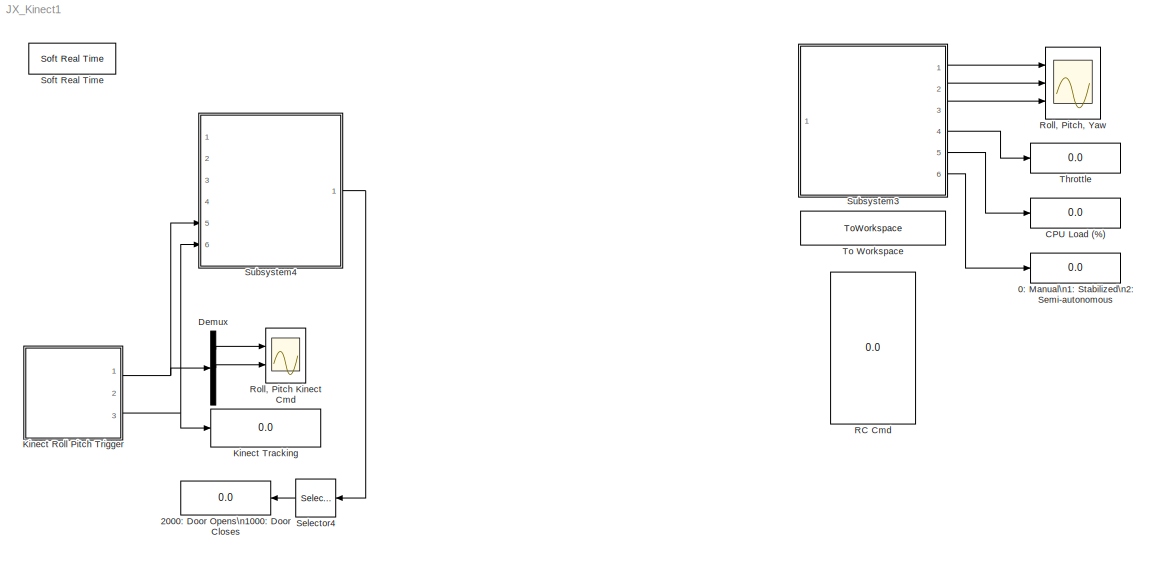
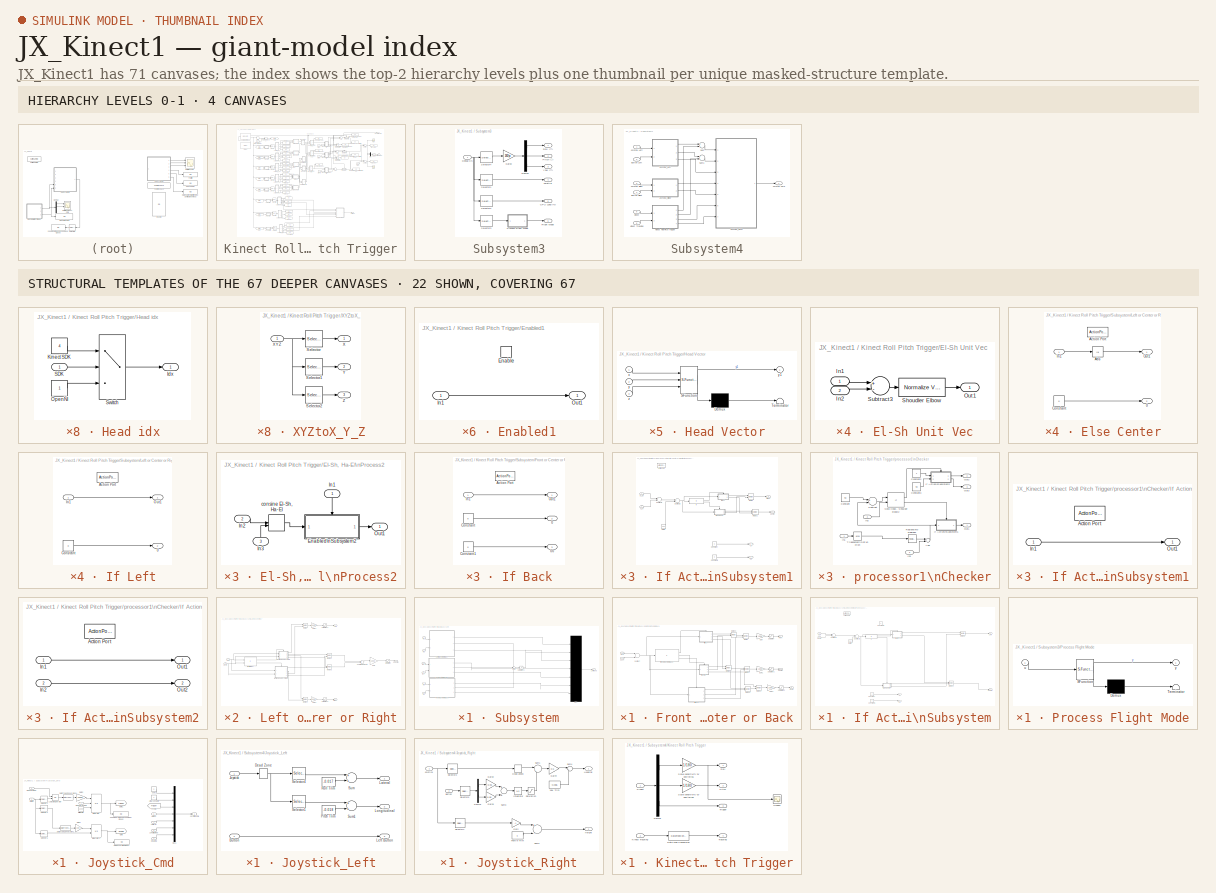
[diagram: thumbnail index - top-2 hierarchy levels (4 canvases) + 22 structural-template representatives of the remaining 67 canvases]
MODEL JX_Kinect1
KIND model
CONFIG InitFcn = sample_time=0.01;
BLOCK [Display] 0: Manual\n1: Stabilized\n2: Semi-autonomous
  Decimation = 1
  Lockdown = off
  Ports = [1]
  SID = 1718
BLOCK [Display] 2000: Door Opens\n1000: Door Closes
  Decimation = 1
  Lockdown = off
  Ports = [1]
  SID = 3187
BLOCK [Display] CPU Load (%)
  Decimation = 1
  Lockdown = off
  Ports = [1]
  SID = 1713
BLOCK [Demux] Demux
  DisplayOption = bar
  Outputs = 3
  Ports = [1, 3]
  SID = 3194
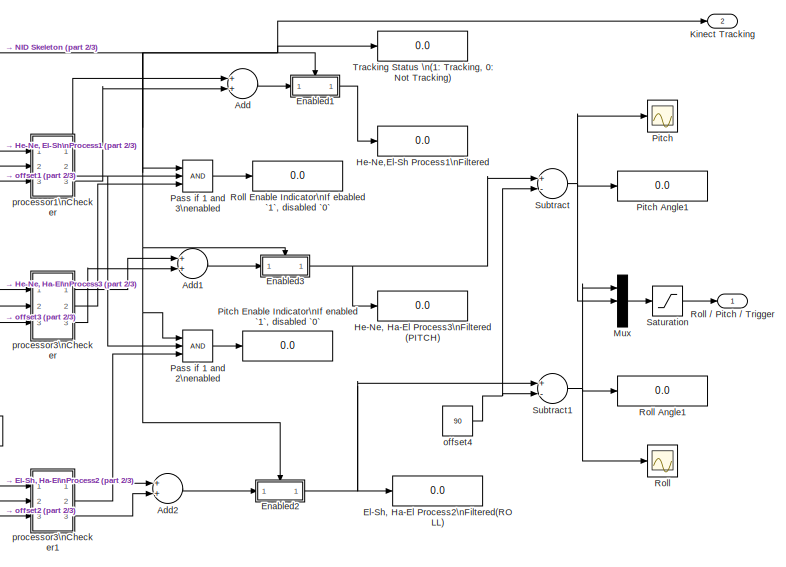
[diagram: Kinect Roll Pitch Trigger - part 1/3, top right region]
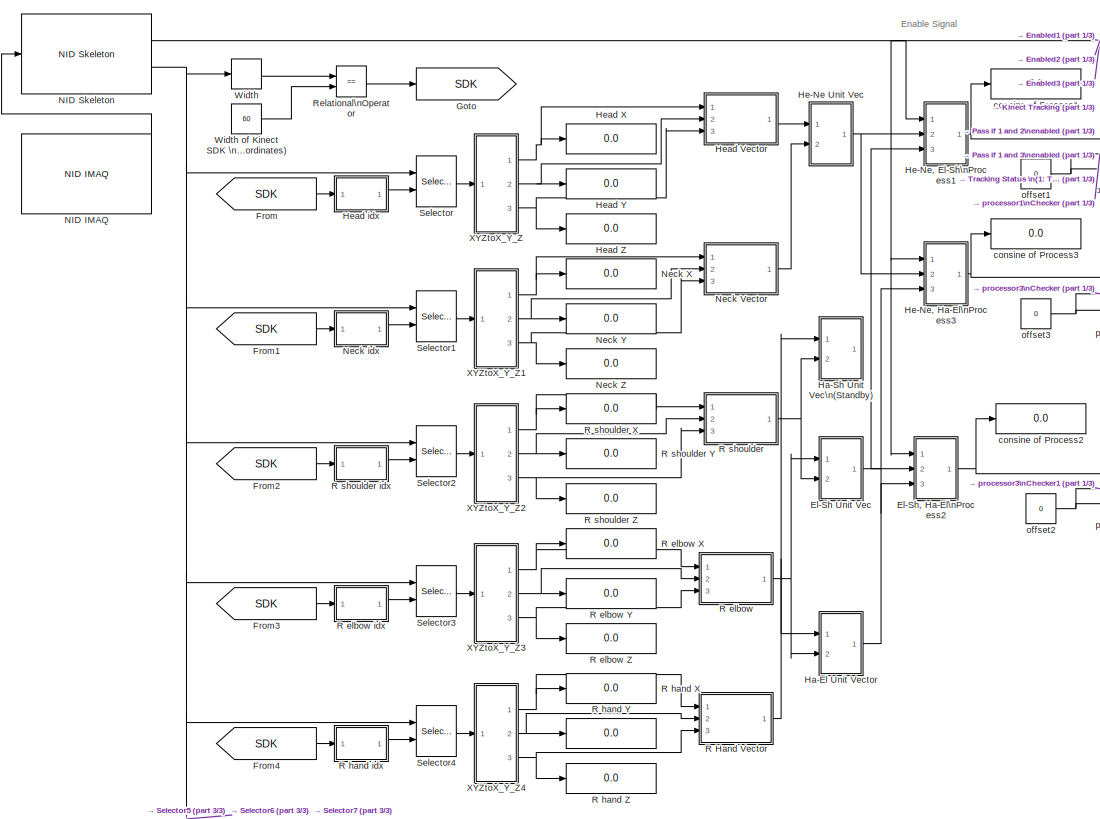
[diagram: Kinect Roll Pitch Trigger - part 2/3, top left region]
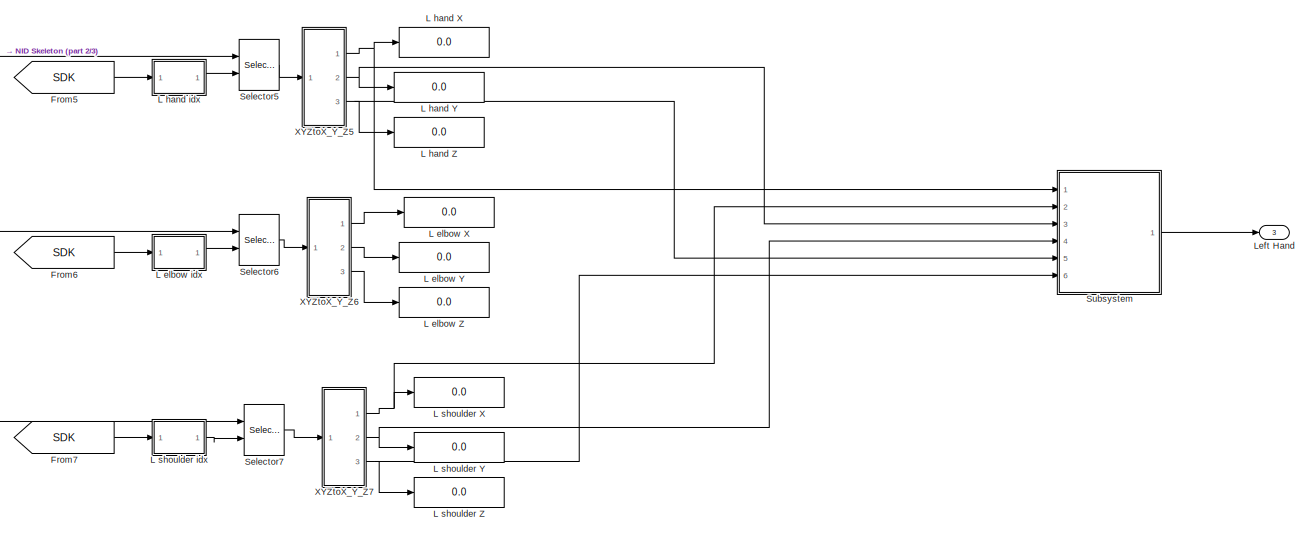
[diagram: Kinect Roll Pitch Trigger - part 3/3, bottom center region]
BLOCK [SubSystem] Kinect Roll Pitch Trigger
  FunctionWithSeparateData = off
  MaskDisplay = image(imread('kinect.jpg'));port_label('output', 1, 'Roll/Pitch/Trigger'); port_label('output', 2, 'Tracking');
  MaskHideContents = off
  MaskIconFrame = on
  MaskIconOpaque = on
  MaskIconRotate = none
  MaskIconUnits = autoscale
  MaskPortRotate = default
  MinAlgLoopOccurrences = off
  Opaque = off
  Ports = [0, 3]
  PropExecContextOutsideSubsystem = off
  RTWSystemCode = Auto
  RequestExecContextInheritance = off
  SID = 2698
BLOCK [Sum] Kinect Roll Pitch Trigger/Add
  InputSameDT = off
  OutDataTypeStr = Inherit: Inherit via internal rule
  Ports = [2, 1]
  SID = 2713
  SaturateOnIntegerOverflow = off
BLOCK [Sum] Kinect Roll Pitch Trigger/Add1
  InputSameDT = off
  OutDataTypeStr = Inherit: Inherit via internal rule
  Ports = [2, 1]
  SID = 2714
  SaturateOnIntegerOverflow = off
BLOCK [Sum] Kinect Roll Pitch Trigger/Add2
  InputSameDT = off
  OutDataTypeStr = Inherit: Inherit via internal rule
  Ports = [2, 1]
  SID = 2715
  SaturateOnIntegerOverflow = off
BLOCK [SubSystem] Kinect Roll Pitch Trigger/El-Sh Unit Vec
  FunctionWithSeparateData = off
  MaskHideContents = off
  MinAlgLoopOccurrences = off
  Opaque = off
  Ports = [2, 1]
  PropExecContextOutsideSubsystem = off
  RTWSystemCode = Auto
  RequestExecContextInheritance = off
  SID = 2716
BLOCK [Inport] Kinect Roll Pitch Trigger/El-Sh Unit Vec/In1
  IconDisplay = Port number
  SID = 2717
BLOCK [Inport] Kinect Roll Pitch Trigger/El-Sh Unit Vec/In2
  IconDisplay = Port number
  Port = 2
  SID = 2718
BLOCK [Outport] Kinect Roll Pitch Trigger/El-Sh Unit Vec/Out1
  IconDisplay = Port number
  SID = 2721
BLOCK [Reference] Kinect Roll Pitch Trigger/El-Sh Unit Vec/Shoudler Elbow  REF=vrlib/Utilities/Normalize Vector
  FunctionWithSeparateData = off
  GeneratePreprocessorConditionals = off
  Ports = [1, 1]
  RTWMemSecDataConstants = Inherit from model
  RTWMemSecDataInternal = Inherit from model
  RTWMemSecDataParameters = Inherit from model
  RTWMemSecFuncExecute = Inherit from model
  RTWMemSecFuncInitTerm = Inherit from model
  SID = 2719
  ShowPortLabels = FromPortIcon
  SourceBlock = vrlib/Utilities/Normalize Vector
  SourceType = Normalize Vector
  SystemSampleTime = -1
  maxzero = 0
BLOCK [Sum] Kinect Roll Pitch Trigger/El-Sh Unit Vec/Subtract3
  InputSameDT = off
  Inputs = +-
  OutDataTypeStr = Inherit: Inherit via internal rule
  Ports = [2, 1]
  SID = 2720
  SaturateOnIntegerOverflow = off
BLOCK [Display] Kinect Roll Pitch Trigger/El-Sh, Ha-El Process2\nFiltered(ROLL)
  Decimation = 1
  Lockdown = off
  Ports = [1]
  SID = 2732
BLOCK [SubSystem] Kinect Roll Pitch Trigger/El-Sh, Ha-El\nProcess2
  FunctionWithSeparateData = off
  MaskHideContents = off
  MinAlgLoopOccurrences = off
  Opaque = off
  Ports = [3, 1]
  PropExecContextOutsideSubsystem = off
  RTWSystemCode = Auto
  RequestExecContextInheritance = off
  SID = 2722
BLOCK [SubSystem] Kinect Roll Pitch Trigger/El-Sh, Ha-El\nProcess2/Enabled\nSubsystem2
  FunctionWithSeparateData = off
  MaskHideContents = off
  MinAlgLoopOccurrences = off
  Opaque = off
  Ports = [1, 1, 1]
  PropExecContextOutsideSubsystem = off
  RTWSystemCode = Auto
  RequestExecContextInheritance = off
  SID = 2726
  TreatAsAtomicUnit = on
BLOCK [EnablePort] Kinect Roll Pitch Trigger/El-Sh, Ha-El\nProcess2/Enabled\nSubsystem2/Enable
  Ports = []
  SID = 2728
BLOCK [Inport] Kinect Roll Pitch Trigger/El-Sh, Ha-El\nProcess2/Enabled\nSubsystem2/In1
  IconDisplay = Port number
  SID = 2727
BLOCK [Outport] Kinect Roll Pitch Trigger/El-Sh, Ha-El\nProcess2/Enabled\nSubsystem2/Out1
  IconDisplay = Port number
  SID = 2729
BLOCK [Inport] Kinect Roll Pitch Trigger/El-Sh, Ha-El\nProcess2/In1
  IconDisplay = Port number
  SID = 2723
BLOCK [Inport] Kinect Roll Pitch Trigger/El-Sh, Ha-El\nProcess2/In2
  IconDisplay = Port number
  Port = 2
  SID = 2724
BLOCK [Inport] Kinect Roll Pitch Trigger/El-Sh, Ha-El\nProcess2/In3
  IconDisplay = Port number
  Port = 3
  SID = 2725
BLOCK [Outport] Kinect Roll Pitch Trigger/El-Sh, Ha-El\nProcess2/Out1
  IconDisplay = Port number
  SID = 2731
BLOCK [DotProduct] Kinect Roll Pitch Trigger/El-Sh, Ha-El\nProcess2/consine El-Sh, Ha-El
  OutDataTypeStr = Inherit: Inherit via internal rule
  SID = 2730
BLOCK [SubSystem] Kinect Roll Pitch Trigger/Enabled1
  FunctionWithSeparateData = off
  MaskHideContents = off
  MinAlgLoopOccurrences = off
  Opaque = off
  Ports = [1, 1, 1]
  PropExecContextOutsideSubsystem = off
  RTWSystemCode = Auto
  RequestExecContextInheritance = off
  SID = 2733
  TreatAsAtomicUnit = on
BLOCK [EnablePort] Kinect Roll Pitch Trigger/Enabled1/Enable
  Ports = []
  SID = 2735
BLOCK [Inport] Kinect Roll Pitch Trigger/Enabled1/In1
  IconDisplay = Port number
  SID = 2734
BLOCK [Outport] Kinect Roll Pitch Trigger/Enabled1/Out1
  IconDisplay = Port number
  SID = 2736
BLOCK [SubSystem] Kinect Roll Pitch Trigger/Enabled2
  FunctionWithSeparateData = off
  MaskHideContents = off
  MinAlgLoopOccurrences = off
  Opaque = off
  Ports = [1, 1, 1]
  PropExecContextOutsideSubsystem = off
  RTWSystemCode = Auto
  RequestExecContextInheritance = off
  SID = 2737
  TreatAsAtomicUnit = on
BLOCK [EnablePort] Kinect Roll Pitch Trigger/Enabled2/Enable
  Ports = []
  SID = 2739
BLOCK [Inport] Kinect Roll Pitch Trigger/Enabled2/In1
  IconDisplay = Port number
  SID = 2738
BLOCK [Outport] Kinect Roll Pitch Trigger/Enabled2/Out1
  IconDisplay = Port number
  SID = 2740
BLOCK [SubSystem] Kinect Roll Pitch Trigger/Enabled3
  FunctionWithSeparateData = off
  MaskHideContents = off
  MinAlgLoopOccurrences = off
  Opaque = off
  Ports = [1, 1, 1]
  PropExecContextOutsideSubsystem = off
  RTWSystemCode = Auto
  RequestExecContextInheritance = off
  SID = 2741
  TreatAsAtomicUnit = on
BLOCK [EnablePort] Kinect Roll Pitch Trigger/Enabled3/Enable
  Ports = []
  SID = 2743
BLOCK [Inport] Kinect Roll Pitch Trigger/Enabled3/In1
  IconDisplay = Port number
  SID = 2742
BLOCK [Outport] Kinect Roll Pitch Trigger/Enabled3/Out1
  IconDisplay = Port number
  SID = 2744
BLOCK [From] Kinect Roll Pitch Trigger/From
  GotoTag = SDK
  SID = 2745
BLOCK [From] Kinect Roll Pitch Trigger/From1
  GotoTag = SDK
  SID = 2746
BLOCK [From] Kinect Roll Pitch Trigger/From2
  GotoTag = SDK
  SID = 2747
BLOCK [From] Kinect Roll Pitch Trigger/From3
  GotoTag = SDK
  SID = 2748
BLOCK [From] Kinect Roll Pitch Trigger/From4
  GotoTag = SDK
  SID = 2749
BLOCK [From] Kinect Roll Pitch Trigger/From5
  GotoTag = SDK
  SID = 3044
BLOCK [From] Kinect Roll Pitch Trigger/From6
  GotoTag = SDK
  SID = 3045
BLOCK [From] Kinect Roll Pitch Trigger/From7
  GotoTag = SDK
  SID = 3046
BLOCK [Goto] Kinect Roll Pitch Trigger/Goto
  GotoTag = SDK
  SID = 2753
  TagVisibility = local
BLOCK [SubSystem] Kinect Roll Pitch Trigger/Ha-El Unit Vector
  FunctionWithSeparateData = off
  MaskHideContents = off
  MinAlgLoopOccurrences = off
  Opaque = off
  Ports = [2, 1]
  PropExecContextOutsideSubsystem = off
  RTWSystemCode = Auto
  RequestExecContextInheritance = off
  SID = 2754
BLOCK [Reference] Kinect Roll Pitch Trigger/Ha-El Unit Vector/Elbow Hand  REF=vrlib/Utilities/Normalize Vector
  FunctionWithSeparateData = off
  GeneratePreprocessorConditionals = off
  Ports = [1, 1]
  RTWMemSecDataConstants = Inherit from model
  RTWMemSecDataInternal = Inherit from model
  RTWMemSecDataParameters = Inherit from model
  RTWMemSecFuncExecute = Inherit from model
  RTWMemSecFuncInitTerm = Inherit from model
  SID = 2757
  ShowPortLabels = FromPortIcon
  SourceBlock = vrlib/Utilities/Normalize Vector
  SourceType = Normalize Vector
  SystemSampleTime = -1
  maxzero = 0
BLOCK [Inport] Kinect Roll Pitch Trigger/Ha-El Unit Vector/In1
  IconDisplay = Port number
  SID = 2755
BLOCK [Inport] Kinect Roll Pitch Trigger/Ha-El Unit Vector/In2
  IconDisplay = Port number
  Port = 2
  SID = 2756
BLOCK [Outport] Kinect Roll Pitch Trigger/Ha-El Unit Vector/Out1
  IconDisplay = Port number
  SID = 2759
BLOCK [Sum] Kinect Roll Pitch Trigger/Ha-El Unit Vector/Subtract2
  InputSameDT = off
  Inputs = +-
  OutDataTypeStr = Inherit: Inherit via internal rule
  Ports = [2, 1]
  SID = 2758
  SaturateOnIntegerOverflow = off
BLOCK [SubSystem] Kinect Roll Pitch Trigger/Ha-Sh Unit Vec\n(Standby)
  FunctionWithSeparateData = off
  MaskHideContents = off
  MinAlgLoopOccurrences = off
  Opaque = off
  Ports = [2, 1]
  PropExecContextOutsideSubsystem = off
  RTWSystemCode = Auto
  RequestExecContextInheritance = off
  SID = 2760
BLOCK [Inport] Kinect Roll Pitch Trigger/Ha-Sh Unit Vec\n(Standby)/In1
  IconDisplay = Port number
  SID = 2761
BLOCK [Inport] Kinect Roll Pitch Trigger/Ha-Sh Unit Vec\n(Standby)/In2
  IconDisplay = Port number
  Port = 2
  SID = 2762
BLOCK [Outport] Kinect Roll Pitch Trigger/Ha-Sh Unit Vec\n(Standby)/Out1
  IconDisplay = Port number
  SID = 2765
BLOCK [Sum] Kinect Roll Pitch Trigger/Ha-Sh Unit Vec\n(Standby)/Subtract1
  InputSameDT = off
  Inputs = +-
  OutDataTypeStr = Inherit: Inherit via internal rule
  Ports = [2, 1]
  SID = 2763
  SaturateOnIntegerOverflow = off
BLOCK [Reference] Kinect Roll Pitch Trigger/Ha-Sh Unit Vec\n(Standby)/Unit Vector1  REF=vrlib/Utilities/Normalize Vector
  FunctionWithSeparateData = off
  GeneratePreprocessorConditionals = off
  Ports = [1, 1]
  RTWMemSecDataConstants = Inherit from model
  RTWMemSecDataInternal = Inherit from model
  RTWMemSecDataParameters = Inherit from model
  RTWMemSecFuncExecute = Inherit from model
  RTWMemSecFuncInitTerm = Inherit from model
  SID = 2764
  ShowPortLabels = FromPortIcon
  SourceBlock = vrlib/Utilities/Normalize Vector
  SourceType = Normalize Vector
  SystemSampleTime = -1
  maxzero = 0
BLOCK [SubSystem] Kinect Roll Pitch Trigger/He-Ne Unit Vec
  FunctionWithSeparateData = off
  MaskHideContents = off
  MinAlgLoopOccurrences = off
  Opaque = off
  Ports = [2, 1]
  PropExecContextOutsideSubsystem = off
  RTWSystemCode = Auto
  RequestExecContextInheritance = off
  SID = 2766
BLOCK [Inport] Kinect Roll Pitch Trigger/He-Ne Unit Vec/In1
  IconDisplay = Port number
  SID = 2767
BLOCK [Inport] Kinect Roll Pitch Trigger/He-Ne Unit Vec/In2
  IconDisplay = Port number
  Port = 2
  SID = 2768
BLOCK [Outport] Kinect Roll Pitch Trigger/He-Ne Unit Vec/Out1
  IconDisplay = Port number
  SID = 2771
BLOCK [Sum] Kinect Roll Pitch Trigger/He-Ne Unit Vec/Subtract
  InputSameDT = off
  Inputs = +-
  OutDataTypeStr = Inherit: Inherit via internal rule
  Ports = [2, 1]
  SID = 2769
  SaturateOnIntegerOverflow = off
BLOCK [Reference] Kinect Roll Pitch Trigger/He-Ne Unit Vec/Unit Vector  REF=vrlib/Utilities/Normalize Vector
  FunctionWithSeparateData = off
  GeneratePreprocessorConditionals = off
  Ports = [1, 1]
  RTWMemSecDataConstants = Inherit from model
  RTWMemSecDataInternal = Inherit from model
  RTWMemSecDataParameters = Inherit from model
  RTWMemSecFuncExecute = Inherit from model
  RTWMemSecFuncInitTerm = Inherit from model
  SID = 2770
  ShowPortLabels = FromPortIcon
  SourceBlock = vrlib/Utilities/Normalize Vector
  SourceType = Normalize Vector
  SystemSampleTime = -1
  maxzero = 0
BLOCK [SubSystem] Kinect Roll Pitch Trigger/He-Ne, El-Sh\nProcess1
  FunctionWithSeparateData = off
  MaskHideContents = off
  MinAlgLoopOccurrences = off
  Opaque = off
  Ports = [3, 1]
  PropExecContextOutsideSubsystem = off
  RTWSystemCode = Auto
  RequestExecContextInheritance = off
  SID = 2772
BLOCK [SubSystem] Kinect Roll Pitch Trigger/He-Ne, El-Sh\nProcess1/Enabled\nSubsystem1
  FunctionWithSeparateData = off
  MaskHideContents = off
  MinAlgLoopOccurrences = off
  Opaque = off
  Ports = [1, 1, 1]
  PropExecContextOutsideSubsystem = off
  RTWSystemCode = Auto
  RequestExecContextInheritance = off
  SID = 2776
  TreatAsAtomicUnit = on
BLOCK [EnablePort] Kinect Roll Pitch Trigger/He-Ne, El-Sh\nProcess1/Enabled\nSubsystem1/Enable
  Ports = []
  SID = 2778
BLOCK [Inport] Kinect Roll Pitch Trigger/He-Ne, El-Sh\nProcess1/Enabled\nSubsystem1/In1
  IconDisplay = Port number
  SID = 2777
BLOCK [Outport] Kinect Roll Pitch Trigger/He-Ne, El-Sh\nProcess1/Enabled\nSubsystem1/Out1
  IconDisplay = Port number
  SID = 2779
BLOCK [Inport] Kinect Roll Pitch Trigger/He-Ne, El-Sh\nProcess1/In1
  IconDisplay = Port number
  SID = 2773
BLOCK [Inport] Kinect Roll Pitch Trigger/He-Ne, El-Sh\nProcess1/In2
  IconDisplay = Port number
  Port = 2
  SID = 2774
BLOCK [Inport] Kinect Roll Pitch Trigger/He-Ne, El-Sh\nProcess1/In3
  IconDisplay = Port number
  Port = 3
  SID = 2775
BLOCK [Outport] Kinect Roll Pitch Trigger/He-Ne, El-Sh\nProcess1/Out1
  IconDisplay = Port number
  SID = 2781
BLOCK [DotProduct] Kinect Roll Pitch Trigger/He-Ne, El-Sh\nProcess1/consine He-Ne\nEl-Sh
  OutDataTypeStr = Inherit: Inherit via internal rule
  SID = 2780
BLOCK [Display] Kinect Roll Pitch Trigger/He-Ne, Ha-El Process3\nFiltered (PITCH)
  Decimation = 1
  Lockdown = off
  Ports = [1]
  SID = 2792
BLOCK [SubSystem] Kinect Roll Pitch Trigger/He-Ne, Ha-El\nProcess3
  FunctionWithSeparateData = off
  MaskHideContents = off
  MinAlgLoopOccurrences = off
  Opaque = off
  Ports = [3, 1]
  PropExecContextOutsideSubsystem = off
  RTWSystemCode = Auto
  RequestExecContextInheritance = off
  SID = 2782
BLOCK [SubSystem] Kinect Roll Pitch Trigger/He-Ne, Ha-El\nProcess3/Enabled\nSubsystem3
  FunctionWithSeparateData = off
  MaskHideContents = off
  MinAlgLoopOccurrences = off
  Opaque = off
  Ports = [1, 1, 1]
  PropExecContextOutsideSubsystem = off
  RTWSystemCode = Auto
  RequestExecContextInheritance = off
  SID = 2786
  TreatAsAtomicUnit = on
BLOCK [EnablePort] Kinect Roll Pitch Trigger/He-Ne, Ha-El\nProcess3/Enabled\nSubsystem3/Enable
  Ports = []
  SID = 2788
BLOCK [Inport] Kinect Roll Pitch Trigger/He-Ne, Ha-El\nProcess3/Enabled\nSubsystem3/In1
  IconDisplay = Port number
  SID = 2787
BLOCK [Outport] Kinect Roll Pitch Trigger/He-Ne, Ha-El\nProcess3/Enabled\nSubsystem3/Out1
  IconDisplay = Port number
  SID = 2789
BLOCK [Inport] Kinect Roll Pitch Trigger/He-Ne, Ha-El\nProcess3/In1
  IconDisplay = Port number
  SID = 2783
BLOCK [Inport] Kinect Roll Pitch Trigger/He-Ne, Ha-El\nProcess3/In2
  IconDisplay = Port number
  Port = 2
  SID = 2784
BLOCK [Inport] Kinect Roll Pitch Trigger/He-Ne, Ha-El\nProcess3/In3
  IconDisplay = Port number
  Port = 3
  SID = 2785
BLOCK [Outport] Kinect Roll Pitch Trigger/He-Ne, Ha-El\nProcess3/Out1
  IconDisplay = Port number
  SID = 2791
BLOCK [DotProduct] Kinect Roll Pitch Trigger/He-Ne, Ha-El\nProcess3/consine He-Ne, Ha-El
  OutDataTypeStr = Inherit: Inherit via internal rule
  SID = 2790
BLOCK [Display] Kinect Roll Pitch Trigger/He-Ne,El-Sh Process1\nFiltered 
  Decimation = 1
  Lockdown = off
  Ports = [1]
  SID = 2793
BLOCK [SubSystem] Kinect Roll Pitch Trigger/Head Vector
  ErrorFcn = Stateflow.Translate.translate
  FunctionWithSeparateData = off
  MaskDescription = Embedded MATLAB block
  MaskDisplay = bgColor = Simulink.Root.ColorString2Rgb(get_param(gcbh, 'BackgroundColor')); image(imread('private/eml_membrane_16.png','png','BackgroundColor',bgColor(1:3)),'center'); disp([10 10 'fcn']);  <repeated x6 — deduplicated; at blocks: Head Vector, Neck Vector, R Hand Vector, R elbow, R shoulder, Process Flight Mode>
  MaskHideContents = off
  MaskIconFrame = on
  MaskIconOpaque = off
  MaskIconRotate = none
  MaskIconUnits = normalized
  MaskPortRotate = default
  MaskSelfModifiable = on
  MaskType = Stateflow
  MinAlgLoopOccurrences = off
  Opaque = off
  PermitHierarchicalResolution = ExplicitOnly
  Ports = [3, 1]
  PropExecContextOutsideSubsystem = off
  RTWSystemCode = Auto
  RequestExecContextInheritance = off
  SID = 2794
  TreatAsAtomicUnit = on
BLOCK [Demux] Kinect Roll Pitch Trigger/Head Vector/ Demux 
  Outputs = 1
  Ports = [1, 1]
  SID = 2794::22
BLOCK [S-Function] Kinect Roll Pitch Trigger/Head Vector/ SFunction 
  EnableBusSupport = on
  FunctionName = sf_sfun
  PortCounts = [3 2]
  Ports = [3, 2]
  SID = 2794::21
  Tag = Stateflow S-Function JX_Kinect1 1
BLOCK [Terminator] Kinect Roll Pitch Trigger/Head Vector/ Terminator 
  SID = 2794::24
BLOCK [Inport] Kinect Roll Pitch Trigger/Head Vector/x
  IconDisplay = Port number
  SID = 2794::1
BLOCK [Inport] Kinect Roll Pitch Trigger/Head Vector/y
  IconDisplay = Port number
  Port = 2
  SID = 2794::18
BLOCK [Outport] Kinect Roll Pitch Trigger/Head Vector/y1
  IconDisplay = Port number
  SID = 2794::20
BLOCK [Inport] Kinect Roll Pitch Trigger/Head Vector/z
  IconDisplay = Port number
  Port = 3
  SID = 2794::19
BLOCK [Display] Kinect Roll Pitch Trigger/Head X
  Decimation = 1
  Lockdown = off
  Ports = [1]
  SID = 2795
BLOCK [Display] Kinect Roll Pitch Trigger/Head Y
  Decimation = 1
  Lockdown = off
  Ports = [1]
  SID = 2796
BLOCK [Display] Kinect Roll Pitch Trigger/Head Z
  Decimation = 1
  Lockdown = off
  Ports = [1]
  SID = 2797
BLOCK [SubSystem] Kinect Roll Pitch Trigger/Head idx
  FunctionWithSeparateData = off
  MaskHideContents = off
  MinAlgLoopOccurrences = off
  Opaque = off
  Ports = [1, 1]
  PropExecContextOutsideSubsystem = off
  RTWSystemCode = Auto
  RequestExecContextInheritance = off
  SID = 2798
BLOCK [Outport] Kinect Roll Pitch Trigger/Head idx/Idx
  IconDisplay = Port number
  SID = 2803
BLOCK [Constant] Kinect Roll Pitch Trigger/Head idx/Kinect SDK
  SID = 2800
  Value = 4
BLOCK [Constant] Kinect Roll Pitch Trigger/Head idx/OpenNI
  SID = 2801
BLOCK [Inport] Kinect Roll Pitch Trigger/Head idx/SDK
  IconDisplay = Port number
  SID = 2799
BLOCK [Switch] Kinect Roll Pitch Trigger/Head idx/Switch
  Criteria = u2 ~= 0
  InputSameDT = off
  SID = 2802
  SaturateOnIntegerOverflow = off
BLOCK [Outport] Kinect Roll Pitch Trigger/Kinect Tracking
  IconDisplay = Port number
  Port = 2
  SID = 3043
BLOCK [Display] Kinect Roll Pitch Trigger/L elbow X
  Decimation = 1
  Lockdown = off
  Ports = [1]
  SID = 3059
BLOCK [Display] Kinect Roll Pitch Trigger/L elbow Y
  Decimation = 1
  Lockdown = off
  Ports = [1]
  SID = 3060
BLOCK [Display] Kinect Roll Pitch Trigger/L elbow Z
  Decimation = 1
  Lockdown = off
  Ports = [1]
  SID = 3061
BLOCK [SubSystem] Kinect Roll Pitch Trigger/L elbow idx
  FunctionWithSeparateData = off
  MaskHideContents = off
  MinAlgLoopOccurrences = off
  Opaque = off
  Ports = [1, 1]
  PropExecContextOutsideSubsystem = off
  RTWSystemCode = Auto
  RequestExecContextInheritance = off
  SID = 3062
BLOCK [Outport] Kinect Roll Pitch Trigger/L elbow idx/Idx
  IconDisplay = Port number
  SID = 3067
BLOCK [Constant] Kinect Roll Pitch Trigger/L elbow idx/Kinect SDK
  SID = 3064
  Value = 6
BLOCK [Constant] Kinect Roll Pitch Trigger/L elbow idx/OpenNI
  SID = 3065
  Value = 8
BLOCK [Inport] Kinect Roll Pitch Trigger/L elbow idx/SDK
  IconDisplay = Port number
  SID = 3063
BLOCK [Switch] Kinect Roll Pitch Trigger/L elbow idx/Switch
  Criteria = u2 ~= 0
  InputSameDT = off
  SID = 3066
  SaturateOnIntegerOverflow = off
BLOCK [Display] Kinect Roll Pitch Trigger/L hand X
  Decimation = 1
  Lockdown = off
  Ports = [1]
  SID = 3068
BLOCK [Display] Kinect Roll Pitch Trigger/L hand Y
  Decimation = 1
  Lockdown = off
  Ports = [1]
  SID = 3069
BLOCK [Display] Kinect Roll Pitch Trigger/L hand Z
  Decimation = 1
  Lockdown = off
  Ports = [1]
  SID = 3070
BLOCK [SubSystem] Kinect Roll Pitch Trigger/L hand idx
  FunctionWithSeparateData = off
  MaskHideContents = off
  MinAlgLoopOccurrences = off
  Opaque = off
  Ports = [1, 1]
  PropExecContextOutsideSubsystem = off
  RTWSystemCode = Auto
  RequestExecContextInheritance = off
  SID = 3071
BLOCK [Outport] Kinect Roll Pitch Trigger/L hand idx/Idx
  IconDisplay = Port number
  SID = 3076
BLOCK [Constant] Kinect Roll Pitch Trigger/L hand idx/Kinect SDK
  SID = 3073
  Value = 8
BLOCK [Constant] Kinect Roll Pitch Trigger/L hand idx/OpenNI
  SID = 3074
  Value = 9
BLOCK [Inport] Kinect Roll Pitch Trigger/L hand idx/SDK
  IconDisplay = Port number
  SID = 3072
BLOCK [Switch] Kinect Roll Pitch Trigger/L hand idx/Switch
  Criteria = u2 ~= 0
  InputSameDT = off
  SID = 3075
  SaturateOnIntegerOverflow = off
BLOCK [Display] Kinect Roll Pitch Trigger/L shoulder X
  Decimation = 1
  Lockdown = off
  Ports = [1]
  SID = 3078
BLOCK [Display] Kinect Roll Pitch Trigger/L shoulder Y
  Decimation = 1
  Lockdown = off
  Ports = [1]
  SID = 3079
BLOCK [Display] Kinect Roll Pitch Trigger/L shoulder Z
  Decimation = 1
  Lockdown = off
  Ports = [1]
  SID = 3080
BLOCK [SubSystem] Kinect Roll Pitch Trigger/L shoulder idx
  FunctionWithSeparateData = off
  MaskHideContents = off
  MinAlgLoopOccurrences = off
  Opaque = off
  Ports = [1, 1]
  PropExecContextOutsideSubsystem = off
  RTWSystemCode = Auto
  RequestExecContextInheritance = off
  SID = 3081
BLOCK [Outport] Kinect Roll Pitch Trigger/L shoulder idx/Idx
  IconDisplay = Port number
  SID = 3086
BLOCK [Constant] Kinect Roll Pitch Trigger/L shoulder idx/Kinect SDK
  SID = 3083
  Value = 5
BLOCK [Constant] Kinect Roll Pitch Trigger/L shoulder idx/OpenNI
  SID = 3084
  Value = 7
BLOCK [Inport] Kinect Roll Pitch Trigger/L shoulder idx/SDK
  IconDisplay = Port number
  SID = 3082
BLOCK [Switch] Kinect Roll Pitch Trigger/L shoulder idx/Switch
  Criteria = u2 ~= 0
  InputSameDT = off
  SID = 3085
  SaturateOnIntegerOverflow = off
BLOCK [Outport] Kinect Roll Pitch Trigger/Left Hand
  IconDisplay = Port number
  Port = 3
  SID = 3655
BLOCK [Mux] Kinect Roll Pitch Trigger/Mux
  DisplayOption = bar
  Inputs = 3
  Ports = [3, 1]
  SID = 2804
BLOCK [Reference] Kinect Roll Pitch Trigger/NID IMAQ  REF=nid_lib/NID IMAQ
  Ports = [0, 1]
  SID = 2805
  SourceBlock = nid_lib/NID IMAQ
  SourceType = NID IMAQ
  angle = 0
  angle_input = off
  angle_read = off
  imaq_depth = off
  imaq_image = off
  imaq_ir = off
  imaq_motion = off
  imaq_sample_time = 1/30
  imaq_skeleton = on
  infer_skeleton = on
  mirror_image = off
  near_mode = off
  needPsiPose = off
  res_fps = VGA (640x480): 30 FPS
  seated_mode = on
  skeleton_smooth = [1.0 0.5 0.5 0.05 0.04]
  view_point = off
BLOCK [Reference] Kinect Roll Pitch Trigger/NID Skeleton  REF=nid_lib/NID Skeleton
  Ports = [1, 2]
  SID = 2806
  SourceBlock = nid_lib/NID Skeleton
  SourceType = NID Skeleton
  conv_XYZ_RW = on
  num_of_skeleton_tracking = 1
  viewer = off
BLOCK [SubSystem] Kinect Roll Pitch Trigger/Neck Vector
  ErrorFcn = Stateflow.Translate.translate
  FunctionWithSeparateData = off
  MaskDescription = Embedded MATLAB block
  MaskHideContents = off
  MaskIconFrame = on
  MaskIconOpaque = off
  MaskIconRotate = none
  MaskIconUnits = normalized
  MaskPortRotate = default
  MaskSelfModifiable = on
  MaskType = Stateflow
  MinAlgLoopOccurrences = off
  Opaque = off
  PermitHierarchicalResolution = ExplicitOnly
  Ports = [3, 1]
  PropExecContextOutsideSubsystem = off
  RTWSystemCode = Auto
  RequestExecContextInheritance = off
  SID = 2807
  TreatAsAtomicUnit = on
BLOCK [Demux] Kinect Roll Pitch Trigger/Neck Vector/ Demux 
  Outputs = 1
  Ports = [1, 1]
  SID = 2807::22
BLOCK [S-Function] Kinect Roll Pitch Trigger/Neck Vector/ SFunction 
  EnableBusSupport = on
  FunctionName = sf_sfun
  PortCounts = [3 2]
  Ports = [3, 2]
  SID = 2807::21
  Tag = Stateflow S-Function JX_Kinect1 3
BLOCK [Terminator] Kinect Roll Pitch Trigger/Neck Vector/ Terminator 
  SID = 2807::24
BLOCK [Inport] Kinect Roll Pitch Trigger/Neck Vector/x
  IconDisplay = Port number
  SID = 2807::1
BLOCK [Inport] Kinect Roll Pitch Trigger/Neck Vector/y
  IconDisplay = Port number
  Port = 2
  SID = 2807::18
BLOCK [Outport] Kinect Roll Pitch Trigger/Neck Vector/y1
  IconDisplay = Port number
  SID = 2807::20
BLOCK [Inport] Kinect Roll Pitch Trigger/Neck Vector/z
  IconDisplay = Port number
  Port = 3
  SID = 2807::19
BLOCK [Display] Kinect Roll Pitch Trigger/Neck X
  Decimation = 1
  Lockdown = off
  Ports = [1]
  SID = 2808
BLOCK [Display] Kinect Roll Pitch Trigger/Neck Y
  Decimation = 1
  Lockdown = off
  Ports = [1]
  SID = 2809
BLOCK [Display] Kinect Roll Pitch Trigger/Neck Z
  Decimation = 1
  Lockdown = off
  Ports = [1]
  SID = 2810
BLOCK [SubSystem] Kinect Roll Pitch Trigger/Neck idx
  FunctionWithSeparateData = off
  MaskHideContents = off
  MinAlgLoopOccurrences = off
  Opaque = off
  Ports = [1, 1]
  PropExecContextOutsideSubsystem = off
  RTWSystemCode = Auto
  RequestExecContextInheritance = off
  SID = 2811
BLOCK [Outport] Kinect Roll Pitch Trigger/Neck idx/Idx
  IconDisplay = Port number
  SID = 2816
BLOCK [Constant] Kinect Roll Pitch Trigger/Neck idx/Kinect SDK
  SID = 2813
  Value = 3
BLOCK [Constant] Kinect Roll Pitch Trigger/Neck idx/OpenNI
  SID = 2814
  Value = 2
BLOCK [Inport] Kinect Roll Pitch Trigger/Neck idx/SDK
  IconDisplay = Port number
  SID = 2812
BLOCK [Switch] Kinect Roll Pitch Trigger/Neck idx/Switch
  Criteria = u2 ~= 0
  InputSameDT = off
  SID = 2815
  SaturateOnIntegerOverflow = off
BLOCK [Logic] Kinect Roll Pitch Trigger/Pass if 1 and 2\nenabled
  AllPortsSameDT = off
  Inputs = 3
  OutDataTypeStr = boolean
  Ports = [3, 1]
  SID = 2817
BLOCK [Logic] Kinect Roll Pitch Trigger/Pass if 1 and 3\nenabled
  AllPortsSameDT = off
  Inputs = 3
  OutDataTypeStr = boolean
  Ports = [3, 1]
  SID = 2818
BLOCK [Scope] Kinect Roll Pitch Trigger/Pitch
  DataFormat = StructureWithTime
  Floating = off
  NumInputPorts = 1
  Ports = [1]
  SID = 2819
  SampleTime = 0
  SaveName = ScopeData3
  YMax = 90
  YMin = -90
BLOCK [Display] Kinect Roll Pitch Trigger/Pitch Angle1
  Decimation = 1
  Lockdown = off
  Ports = [1]
  SID = 2820
BLOCK [Display] Kinect Roll Pitch Trigger/Pitch Enable Indicator\nIf enabled `1`, disabled `0` 
  Decimation = 1
  Lockdown = off
  Ports = [1]
  SID = 2821
BLOCK [SubSystem] Kinect Roll Pitch Trigger/R Hand Vector
  ErrorFcn = Stateflow.Translate.translate
  FunctionWithSeparateData = off
  MaskDescription = Embedded MATLAB block
  MaskHideContents = off
  MaskIconFrame = on
  MaskIconOpaque = off
  MaskIconRotate = none
  MaskIconUnits = normalized
  MaskPortRotate = default
  MaskSelfModifiable = on
  MaskType = Stateflow
  MinAlgLoopOccurrences = off
  Opaque = off
  PermitHierarchicalResolution = ExplicitOnly
  Ports = [3, 1]
  PropExecContextOutsideSubsystem = off
  RTWSystemCode = Auto
  RequestExecContextInheritance = off
  SID = 2822
  TreatAsAtomicUnit = on
BLOCK [Demux] Kinect Roll Pitch Trigger/R Hand Vector/ Demux 
  Outputs = 1
  Ports = [1, 1]
  SID = 2822::22
BLOCK [S-Function] Kinect Roll Pitch Trigger/R Hand Vector/ SFunction 
  EnableBusSupport = on
  FunctionName = sf_sfun
  PortCounts = [3 2]
  Ports = [3, 2]
  SID = 2822::21
  Tag = Stateflow S-Function JX_Kinect1 8
BLOCK [Terminator] Kinect Roll Pitch Trigger/R Hand Vector/ Terminator 
  SID = 2822::24
BLOCK [Inport] Kinect Roll Pitch Trigger/R Hand Vector/x
  IconDisplay = Port number
  SID = 2822::1
BLOCK [Inport] Kinect Roll Pitch Trigger/R Hand Vector/y
  IconDisplay = Port number
  Port = 2
  SID = 2822::18
BLOCK [Outport] Kinect Roll Pitch Trigger/R Hand Vector/y1
  IconDisplay = Port number
  SID = 2822::20
BLOCK [Inport] Kinect Roll Pitch Trigger/R Hand Vector/z
  IconDisplay = Port number
  Port = 3
  SID = 2822::19
BLOCK [SubSystem] Kinect Roll Pitch Trigger/R elbow
  ErrorFcn = Stateflow.Translate.translate
  FunctionWithSeparateData = off
  MaskDescription = Embedded MATLAB block
  MaskHideContents = off
  MaskIconFrame = on
  MaskIconOpaque = off
  MaskIconRotate = none
  MaskIconUnits = normalized
  MaskPortRotate = default
  MaskSelfModifiable = on
  MaskType = Stateflow
  MinAlgLoopOccurrences = off
  Opaque = off
  PermitHierarchicalResolution = ExplicitOnly
  Ports = [3, 1]
  PropExecContextOutsideSubsystem = off
  RTWSystemCode = Auto
  RequestExecContextInheritance = off
  SID = 2823
  TreatAsAtomicUnit = on
BLOCK [Display] Kinect Roll Pitch Trigger/R elbow X
  Decimation = 1
  Lockdown = off
  Ports = [1]
  SID = 2824
BLOCK [Display] Kinect Roll Pitch Trigger/R elbow Y
  Decimation = 1
  Lockdown = off
  Ports = [1]
  SID = 2825
BLOCK [Display] Kinect Roll Pitch Trigger/R elbow Z
  Decimation = 1
  Lockdown = off
  Ports = [1]
  SID = 2826
BLOCK [SubSystem] Kinect Roll Pitch Trigger/R elbow idx
  FunctionWithSeparateData = off
  MaskHideContents = off
  MinAlgLoopOccurrences = off
  Opaque = off
  Ports = [1, 1]
  PropExecContextOutsideSubsystem = off
  RTWSystemCode = Auto
  RequestExecContextInheritance = off
  SID = 2827
BLOCK [Outport] Kinect Roll Pitch Trigger/R elbow idx/Idx
  IconDisplay = Port number
  SID = 2832
BLOCK [Constant] Kinect Roll Pitch Trigger/R elbow idx/Kinect SDK
  SID = 2829
  Value = 10
BLOCK [Constant] Kinect Roll Pitch Trigger/R elbow idx/OpenNI
  SID = 2830
  Value = 5
BLOCK [Inport] Kinect Roll Pitch Trigger/R elbow idx/SDK
  IconDisplay = Port number
  SID = 2828
BLOCK [Switch] Kinect Roll Pitch Trigger/R elbow idx/Switch
  Criteria = u2 ~= 0
  InputSameDT = off
  SID = 2831
  SaturateOnIntegerOverflow = off
BLOCK [Demux] Kinect Roll Pitch Trigger/R elbow/ Demux 
  Outputs = 1
  Ports = [1, 1]
  SID = 2823::22
BLOCK [S-Function] Kinect Roll Pitch Trigger/R elbow/ SFunction 
  EnableBusSupport = on
  FunctionName = sf_sfun
  PortCounts = [3 2]
  Ports = [3, 2]
  SID = 2823::21
  Tag = Stateflow S-Function JX_Kinect1 11
BLOCK [Terminator] Kinect Roll Pitch Trigger/R elbow/ Terminator 
  SID = 2823::24
BLOCK [Inport] Kinect Roll Pitch Trigger/R elbow/x
  IconDisplay = Port number
  SID = 2823::1
BLOCK [Inport] Kinect Roll Pitch Trigger/R elbow/y
  IconDisplay = Port number
  Port = 2
  SID = 2823::18
BLOCK [Outport] Kinect Roll Pitch Trigger/R elbow/y1
  IconDisplay = Port number
  SID = 2823::20
BLOCK [Inport] Kinect Roll Pitch Trigger/R elbow/z
  IconDisplay = Port number
  Port = 3
  SID = 2823::19
BLOCK [Display] Kinect Roll Pitch Trigger/R hand X
  Decimation = 1
  Lockdown = off
  Ports = [1]
  SID = 2833
BLOCK [Display] Kinect Roll Pitch Trigger/R hand Y
  Decimation = 1
  Lockdown = off
  Ports = [1]
  SID = 2834
BLOCK [Display] Kinect Roll Pitch Trigger/R hand Z
  Decimation = 1
  Lockdown = off
  Ports = [1]
  SID = 2835
BLOCK [SubSystem] Kinect Roll Pitch Trigger/R hand idx
  FunctionWithSeparateData = off
  MaskHideContents = off
  MinAlgLoopOccurrences = off
  Opaque = off
  Ports = [1, 1]
  PropExecContextOutsideSubsystem = off
  RTWSystemCode = Auto
  RequestExecContextInheritance = off
  SID = 2836
BLOCK [Outport] Kinect Roll Pitch Trigger/R hand idx/Idx
  IconDisplay = Port number
  SID = 2841
BLOCK [Constant] Kinect Roll Pitch Trigger/R hand idx/Kinect SDK
  SID = 2838
  Value = 12
BLOCK [Constant] Kinect Roll Pitch Trigger/R hand idx/OpenNI
  SID = 2839
  Value = 6
BLOCK [Inport] Kinect Roll Pitch Trigger/R hand idx/SDK
  IconDisplay = Port number
  SID = 2837
BLOCK [Switch] Kinect Roll Pitch Trigger/R hand idx/Switch
  Criteria = u2 ~= 0
  InputSameDT = off
  SID = 2840
  SaturateOnIntegerOverflow = off
BLOCK [SubSystem] Kinect Roll Pitch Trigger/R shoulder
  ErrorFcn = Stateflow.Translate.translate
  FunctionWithSeparateData = off
  MaskDescription = Embedded MATLAB block
  MaskHideContents = off
  MaskIconFrame = on
  MaskIconOpaque = off
  MaskIconRotate = none
  MaskIconUnits = normalized
  MaskPortRotate = default
  MaskSelfModifiable = on
  MaskType = Stateflow
  MinAlgLoopOccurrences = off
  Opaque = off
  PermitHierarchicalResolution = ExplicitOnly
  Ports = [3, 1]
  PropExecContextOutsideSubsystem = off
  RTWSystemCode = Auto
  RequestExecContextInheritance = off
  SID = 2860
  TreatAsAtomicUnit = on
BLOCK [Display] Kinect Roll Pitch Trigger/R shoulder X
  Decimation = 1
  Lockdown = off
  Ports = [1]
  SID = 2861
BLOCK [Display] Kinect Roll Pitch Trigger/R shoulder Y
  Decimation = 1
  Lockdown = off
  Ports = [1]
  SID = 2862
BLOCK [Display] Kinect Roll Pitch Trigger/R shoulder Z
  Decimation = 1
  Lockdown = off
  Ports = [1]
  SID = 2863
BLOCK [SubSystem] Kinect Roll Pitch Trigger/R shoulder idx
  FunctionWithSeparateData = off
  MaskHideContents = off
  MinAlgLoopOccurrences = off
  Opaque = off
  Ports = [1, 1]
  PropExecContextOutsideSubsystem = off
  RTWSystemCode = Auto
  RequestExecContextInheritance = off
  SID = 2864
BLOCK [Outport] Kinect Roll Pitch Trigger/R shoulder idx/Idx
  IconDisplay = Port number
  SID = 2869
BLOCK [Constant] Kinect Roll Pitch Trigger/R shoulder idx/Kinect SDK
  SID = 2866
  Value = 9
BLOCK [Constant] Kinect Roll Pitch Trigger/R shoulder idx/OpenNI
  SID = 2867
  Value = 4
BLOCK [Inport] Kinect Roll Pitch Trigger/R shoulder idx/SDK
  IconDisplay = Port number
  SID = 2865
BLOCK [Switch] Kinect Roll Pitch Trigger/R shoulder idx/Switch
  Criteria = u2 ~= 0
  InputSameDT = off
  SID = 2868
  SaturateOnIntegerOverflow = off
BLOCK [Demux] Kinect Roll Pitch Trigger/R shoulder/ Demux 
  Outputs = 1
  Ports = [1, 1]
  SID = 2860::22
BLOCK [S-Function] Kinect Roll Pitch Trigger/R shoulder/ SFunction 
  EnableBusSupport = on
  FunctionName = sf_sfun
  PortCounts = [3 2]
  Ports = [3, 2]
  SID = 2860::21
  Tag = Stateflow S-Function JX_Kinect1 12
BLOCK [Terminator] Kinect Roll Pitch Trigger/R shoulder/ Terminator 
  SID = 2860::24
BLOCK [Inport] Kinect Roll Pitch Trigger/R shoulder/x
  IconDisplay = Port number
  SID = 2860::1
BLOCK [Inport] Kinect Roll Pitch Trigger/R shoulder/y
  IconDisplay = Port number
  Port = 2
  SID = 2860::18
BLOCK [Outport] Kinect Roll Pitch Trigger/R shoulder/y1
  IconDisplay = Port number
  SID = 2860::20
BLOCK [Inport] Kinect Roll Pitch Trigger/R shoulder/z
  IconDisplay = Port number
  Port = 3
  SID = 2860::19
BLOCK [RelationalOperator] Kinect Roll Pitch Trigger/Relational\nOperator
  InputSameDT = off
  Operator = ==
  OutDataTypeStr = boolean
  Ports = [2, 1]
  SID = 2870
BLOCK [Scope] Kinect Roll Pitch Trigger/Roll
  DataFormat = StructureWithTime
  Floating = off
  NumInputPorts = 1
  Ports = [1]
  SID = 2871
  SampleTime = 0
  SaveName = ScopeData2
  YMax = 90
  YMin = -90
BLOCK [Outport] Kinect Roll Pitch Trigger/Roll // Pitch // Trigger
  IconDisplay = Port number
  SID = 3042
BLOCK [Display] Kinect Roll Pitch Trigger/Roll Angle1
  Decimation = 1
  Lockdown = off
  Ports = [1]
  SID = 2872
BLOCK [Display] Kinect Roll Pitch Trigger/Roll Enable Indicator\nIf ebabled `1`, disabled `0`
  Decimation = 1
  Lockdown = off
  Ports = [1]
  SID = 2873
BLOCK [Saturate] Kinect Roll Pitch Trigger/Saturation
  InputPortMap = u0
  LowerLimit = -30
  Ports = [1, 1]
  SID = 2874
  UpperLimit = 30
BLOCK [Selector] Kinect Roll Pitch Trigger/Selector
  IndexOptions = Select all,Index vector (port),Select all
  Indices = [1 3],1,1
  InputPortWidth = 3
  NumberOfDimensions = 3
  OutputSizes = 1,1,1
  Ports = [2, 1]
  SID = 2875
BLOCK [Selector] Kinect Roll Pitch Trigger/Selector1
  IndexOptions = Select all,Index vector (port),Select all
  Indices = [1 3],1,1
  InputPortWidth = 3
  NumberOfDimensions = 3
  OutputSizes = 1,1,1
  Ports = [2, 1]
  SID = 2876
BLOCK [Selector] Kinect Roll Pitch Trigger/Selector2
  IndexOptions = Select all,Index vector (port),Select all
  Indices = [1 3],1,1
  InputPortWidth = 3
  NumberOfDimensions = 3
  OutputSizes = 1,1,1
  Ports = [2, 1]
  SID = 2877
BLOCK [Selector] Kinect Roll Pitch Trigger/Selector3
  IndexOptions = Select all,Index vector (port),Select all
  Indices = [1 3],1,1
  InputPortWidth = 3
  NumberOfDimensions = 3
  OutputSizes = 1,1,1
  Ports = [2, 1]
  SID = 2878
BLOCK [Selector] Kinect Roll Pitch Trigger/Selector4
  IndexOptions = Select all,Index vector (port),Select all
  Indices = [1 3],1,1
  InputPortWidth = 3
  NumberOfDimensions = 3
  OutputSizes = 1,1,1
  Ports = [2, 1]
  SID = 2879
BLOCK [Selector] Kinect Roll Pitch Trigger/Selector5
  IndexOptions = Select all,Index vector (port),Select all
  Indices = [1 3],1,1
  InputPortWidth = 3
  NumberOfDimensions = 3
  OutputSizes = 1,1,1
  Ports = [2, 1]
  SID = 3117
BLOCK [Selector] Kinect Roll Pitch Trigger/Selector6
  IndexOptions = Select all,Index vector (port),Select all
  Indices = [1 3],1,1
  InputPortWidth = 3
  NumberOfDimensions = 3
  OutputSizes = 1,1,1
  Ports = [2, 1]
  SID = 3118
BLOCK [Selector] Kinect Roll Pitch Trigger/Selector7
  IndexOptions = Select all,Index vector (port),Select all
  Indices = [1 3],1,1
  InputPortWidth = 3
  NumberOfDimensions = 3
  OutputSizes = 1,1,1
  Ports = [2, 1]
  SID = 3119
BLOCK [SubSystem] Kinect Roll Pitch Trigger/Subsystem
  FunctionWithSeparateData = off
  MaskHideContents = off
  MinAlgLoopOccurrences = off
  Opaque = off
  Ports = [6, 1]
  PropExecContextOutsideSubsystem = off
  RTWSystemCode = Auto
  RequestExecContextInheritance = off
  SID = 3639
BLOCK [SubSystem] Kinect Roll Pitch Trigger/Subsystem/Front or Center or Back
  FunctionWithSeparateData = off
  MaskHideContents = off
  MinAlgLoopOccurrences = off
  Opaque = off
  Ports = [2, 3]
  PropExecContextOutsideSubsystem = off
  RTWSystemCode = Auto
  RequestExecContextInheritance = off
  SID = 3373
BLOCK [Outport] Kinect Roll Pitch Trigger/Subsystem/Front or Center or Back/Center
  IconDisplay = Port number
  Port = 2
  SID = 3421
BLOCK [Outport] Kinect Roll Pitch Trigger/Subsystem/Front or Center or Back/Down
  IconDisplay = Port number
  Port = 3
  SID = 3424
BLOCK [Outport] Kinect Roll Pitch Trigger/Subsystem/Front or Center or Back/Front
  IconDisplay = Port number
  SID = 3420
BLOCK [Gain] Kinect Roll Pitch Trigger/Subsystem/Front or Center or Back/Gain
  Gain = 1000
  OutDataTypeStr = Inherit: Inherit via internal rule
  ParamDataTypeStr = Inherit: Inherit via internal rule
  SID = 3631
  SaturateOnIntegerOverflow = off
BLOCK [Gain] Kinect Roll Pitch Trigger/Subsystem/Front or Center or Back/Gain1
  Gain = 1000
  OutDataTypeStr = Inherit: Inherit via internal rule
  ParamDataTypeStr = Inherit: Inherit via internal rule
  SID = 3633
  SaturateOnIntegerOverflow = off
BLOCK [Gain] Kinect Roll Pitch Trigger/Subsystem/Front or Center or Back/Gain2
  Gain = 1000
  OutDataTypeStr = Inherit: Inherit via internal rule
  ParamDataTypeStr = Inherit: Inherit via internal rule
  SID = 3635
  SaturateOnIntegerOverflow = off
BLOCK [SubSystem] Kinect Roll Pitch Trigger/Subsystem/Front or Center or Back/If Back
  FunctionWithSeparateData = off
  MaskHideContents = off
  MinAlgLoopOccurrences = off
  Opaque = off
  Ports = [1, 3, 0, 0, 0, 0, 0, 1]
  PropExecContextOutsideSubsystem = off
  RTWSystemCode = Auto
  RequestExecContextInheritance = off
  SID = 3451
  TreatAsAtomicUnit = on
BLOCK [Outport] Kinect Roll Pitch Trigger/Subsystem/Front or Center or Back/If Back/0
  IconDisplay = Port number
  Port = 2
  SID = 3622
BLOCK [Outport] Kinect Roll Pitch Trigger/Subsystem/Front or Center or Back/If Back/00
  IconDisplay = Port number
  Port = 3
  SID = 3624
BLOCK [ActionPort] Kinect Roll Pitch Trigger/Subsystem/Front or Center or Back/If Back/Action Port
  ActionType = else
  SID = 3453
BLOCK [Constant] Kinect Roll Pitch Trigger/Subsystem/Front or Center or Back/If Back/Constant
  SID = 3621
  Value = 0
BLOCK [Constant] Kinect Roll Pitch Trigger/Subsystem/Front or Center or Back/If Back/Constant1
  SID = 3623
  Value = 0
BLOCK [Inport] Kinect Roll Pitch Trigger/Subsystem/Front or Center or Back/If Back/In1
  IconDisplay = Port number
  SID = 3452
BLOCK [Outport] Kinect Roll Pitch Trigger/Subsystem/Front or Center or Back/If Back/Out1
  IconDisplay = Port number
  SID = 3454
BLOCK [SubSystem] Kinect Roll Pitch Trigger/Subsystem/Front or Center or Back/If Center
  FunctionWithSeparateData = off
  MaskHideContents = off
  MinAlgLoopOccurrences = off
  Opaque = off
  Ports = [1, 3, 0, 0, 0, 0, 0, 1]
  PropExecContextOutsideSubsystem = off
  RTWSystemCode = Auto
  RequestExecContextInheritance = off
  SID = 3447
  TreatAsAtomicUnit = on
BLOCK [Outport] Kinect Roll Pitch Trigger/Subsystem/Front or Center or Back/If Center/0
  IconDisplay = Port number
  Port = 2
  SID = 3618
BLOCK [Outport] Kinect Roll Pitch Trigger/Subsystem/Front or Center or Back/If Center/00
  IconDisplay = Port number
  Port = 3
  SID = 3620
BLOCK [ActionPort] Kinect Roll Pitch Trigger/Subsystem/Front or Center or Back/If Center/Action Port
  ActionType = elseif
  SID = 3449
BLOCK [Constant] Kinect Roll Pitch Trigger/Subsystem/Front or Center or Back/If Center/Constant
  SID = 3617
  Value = 0
BLOCK [Constant] Kinect Roll Pitch Trigger/Subsystem/Front or Center or Back/If Center/Constant1
  SID = 3619
  Value = 0
BLOCK [Inport] Kinect Roll Pitch Trigger/Subsystem/Front or Center or Back/If Center/In1
  IconDisplay = Port number
  SID = 3448
BLOCK [Outport] Kinect Roll Pitch Trigger/Subsystem/Front or Center or Back/If Center/Out1
  IconDisplay = Port number
  SID = 3450
BLOCK [If] Kinect Roll Pitch Trigger/Subsystem/Front or Center or Back/If Front or Center or Back
  ElseIfExpressions = u1 >= 0.26
  IfExpression = u1 > 0.45
  Ports = [1, 3]
  SID = 3428
BLOCK [SubSystem] Kinect Roll Pitch Trigger/Subsystem/Front or Center or Back/If front
  FunctionWithSeparateData = off
  MaskHideContents = off
  MinAlgLoopOccurrences = off
  Opaque = off
  Ports = [1, 3, 0, 0, 0, 0, 0, 1]
  PropExecContextOutsideSubsystem = off
  RTWSystemCode = Auto
  RequestExecContextInheritance = off
  SID = 3443
  TreatAsAtomicUnit = on
BLOCK [Outport] Kinect Roll Pitch Trigger/Subsystem/Front or Center or Back/If front/0
  IconDisplay = Port number
  Port = 2
  SID = 3610
BLOCK [Outport] Kinect Roll Pitch Trigger/Subsystem/Front or Center or Back/If front/00
  IconDisplay = Port number
  Port = 3
  SID = 3612
BLOCK [ActionPort] Kinect Roll Pitch Trigger/Subsystem/Front or Center or Back/If front/Action Port
  ActionType = then
  SID = 3445
BLOCK [Constant] Kinect Roll Pitch Trigger/Subsystem/Front or Center or Back/If front/Constant
  SID = 3609
  Value = 0
BLOCK [Constant] Kinect Roll Pitch Trigger/Subsystem/Front or Center or Back/If front/Constant1
  SID = 3611
  Value = 0
BLOCK [Inport] Kinect Roll Pitch Trigger/Subsystem/Front or Center or Back/If front/In1
  IconDisplay = Port number
  SID = 3444
BLOCK [Outport] Kinect Roll Pitch Trigger/Subsystem/Front or Center or Back/If front/Out1
  IconDisplay = Port number
  SID = 3446
BLOCK [Merge] Kinect Roll Pitch Trigger/Subsystem/Front or Center or Back/Merge
  Ports = [2, 1]
  SID = 3625
BLOCK [Merge] Kinect Roll Pitch Trigger/Subsystem/Front or Center or Back/Merge1
  Ports = [2, 1]
  SID = 3626
BLOCK [Merge] Kinect Roll Pitch Trigger/Subsystem/Front or Center or Back/Merge2
  Ports = [2, 1]
  SID = 3627
BLOCK [Merge] Kinect Roll Pitch Trigger/Subsystem/Front or Center or Back/Merge3
  Ports = [2, 1]
  SID = 3628
BLOCK [Merge] Kinect Roll Pitch Trigger/Subsystem/Front or Center or Back/Merge4
  Ports = [2, 1]
  SID = 3629
BLOCK [Merge] Kinect Roll Pitch Trigger/Subsystem/Front or Center or Back/Merge5
  Ports = [2, 1]
  SID = 3630
BLOCK [Saturate] Kinect Roll Pitch Trigger/Subsystem/Front or Center or Back/Saturation
  InputPortMap = u0
  LowerLimit = 0
  Ports = [1, 1]
  SID = 3632
  UpperLimit = 1
BLOCK [Saturate] Kinect Roll Pitch Trigger/Subsystem/Front or Center or Back/Saturation1
  InputPortMap = u0
  LowerLimit = 0
  Ports = [1, 1]
  SID = 3634
  UpperLimit = 1
BLOCK [Saturate] Kinect Roll Pitch Trigger/Subsystem/Front or Center or Back/Saturation2
  InputPortMap = u0
  LowerLimit = 0
  Ports = [1, 1]
  SID = 3636
  UpperLimit = 1
BLOCK [Sum] Kinect Roll Pitch Trigger/Subsystem/Front or Center or Back/Subtract
  InputSameDT = off
  Inputs = -+
  OutDataTypeStr = Inherit: Inherit via internal rule
  Ports = [2, 1]
  SID = 3425
  SaturateOnIntegerOverflow = off
BLOCK [Inport] Kinect Roll Pitch Trigger/Subsystem/Front or Center or Back/Z: LH
  IconDisplay = Port number
  SID = 3374
BLOCK [Inport] Kinect Roll Pitch Trigger/Subsystem/Front or Center or Back/Z: LSh
  IconDisplay = Port number
  Port = 2
  SID = 3375
BLOCK [Inport] Kinect Roll Pitch Trigger/Subsystem/In1
  IconDisplay = Port number
  SID = 3640
BLOCK [Inport] Kinect Roll Pitch Trigger/Subsystem/In2
  IconDisplay = Port number
  Port = 2
  SID = 3641
BLOCK [Inport] Kinect Roll Pitch Trigger/Subsystem/In3
  IconDisplay = Port number
  Port = 3
  SID = 3642
BLOCK [Inport] Kinect Roll Pitch Trigger/Subsystem/In4
  IconDisplay = Port number
  Port = 4
  SID = 3644
BLOCK [Inport] Kinect Roll Pitch Trigger/Subsystem/In5
  IconDisplay = Port number
  Port = 5
  SID = 3645
BLOCK [Inport] Kinect Roll Pitch Trigger/Subsystem/In6
  IconDisplay = Port number
  Port = 6
  SID = 3646
BLOCK [Outport] Kinect Roll Pitch Trigger/Subsystem/Left Hand
  IconDisplay = Port number
  SID = 3654
BLOCK [SubSystem] Kinect Roll Pitch Trigger/Subsystem/Left or Center or Right
  FunctionWithSeparateData = off
  MaskHideContents = off
  MinAlgLoopOccurrences = off
  Opaque = off
  Ports = [2, 3]
  PropExecContextOutsideSubsystem = off
  RTWSystemCode = Auto
  RequestExecContextInheritance = off
  SID = 3261
BLOCK [Gain] Kinect Roll Pitch Trigger/Subsystem/Left or Center or Right/Gain
  Gain = 1000
  OutDataTypeStr = Inherit: Inherit via internal rule
  ParamDataTypeStr = Inherit: Inherit via internal rule
  SID = 3481
  SaturateOnIntegerOverflow = off
BLOCK [Gain] Kinect Roll Pitch Trigger/Subsystem/Left or Center or Right/Gain1
  Gain = 1000
  OutDataTypeStr = Inherit: Inherit via internal rule
  ParamDataTypeStr = Inherit: Inherit via internal rule
  SID = 3490
  SaturateOnIntegerOverflow = off
BLOCK [Gain] Kinect Roll Pitch Trigger/Subsystem/Left or Center or Right/Gain2
  Gain = 1000
  OutDataTypeStr = Inherit: Inherit via internal rule
  ParamDataTypeStr = Inherit: Inherit via internal rule
  SID = 3491
  SaturateOnIntegerOverflow = off
BLOCK [SubSystem] Kinect Roll Pitch Trigger/Subsystem/Left or Center or Right/If Action\nSubsystem
  FunctionWithSeparateData = off
  MaskHideContents = off
  MinAlgLoopOccurrences = off
  Opaque = off
  Ports = [2, 4, 0, 0, 0, 0, 0, 1]
  PropExecContextOutsideSubsystem = off
  RTWSystemCode = Auto
  RequestExecContextInheritance = off
  SID = 3204
  TreatAsAtomicUnit = on
BLOCK [Outport] Kinect Roll Pitch Trigger/Subsystem/Left or Center or Right/If Action\nSubsystem/0
  IconDisplay = Port number
  Port = 3
  SID = 3573
BLOCK [Outport] Kinect Roll Pitch Trigger/Subsystem/Left or Center or Right/If Action\nSubsystem/00
  IconDisplay = Port number
  Port = 4
  SID = 3577
BLOCK [ActionPort] Kinect Roll Pitch Trigger/Subsystem/Left or Center or Right/If Action\nSubsystem/Action Port
  ActionType = then
  InitializeStates = reset
  SID = 3206
BLOCK [Constant] Kinect Roll Pitch Trigger/Subsystem/Left or Center or Right/If Action\nSubsystem/Buffer
  SID = 3210
  Value = 0.14
BLOCK [Outport] Kinect Roll Pitch Trigger/Subsystem/Left or Center or Right/If Action\nSubsystem/Center
  IconDisplay = Port number
  Port = 2
  SID = 3231
BLOCK [Constant] Kinect Roll Pitch Trigger/Subsystem/Left or Center or Right/If Action\nSubsystem/Constant
  SID = 3572
  Value = 0
BLOCK [Constant] Kinect Roll Pitch Trigger/Subsystem/Left or Center or Right/If Action\nSubsystem/Constant1
  SID = 3576
  Value = 0
BLOCK [Constant] Kinect Roll Pitch Trigger/Subsystem/Left or Center or Right/If Action\nSubsystem/Constant2
  SID = 3535
  Value = 5
BLOCK [SubSystem] Kinect Roll Pitch Trigger/Subsystem/Left or Center or Right/If Action\nSubsystem/Else Center
  FunctionWithSeparateData = off
  MaskHideContents = off
  MinAlgLoopOccurrences = off
  Opaque = off
  Ports = [1, 2, 0, 0, 0, 0, 0, 1]
  PropExecContextOutsideSubsystem = off
  RTWSystemCode = Auto
  RequestExecContextInheritance = off
  SID = 3225
  TreatAsAtomicUnit = on
BLOCK [Outport] Kinect Roll Pitch Trigger/Subsystem/Left or Center or Right/If Action\nSubsystem/Else Center/0
  IconDisplay = Port number
  Port = 2
  SID = 3513
BLOCK [Abs] Kinect Roll Pitch Trigger/Subsystem/Left or Center or Right/If Action\nSubsystem/Else Center/Abs
  SID = 3229
  SaturateOnIntegerOverflow = off
BLOCK [ActionPort] Kinect Roll Pitch Trigger/Subsystem/Left or Center or Right/If Action\nSubsystem/Else Center/Action Port
  ActionType = else
  InitializeStates = reset
  SID = 3227
BLOCK [Constant] Kinect Roll Pitch Trigger/Subsystem/Left or Center or Right/If Action\nSubsystem/Else Center/Constant
  SID = 3510
  Value = 0
BLOCK [Inport] Kinect Roll Pitch Trigger/Subsystem/Left or Center or Right/If Action\nSubsystem/Else Center/In1
  IconDisplay = Port number
  SID = 3226
BLOCK [Outport] Kinect Roll Pitch Trigger/Subsystem/Left or Center or Right/If Action\nSubsystem/Else Center/Out1
  IconDisplay = Port number
  SID = 3228
BLOCK [If] Kinect Roll Pitch Trigger/Subsystem/Left or Center or Right/If Action\nSubsystem/If
  Ports = [1, 2]
  SID = 3211
BLOCK [SubSystem] Kinect Roll Pitch Trigger/Subsystem/Left or Center or Right/If Action\nSubsystem/If Left
  FunctionWithSeparateData = off
  MaskHideContents = off
  MinAlgLoopOccurrences = off
  Opaque = off
  Ports = [1, 2, 0, 0, 0, 0, 0, 1]
  PropExecContextOutsideSubsystem = off
  RTWSystemCode = Auto
  RequestExecContextInheritance = off
  SID = 3212
  TreatAsAtomicUnit = on
BLOCK [Outport] Kinect Roll Pitch Trigger/Subsystem/Left or Center or Right/If Action\nSubsystem/If Left/0
  IconDisplay = Port number
  Port = 2
  SID = 3567
BLOCK [ActionPort] Kinect Roll Pitch Trigger/Subsystem/Left or Center or Right/If Action\nSubsystem/If Left/Action Port
  ActionType = then
  InitializeStates = reset
  SID = 3214
BLOCK [Constant] Kinect Roll Pitch Trigger/Subsystem/Left or Center or Right/If Action\nSubsystem/If Left/Constant
  SID = 3566
  Value = 0
BLOCK [Inport] Kinect Roll Pitch Trigger/Subsystem/Left or Center or Right/If Action\nSubsystem/If Left/In1
  IconDisplay = Port number
  SID = 3213
BLOCK [Outport] Kinect Roll Pitch Trigger/Subsystem/Left or Center or Right/If Action\nSubsystem/If Left/Out1
  IconDisplay = Port number
  SID = 3215
BLOCK [Outport] Kinect Roll Pitch Trigger/Subsystem/Left or Center or Right/If Action\nSubsystem/Left
  IconDisplay = Port number
  SID = 3207
BLOCK [Merge] Kinect Roll Pitch Trigger/Subsystem/Left or Center or Right/If Action\nSubsystem/Merge1
  InitialOutput = [0]
  Ports = [2, 1]
  SID = 3537
BLOCK [Merge] Kinect Roll Pitch Trigger/Subsystem/Left or Center or Right/If Action\nSubsystem/Merge2
  InitialOutput = [0]
  Ports = [2, 1]
  SID = 3541
BLOCK [Sum] Kinect Roll Pitch Trigger/Subsystem/Left or Center or Right/If Action\nSubsystem/Subtract1
  InputSameDT = off
  Inputs = +-
  OutDataTypeStr = Inherit: Inherit via internal rule
  Ports = [2, 1]
  SID = 3252
  SaturateOnIntegerOverflow = off
BLOCK [Sum] Kinect Roll Pitch Trigger/Subsystem/Left or Center or Right/If Action\nSubsystem/Subtract2
  InputSameDT = off
  Inputs = +-
  OutDataTypeStr = Inherit: Inherit via internal rule
  Ports = [2, 1]
  SID = 3209
  SaturateOnIntegerOverflow = off
BLOCK [Inport] Kinect Roll Pitch Trigger/Subsystem/Left or Center or Right/If Action\nSubsystem/x:LH
  IconDisplay = Port number
  SID = 3205
BLOCK [Inport] Kinect Roll Pitch Trigger/Subsystem/Left or Center or Right/If Action\nSubsystem/x:LSh
  IconDisplay = Port number
  Port = 2
  SID = 3251
BLOCK [SubSystem] Kinect Roll Pitch Trigger/Subsystem/Left or Center or Right/If Action\nSubsystem1
  FunctionWithSeparateData = off
  MaskHideContents = off
  MinAlgLoopOccurrences = off
  Opaque = off
  Ports = [2, 4, 0, 0, 0, 0, 0, 1]
  PropExecContextOutsideSubsystem = off
  RTWSystemCode = Auto
  RequestExecContextInheritance = off
  SID = 3233
  TreatAsAtomicUnit = on
BLOCK [Outport] Kinect Roll Pitch Trigger/Subsystem/Left or Center or Right/If Action\nSubsystem1/0
  IconDisplay = Port number
  Port = 3
  SID = 3571
BLOCK [Outport] Kinect Roll Pitch Trigger/Subsystem/Left or Center or Right/If Action\nSubsystem1/00
  IconDisplay = Port number
  Port = 4
  SID = 3575
BLOCK [ActionPort] Kinect Roll Pitch Trigger/Subsystem/Left or Center or Right/If Action\nSubsystem1/Action Port
  ActionType = else
  InitializeStates = reset
  SID = 3235
BLOCK [Constant] Kinect Roll Pitch Trigger/Subsystem/Left or Center or Right/If Action\nSubsystem1/Buffer
  SID = 3236
  Value = 0.14
BLOCK [Outport] Kinect Roll Pitch Trigger/Subsystem/Left or Center or Right/If Action\nSubsystem1/Center
  IconDisplay = Port number
  SID = 3249
BLOCK [Constant] Kinect Roll Pitch Trigger/Subsystem/Left or Center or Right/If Action\nSubsystem1/Constant
  SID = 3570
  Value = 0
BLOCK [Constant] Kinect Roll Pitch Trigger/Subsystem/Left or Center or Right/If Action\nSubsystem1/Constant1
  SID = 3574
  Value = 0
BLOCK [SubSystem] Kinect Roll Pitch Trigger/Subsystem/Left or Center or Right/If Action\nSubsystem1/Else Hover
  FunctionWithSeparateData = off
  MaskHideContents = off
  MinAlgLoopOccurrences = off
  Opaque = off
  Ports = [1, 2, 0, 0, 0, 0, 0, 1]
  PropExecContextOutsideSubsystem = off
  RTWSystemCode = Auto
  RequestExecContextInheritance = off
  SID = 3237
  TreatAsAtomicUnit = on
BLOCK [Outport] Kinect Roll Pitch Trigger/Subsystem/Left or Center or Right/If Action\nSubsystem1/Else Hover/0
  IconDisplay = Port number
  Port = 2
  SID = 3545
BLOCK [Abs] Kinect Roll Pitch Trigger/Subsystem/Left or Center or Right/If Action\nSubsystem1/Else Hover/Abs
  SID = 3240
  SaturateOnIntegerOverflow = off
BLOCK [ActionPort] Kinect Roll Pitch Trigger/Subsystem/Left or Center or Right/If Action\nSubsystem1/Else Hover/Action Port
  ActionType = else
  InitializeStates = reset
  SID = 3239
BLOCK [Constant] Kinect Roll Pitch Trigger/Subsystem/Left or Center or Right/If Action\nSubsystem1/Else Hover/Constant
  SID = 3544
  Value = 0
BLOCK [Inport] Kinect Roll Pitch Trigger/Subsystem/Left or Center or Right/If Action\nSubsystem1/Else Hover/In1
  IconDisplay = Port number
  SID = 3238
BLOCK [Outport] Kinect Roll Pitch Trigger/Subsystem/Left or Center or Right/If Action\nSubsystem1/Else Hover/Out1
  IconDisplay = Port number
  SID = 3241
BLOCK [If] Kinect Roll Pitch Trigger/Subsystem/Left or Center or Right/If Action\nSubsystem1/If
  Ports = [1, 2]
  SID = 3242
BLOCK [SubSystem] Kinect Roll Pitch Trigger/Subsystem/Left or Center or Right/If Action\nSubsystem1/If Right
  FunctionWithSeparateData = off
  MaskHideContents = off
  MinAlgLoopOccurrences = off
  Opaque = off
  Ports = [1, 2, 0, 0, 0, 0, 0, 1]
  PropExecContextOutsideSubsystem = off
  RTWSystemCode = Auto
  RequestExecContextInheritance = off
  SID = 3243
  TreatAsAtomicUnit = on
BLOCK [Outport] Kinect Roll Pitch Trigger/Subsystem/Left or Center or Right/If Action\nSubsystem1/If Right/0
  IconDisplay = Port number
  Port = 2
  SID = 3543
BLOCK [ActionPort] Kinect Roll Pitch Trigger/Subsystem/Left or Center or Right/If Action\nSubsystem1/If Right/Action Port
  ActionType = then
  InitializeStates = reset
  SID = 3245
BLOCK [Constant] Kinect Roll Pitch Trigger/Subsystem/Left or Center or Right/If Action\nSubsystem1/If Right/Constant
  SID = 3542
  Value = 0
BLOCK [Inport] Kinect Roll Pitch Trigger/Subsystem/Left or Center or Right/If Action\nSubsystem1/If Right/In1
  IconDisplay = Port number
  SID = 3244
BLOCK [Outport] Kinect Roll Pitch Trigger/Subsystem/Left or Center or Right/If Action\nSubsystem1/If Right/Out1
  IconDisplay = Port number
  SID = 3246
BLOCK [Merge] Kinect Roll Pitch Trigger/Subsystem/Left or Center or Right/If Action\nSubsystem1/Merge
  InitialOutput = [0]
  Ports = [2, 1]
  SID = 3546
BLOCK [Merge] Kinect Roll Pitch Trigger/Subsystem/Left or Center or Right/If Action\nSubsystem1/Merge1
  InitialOutput = [0]
  Ports = [2, 1]
  SID = 3547
BLOCK [Outport] Kinect Roll Pitch Trigger/Subsystem/Left or Center or Right/If Action\nSubsystem1/Right
  IconDisplay = Port number
  Port = 2
  SID = 3248
BLOCK [Sum] Kinect Roll Pitch Trigger/Subsystem/Left or Center or Right/If Action\nSubsystem1/Subtract1
  InputSameDT = off
  Inputs = +-
  OutDataTypeStr = Inherit: Inherit via internal rule
  Ports = [2, 1]
  SID = 3254
  SaturateOnIntegerOverflow = off
BLOCK [Sum] Kinect Roll Pitch Trigger/Subsystem/Left or Center or Right/If Action\nSubsystem1/Subtract2
  InputSameDT = off
  Inputs = +-
  OutDataTypeStr = Inherit: Inherit via internal rule
  Ports = [2, 1]
  SID = 3247
  SaturateOnIntegerOverflow = off
BLOCK [Inport] Kinect Roll Pitch Trigger/Subsystem/Left or Center or Right/If Action\nSubsystem1/x: LH
  IconDisplay = Port number
  SID = 3234
BLOCK [Inport] Kinect Roll Pitch Trigger/Subsystem/Left or Center or Right/If Action\nSubsystem1/x: LSh
  IconDisplay = Port number
  Port = 2
  SID = 3250
BLOCK [If] Kinect Roll Pitch Trigger/Subsystem/Left or Center or Right/If Left or Right
  IfExpression = u1 >= u2
  NumInputs = 2
  Ports = [2, 2]
  SID = 3198
BLOCK [Outport] Kinect Roll Pitch Trigger/Subsystem/Left or Center or Right/Left
  IconDisplay = Port number
  SID = 3264
BLOCK [Merge] Kinect Roll Pitch Trigger/Subsystem/Left or Center or Right/Merge
  InitialOutput = [0]
  Ports = [2, 1]
  SID = 3550
BLOCK [Merge] Kinect Roll Pitch Trigger/Subsystem/Left or Center or Right/Merge1
  InitialOutput = [0]
  Ports = [2, 1]
  SID = 3555
BLOCK [Merge] Kinect Roll Pitch Trigger/Subsystem/Left or Center or Right/Merge2
  InitialOutput = [0]
  Ports = [2, 1]
  SID = 3556
BLOCK [Merge] Kinect Roll Pitch Trigger/Subsystem/Left or Center or Right/Merge3
  InitialOutput = [0]
  Ports = [2, 1]
  SID = 3557
BLOCK [Outport] Kinect Roll Pitch Trigger/Subsystem/Left or Center or Right/Right
  IconDisplay = Port number
  Port = 3
  SID = 3268
BLOCK [Saturate] Kinect Roll Pitch Trigger/Subsystem/Left or Center or Right/Saturation
  InputPortMap = u0
  LowerLimit = 0
  Ports = [1, 1]
  SID = 3480
  UpperLimit = 1
BLOCK [Saturate] Kinect Roll Pitch Trigger/Subsystem/Left or Center or Right/Saturation1
  InputPortMap = u0
  LowerLimit = 0
  Ports = [1, 1]
  SID = 3489
  UpperLimit = 1
BLOCK [Saturate] Kinect Roll Pitch Trigger/Subsystem/Left or Center or Right/Saturation2
  InputPortMap = u0
  LowerLimit = 0
  Ports = [1, 1]
  SID = 3492
  UpperLimit = 1
BLOCK [Sum] Kinect Roll Pitch Trigger/Subsystem/Left or Center or Right/Sum of\nElements
  InputSameDT = off
  Inputs = +|+
  OutDataTypeStr = Inherit: Inherit via internal rule
  Ports = [2, 1]
  SID = 3483
  SaturateOnIntegerOverflow = off
BLOCK [Outport] Kinect Roll Pitch Trigger/Subsystem/Left or Center or Right/X Center
  IconDisplay = Port number
  Port = 2
  SID = 3484
BLOCK [Inport] Kinect Roll Pitch Trigger/Subsystem/Left or Center or Right/X: LH
  IconDisplay = Port number
  SID = 3262
BLOCK [Inport] Kinect Roll Pitch Trigger/Subsystem/Left or Center or Right/X: LSh
  IconDisplay = Port number
  Port = 2
  SID = 3263
BLOCK [Mux] Kinect Roll Pitch Trigger/Subsystem/Mux
  DisplayOption = signals
  Inputs = 7
  Ports = [7, 1]
  SID = 3653
BLOCK [Saturate] Kinect Roll Pitch Trigger/Subsystem/Saturation1
  InputPortMap = u0
  LowerLimit = 0
  Ports = [1, 1]
  SID = 3638
  UpperLimit = 1
BLOCK [Sum] Kinect Roll Pitch Trigger/Subsystem/Sum
  IconShape = round
  InputSameDT = off
  Inputs = +++
  OutDataTypeStr = Inherit: Inherit via internal rule
  Ports = [3, 1]
  SID = 3637
  SaturateOnIntegerOverflow = off
BLOCK [SubSystem] Kinect Roll Pitch Trigger/Subsystem/Up or Center or Down
  FunctionWithSeparateData = off
  MaskHideContents = off
  MinAlgLoopOccurrences = off
  Opaque = off
  Ports = [2, 3]
  PropExecContextOutsideSubsystem = off
  RTWSystemCode = Auto
  RequestExecContextInheritance = off
  SID = 3321
BLOCK [Outport] Kinect Roll Pitch Trigger/Subsystem/Up or Center or Down/Down
  IconDisplay = Port number
  Port = 3
  SID = 3372
BLOCK [Gain] Kinect Roll Pitch Trigger/Subsystem/Up or Center or Down/Gain
  Gain = 1000
  OutDataTypeStr = Inherit: Inherit via internal rule
  ParamDataTypeStr = Inherit: Inherit via internal rule
  SID = 3486
  SaturateOnIntegerOverflow = off
BLOCK [Gain] Kinect Roll Pitch Trigger/Subsystem/Up or Center or Down/Gain1
  Gain = 1000
  OutDataTypeStr = Inherit: Inherit via internal rule
  ParamDataTypeStr = Inherit: Inherit via internal rule
  SID = 3591
  SaturateOnIntegerOverflow = off
BLOCK [Gain] Kinect Roll Pitch Trigger/Subsystem/Up or Center or Down/Gain2
  Gain = 1000
  OutDataTypeStr = Inherit: Inherit via internal rule
  ParamDataTypeStr = Inherit: Inherit via internal rule
  SID = 3593
  SaturateOnIntegerOverflow = off
BLOCK [SubSystem] Kinect Roll Pitch Trigger/Subsystem/Up or Center or Down/If Down or Center
  FunctionWithSeparateData = off
  MaskHideContents = off
  MinAlgLoopOccurrences = off
  Opaque = off
  Ports = [2, 4, 0, 0, 0, 0, 0, 1]
  PropExecContextOutsideSubsystem = off
  RTWSystemCode = Auto
  RequestExecContextInheritance = off
  SID = 3343
  TreatAsAtomicUnit = on
BLOCK [Outport] Kinect Roll Pitch Trigger/Subsystem/Up or Center or Down/If Down or Center/0
  IconDisplay = Port number
  Port = 3
  SID = 3602
BLOCK [Outport] Kinect Roll Pitch Trigger/Subsystem/Up or Center or Down/If Down or Center/00
  IconDisplay = Port number
  Port = 4
  SID = 3604
BLOCK [ActionPort] Kinect Roll Pitch Trigger/Subsystem/Up or Center or Down/If Down or Center/Action Port
  ActionType = else
  SID = 3346
BLOCK [Constant] Kinect Roll Pitch Trigger/Subsystem/Up or Center or Down/If Down or Center/Buffer
  SID = 3347
  Value = 0.14
BLOCK [Outport] Kinect Roll Pitch Trigger/Subsystem/Up or Center or Down/If Down or Center/Center
  IconDisplay = Port number
  SID = 3361
BLOCK [Constant] Kinect Roll Pitch Trigger/Subsystem/Up or Center or Down/If Down or Center/Constant
  SID = 3601
  Value = 0
BLOCK [Constant] Kinect Roll Pitch Trigger/Subsystem/Up or Center or Down/If Down or Center/Constant1
  SID = 3603
  Value = 0
BLOCK [Outport] Kinect Roll Pitch Trigger/Subsystem/Up or Center or Down/If Down or Center/Down
  IconDisplay = Port number
  Port = 2
  SID = 3360
BLOCK [SubSystem] Kinect Roll Pitch Trigger/Subsystem/Up or Center or Down/If Down or Center/Else Center
  FunctionWithSeparateData = off
  MaskHideContents = off
  MinAlgLoopOccurrences = off
  Opaque = off
  Ports = [1, 2, 0, 0, 0, 0, 0, 1]
  PropExecContextOutsideSubsystem = off
  RTWSystemCode = Auto
  RequestExecContextInheritance = off
  SID = 3348
  TreatAsAtomicUnit = on
BLOCK [Outport] Kinect Roll Pitch Trigger/Subsystem/Up or Center or Down/If Down or Center/Else Center/0
  IconDisplay = Port number
  SID = 3590
BLOCK [Abs] Kinect Roll Pitch Trigger/Subsystem/Up or Center or Down/If Down or Center/Else Center/Abs
  SID = 3351
  SaturateOnIntegerOverflow = off
BLOCK [ActionPort] Kinect Roll Pitch Trigger/Subsystem/Up or Center or Down/If Down or Center/Else Center/Action Port
  ActionType = else
  SID = 3350
BLOCK [Constant] Kinect Roll Pitch Trigger/Subsystem/Up or Center or Down/If Down or Center/Else Center/Constant
  SID = 3589
  Value = 0
BLOCK [Inport] Kinect Roll Pitch Trigger/Subsystem/Up or Center or Down/If Down or Center/Else Center/In1
  IconDisplay = Port number
  SID = 3349
BLOCK [Outport] Kinect Roll Pitch Trigger/Subsystem/Up or Center or Down/If Down or Center/Else Center/Out1
  IconDisplay = Port number
  Port = 2
  SID = 3352
BLOCK [If] Kinect Roll Pitch Trigger/Subsystem/Up or Center or Down/If Down or Center/If
  Ports = [1, 2]
  SID = 3353
BLOCK [SubSystem] Kinect Roll Pitch Trigger/Subsystem/Up or Center or Down/If Down or Center/If Down
  FunctionWithSeparateData = off
  MaskHideContents = off
  MinAlgLoopOccurrences = off
  Opaque = off
  Ports = [1, 2, 0, 0, 0, 0, 0, 1]
  PropExecContextOutsideSubsystem = off
  RTWSystemCode = Auto
  RequestExecContextInheritance = off
  SID = 3354
  TreatAsAtomicUnit = on
BLOCK [Outport] Kinect Roll Pitch Trigger/Subsystem/Up or Center or Down/If Down or Center/If Down/0
  IconDisplay = Port number
  Port = 2
  SID = 3588
BLOCK [ActionPort] Kinect Roll Pitch Trigger/Subsystem/Up or Center or Down/If Down or Center/If Down/Action Port
  ActionType = then
  SID = 3356
BLOCK [Constant] Kinect Roll Pitch Trigger/Subsystem/Up or Center or Down/If Down or Center/If Down/Constant
  SID = 3587
  Value = 0
BLOCK [Inport] Kinect Roll Pitch Trigger/Subsystem/Up or Center or Down/If Down or Center/If Down/In1
  IconDisplay = Port number
  SID = 3355
BLOCK [Outport] Kinect Roll Pitch Trigger/Subsystem/Up or Center or Down/If Down or Center/If Down/Out1
  IconDisplay = Port number
  SID = 3357
BLOCK [Merge] Kinect Roll Pitch Trigger/Subsystem/Up or Center or Down/If Down or Center/Merge
  InitialOutput = [0]
  Ports = [2, 1]
  SID = 3585
BLOCK [Merge] Kinect Roll Pitch Trigger/Subsystem/Up or Center or Down/If Down or Center/Merge1
  InitialOutput = [0]
  Ports = [2, 1]
  SID = 3586
BLOCK [Sum] Kinect Roll Pitch Trigger/Subsystem/Up or Center or Down/If Down or Center/Subtract1
  InputSameDT = off
  Inputs = +-
  OutDataTypeStr = Inherit: Inherit via internal rule
  Ports = [2, 1]
  SID = 3358
  SaturateOnIntegerOverflow = off
BLOCK [Sum] Kinect Roll Pitch Trigger/Subsystem/Up or Center or Down/If Down or Center/Subtract2
  InputSameDT = off
  Inputs = +-
  OutDataTypeStr = Inherit: Inherit via internal rule
  Ports = [2, 1]
  SID = 3359
  SaturateOnIntegerOverflow = off
BLOCK [Inport] Kinect Roll Pitch Trigger/Subsystem/Up or Center or Down/If Down or Center/Y: LH
  IconDisplay = Port number
  SID = 3344
BLOCK [Inport] Kinect Roll Pitch Trigger/Subsystem/Up or Center or Down/If Down or Center/Y: LSh
  IconDisplay = Port number
  Port = 2
  SID = 3345
BLOCK [If] Kinect Roll Pitch Trigger/Subsystem/Up or Center or Down/If Left or Right
  IfExpression = u1 >= u2
  NumInputs = 2
  Ports = [2, 2]
  SID = 3362
BLOCK [SubSystem] Kinect Roll Pitch Trigger/Subsystem/Up or Center or Down/If Up or Center
  FunctionWithSeparateData = off
  MaskHideContents = off
  MinAlgLoopOccurrences = off
  Opaque = off
  Ports = [2, 4, 0, 0, 0, 0, 0, 1]
  PropExecContextOutsideSubsystem = off
  RTWSystemCode = Auto
  RequestExecContextInheritance = off
  SID = 3324
  TreatAsAtomicUnit = on
BLOCK [Outport] Kinect Roll Pitch Trigger/Subsystem/Up or Center or Down/If Up or Center/0
  IconDisplay = Port number
  Port = 3
  SID = 3598
BLOCK [Outport] Kinect Roll Pitch Trigger/Subsystem/Up or Center or Down/If Up or Center/00
  IconDisplay = Port number
  Port = 4
  SID = 3600
BLOCK [ActionPort] Kinect Roll Pitch Trigger/Subsystem/Up or Center or Down/If Up or Center/Action Port
  ActionType = then
  SID = 3327
BLOCK [Constant] Kinect Roll Pitch Trigger/Subsystem/Up or Center or Down/If Up or Center/Buffer
  SID = 3328
  Value = 0.14
BLOCK [Outport] Kinect Roll Pitch Trigger/Subsystem/Up or Center or Down/If Up or Center/Center
  IconDisplay = Port number
  Port = 2
  SID = 3342
BLOCK [Constant] Kinect Roll Pitch Trigger/Subsystem/Up or Center or Down/If Up or Center/Constant
  SID = 3597
  Value = 0
BLOCK [Constant] Kinect Roll Pitch Trigger/Subsystem/Up or Center or Down/If Up or Center/Constant1
  SID = 3599
  Value = 0
BLOCK [SubSystem] Kinect Roll Pitch Trigger/Subsystem/Up or Center or Down/If Up or Center/Else Center
  FunctionWithSeparateData = off
  MaskHideContents = off
  MinAlgLoopOccurrences = off
  Opaque = off
  Ports = [1, 2, 0, 0, 0, 0, 0, 1]
  PropExecContextOutsideSubsystem = off
  RTWSystemCode = Auto
  RequestExecContextInheritance = off
  SID = 3329
  TreatAsAtomicUnit = on
BLOCK [Outport] Kinect Roll Pitch Trigger/Subsystem/Up or Center or Down/If Up or Center/Else Center/0
  IconDisplay = Port number
  SID = 3581
BLOCK [Abs] Kinect Roll Pitch Trigger/Subsystem/Up or Center or Down/If Up or Center/Else Center/Abs
  SID = 3332
  SaturateOnIntegerOverflow = off
BLOCK [ActionPort] Kinect Roll Pitch Trigger/Subsystem/Up or Center or Down/If Up or Center/Else Center/Action Port
  ActionType = else
  SID = 3331
BLOCK [Constant] Kinect Roll Pitch Trigger/Subsystem/Up or Center or Down/If Up or Center/Else Center/Constant
  SID = 3580
  Value = 0
BLOCK [Inport] Kinect Roll Pitch Trigger/Subsystem/Up or Center or Down/If Up or Center/Else Center/In1
  IconDisplay = Port number
  SID = 3330
BLOCK [Outport] Kinect Roll Pitch Trigger/Subsystem/Up or Center or Down/If Up or Center/Else Center/Out1
  IconDisplay = Port number
  Port = 2
  SID = 3333
BLOCK [If] Kinect Roll Pitch Trigger/Subsystem/Up or Center or Down/If Up or Center/If
  Ports = [1, 2]
  SID = 3334
BLOCK [SubSystem] Kinect Roll Pitch Trigger/Subsystem/Up or Center or Down/If Up or Center/If Top
  FunctionWithSeparateData = off
  MaskHideContents = off
  MinAlgLoopOccurrences = off
  Opaque = off
  Ports = [1, 2, 0, 0, 0, 0, 0, 1]
  PropExecContextOutsideSubsystem = off
  RTWSystemCode = Auto
  RequestExecContextInheritance = off
  SID = 3335
  TreatAsAtomicUnit = on
BLOCK [Outport] Kinect Roll Pitch Trigger/Subsystem/Up or Center or Down/If Up or Center/If Top/0
  IconDisplay = Port number
  Port = 2
  SID = 3579
BLOCK [ActionPort] Kinect Roll Pitch Trigger/Subsystem/Up or Center or Down/If Up or Center/If Top/Action Port
  ActionType = then
  SID = 3337
BLOCK [Constant] Kinect Roll Pitch Trigger/Subsystem/Up or Center or Down/If Up or Center/If Top/Constant
  SID = 3578
  Value = 0
BLOCK [Inport] Kinect Roll Pitch Trigger/Subsystem/Up or Center or Down/If Up or Center/If Top/In1
  IconDisplay = Port number
  SID = 3336
BLOCK [Outport] Kinect Roll Pitch Trigger/Subsystem/Up or Center or Down/If Up or Center/If Top/Out1
  IconDisplay = Port number
  SID = 3338
BLOCK [Merge] Kinect Roll Pitch Trigger/Subsystem/Up or Center or Down/If Up or Center/Merge
  InitialOutput = [0]
  Ports = [2, 1]
  SID = 3582
BLOCK [Merge] Kinect Roll Pitch Trigger/Subsystem/Up or Center or Down/If Up or Center/Merge1
  InitialOutput = [0]
  Ports = [2, 1]
  SID = 3583
BLOCK [Sum] Kinect Roll Pitch Trigger/Subsystem/Up or Center or Down/If Up or Center/Subtract1
  InputSameDT = off
  Inputs = +-
  OutDataTypeStr = Inherit: Inherit via internal rule
  Ports = [2, 1]
  SID = 3339
  SaturateOnIntegerOverflow = off
BLOCK [Sum] Kinect Roll Pitch Trigger/Subsystem/Up or Center or Down/If Up or Center/Subtract2
  InputSameDT = off
  Inputs = +-
  OutDataTypeStr = Inherit: Inherit via internal rule
  Ports = [2, 1]
  SID = 3340
  SaturateOnIntegerOverflow = off
BLOCK [Outport] Kinect Roll Pitch Trigger/Subsystem/Up or Center or Down/If Up or Center/Top
  IconDisplay = Port number
  SID = 3341
BLOCK [Inport] Kinect Roll Pitch Trigger/Subsystem/Up or Center or Down/If Up or Center/Y: LH
  IconDisplay = Port number
  SID = 3325
BLOCK [Inport] Kinect Roll Pitch Trigger/Subsystem/Up or Center or Down/If Up or Center/Y: LSh
  IconDisplay = Port number
  Port = 2
  SID = 3326
BLOCK [Merge] Kinect Roll Pitch Trigger/Subsystem/Up or Center or Down/Merge
  Ports = [2, 1]
  SID = 3605
BLOCK [Merge] Kinect Roll Pitch Trigger/Subsystem/Up or Center or Down/Merge1
  Ports = [2, 1]
  SID = 3606
BLOCK [Merge] Kinect Roll Pitch Trigger/Subsystem/Up or Center or Down/Merge2
  Ports = [2, 1]
  SID = 3607
BLOCK [Merge] Kinect Roll Pitch Trigger/Subsystem/Up or Center or Down/Merge3
  Ports = [2, 1]
  SID = 3608
BLOCK [Saturate] Kinect Roll Pitch Trigger/Subsystem/Up or Center or Down/Saturation
  InputPortMap = u0
  LowerLimit = 0
  Ports = [1, 1]
  SID = 3487
  UpperLimit = 1
BLOCK [Saturate] Kinect Roll Pitch Trigger/Subsystem/Up or Center or Down/Saturation1
  InputPortMap = u0
  LowerLimit = 0
  Ports = [1, 1]
  SID = 3592
  UpperLimit = 1
BLOCK [Saturate] Kinect Roll Pitch Trigger/Subsystem/Up or Center or Down/Saturation2
  InputPortMap = u0
  LowerLimit = 0
  Ports = [1, 1]
  SID = 3594
  UpperLimit = 1
BLOCK [Sum] Kinect Roll Pitch Trigger/Subsystem/Up or Center or Down/Sum of\nElements
  InputSameDT = off
  Inputs = +|+
  OutDataTypeStr = Inherit: Inherit via internal rule
  Ports = [2, 1]
  SID = 3485
  SaturateOnIntegerOverflow = off
BLOCK [Outport] Kinect Roll Pitch Trigger/Subsystem/Up or Center or Down/Top
  IconDisplay = Port number
  SID = 3368
BLOCK [Outport] Kinect Roll Pitch Trigger/Subsystem/Up or Center or Down/Y Center
  IconDisplay = Port number
  Port = 2
  SID = 3488
BLOCK [Inport] Kinect Roll Pitch Trigger/Subsystem/Up or Center or Down/Y: LH
  IconDisplay = Port number
  SID = 3322
BLOCK [Inport] Kinect Roll Pitch Trigger/Subsystem/Up or Center or Down/Y: LSh
  IconDisplay = Port number
  Port = 2
  SID = 3323
BLOCK [Sum] Kinect Roll Pitch Trigger/Subtract
  InputSameDT = off
  Inputs = +-
  OutDataTypeStr = Inherit: Inherit via internal rule
  Ports = [2, 1]
  SID = 2880
  SaturateOnIntegerOverflow = off
BLOCK [Sum] Kinect Roll Pitch Trigger/Subtract1
  InputSameDT = off
  Inputs = +-
  OutDataTypeStr = Inherit: Inherit via internal rule
  Ports = [2, 1]
  SID = 2881
  SaturateOnIntegerOverflow = off
BLOCK [Display] Kinect Roll Pitch Trigger/Tracking Status \n(1: Tracking, 0: Not Tracking)
  Decimation = 1
  Lockdown = off
  Ports = [1]
  SID = 2882
BLOCK [Width] Kinect Roll Pitch Trigger/Width
  SID = 2918
BLOCK [Constant] Kinect Roll Pitch Trigger/Width of Kinect SDK \n(20 joints x 3 coordinates)
  SID = 2919
  Value = 60
BLOCK [SubSystem] Kinect Roll Pitch Trigger/XYZtoX_Y_Z
  FunctionWithSeparateData = off
  MaskHideContents = off
  MinAlgLoopOccurrences = off
  Opaque = off
  Ports = [1, 3]
  PropExecContextOutsideSubsystem = off
  RTWSystemCode = Auto
  RequestExecContextInheritance = off
  SID = 2920
BLOCK [Selector] Kinect Roll Pitch Trigger/XYZtoX_Y_Z/Selector
  IndexOptions = Index vector (dialog),Index vector (dialog),Index vector (dialog)
  Indices = 1,1,1
  InputPortWidth = 3
  NumberOfDimensions = 3
  OutputSizes = 1,1,1
  Ports = [1, 1]
  SID = 2922
BLOCK [Selector] Kinect Roll Pitch Trigger/XYZtoX_Y_Z/Selector1
  IndexOptions = Index vector (dialog),Index vector (dialog),Index vector (dialog)
  Indices = 1,1,2
  InputPortWidth = 3
  NumberOfDimensions = 3
  OutputSizes = 1,1,1
  Ports = [1, 1]
  SID = 2923
BLOCK [Selector] Kinect Roll Pitch Trigger/XYZtoX_Y_Z/Selector2
  IndexOptions = Index vector (dialog),Index vector (dialog),Index vector (dialog)
  Indices = 1,1,3
  InputPortWidth = 3
  NumberOfDimensions = 3
  OutputSizes = 1,1,1
  Ports = [1, 1]
  SID = 2924
BLOCK [Outport] Kinect Roll Pitch Trigger/XYZtoX_Y_Z/X
  IconDisplay = Port number
  SID = 2925
BLOCK [Inport] Kinect Roll Pitch Trigger/XYZtoX_Y_Z/XYZ
  IconDisplay = Port number
  SID = 2921
BLOCK [Outport] Kinect Roll Pitch Trigger/XYZtoX_Y_Z/Y
  IconDisplay = Port number
  Port = 2
  SID = 2926
BLOCK [Outport] Kinect Roll Pitch Trigger/XYZtoX_Y_Z/Z
  IconDisplay = Port number
  Port = 3
  SID = 2927
BLOCK [SubSystem] Kinect Roll Pitch Trigger/XYZtoX_Y_Z1
  FunctionWithSeparateData = off
  MaskHideContents = off
  MinAlgLoopOccurrences = off
  Opaque = off
  Ports = [1, 3]
  PropExecContextOutsideSubsystem = off
  RTWSystemCode = Auto
  RequestExecContextInheritance = off
  SID = 2928
BLOCK [Selector] Kinect Roll Pitch Trigger/XYZtoX_Y_Z1/Selector
  IndexOptions = Index vector (dialog),Index vector (dialog),Index vector (dialog)
  Indices = 1,1,1
  InputPortWidth = 3
  NumberOfDimensions = 3
  OutputSizes = 1,1,1
  Ports = [1, 1]
  SID = 2930
BLOCK [Selector] Kinect Roll Pitch Trigger/XYZtoX_Y_Z1/Selector1
  IndexOptions = Index vector (dialog),Index vector (dialog),Index vector (dialog)
  Indices = 1,1,2
  InputPortWidth = 3
  NumberOfDimensions = 3
  OutputSizes = 1,1,1
  Ports = [1, 1]
  SID = 2931
BLOCK [Selector] Kinect Roll Pitch Trigger/XYZtoX_Y_Z1/Selector2
  IndexOptions = Index vector (dialog),Index vector (dialog),Index vector (dialog)
  Indices = 1,1,3
  InputPortWidth = 3
  NumberOfDimensions = 3
  OutputSizes = 1,1,1
  Ports = [1, 1]
  SID = 2932
BLOCK [Outport] Kinect Roll Pitch Trigger/XYZtoX_Y_Z1/X
  IconDisplay = Port number
  SID = 2933
BLOCK [Inport] Kinect Roll Pitch Trigger/XYZtoX_Y_Z1/XYZ
  IconDisplay = Port number
  SID = 2929
BLOCK [Outport] Kinect Roll Pitch Trigger/XYZtoX_Y_Z1/Y
  IconDisplay = Port number
  Port = 2
  SID = 2934
BLOCK [Outport] Kinect Roll Pitch Trigger/XYZtoX_Y_Z1/Z
  IconDisplay = Port number
  Port = 3
  SID = 2935
BLOCK [SubSystem] Kinect Roll Pitch Trigger/XYZtoX_Y_Z2
  FunctionWithSeparateData = off
  MaskHideContents = off
  MinAlgLoopOccurrences = off
  Opaque = off
  Ports = [1, 3]
  PropExecContextOutsideSubsystem = off
  RTWSystemCode = Auto
  RequestExecContextInheritance = off
  SID = 2936
BLOCK [Selector] Kinect Roll Pitch Trigger/XYZtoX_Y_Z2/Selector
  IndexOptions = Index vector (dialog),Index vector (dialog),Index vector (dialog)
  Indices = 1,1,1
  InputPortWidth = 3
  NumberOfDimensions = 3
  OutputSizes = 1,1,1
  Ports = [1, 1]
  SID = 2938
BLOCK [Selector] Kinect Roll Pitch Trigger/XYZtoX_Y_Z2/Selector1
  IndexOptions = Index vector (dialog),Index vector (dialog),Index vector (dialog)
  Indices = 1,1,2
  InputPortWidth = 3
  NumberOfDimensions = 3
  OutputSizes = 1,1,1
  Ports = [1, 1]
  SID = 2939
BLOCK [Selector] Kinect Roll Pitch Trigger/XYZtoX_Y_Z2/Selector2
  IndexOptions = Index vector (dialog),Index vector (dialog),Index vector (dialog)
  Indices = 1,1,3
  InputPortWidth = 3
  NumberOfDimensions = 3
  OutputSizes = 1,1,1
  Ports = [1, 1]
  SID = 2940
BLOCK [Outport] Kinect Roll Pitch Trigger/XYZtoX_Y_Z2/X
  IconDisplay = Port number
  SID = 2941
BLOCK [Inport] Kinect Roll Pitch Trigger/XYZtoX_Y_Z2/XYZ
  IconDisplay = Port number
  SID = 2937
BLOCK [Outport] Kinect Roll Pitch Trigger/XYZtoX_Y_Z2/Y
  IconDisplay = Port number
  Port = 2
  SID = 2942
BLOCK [Outport] Kinect Roll Pitch Trigger/XYZtoX_Y_Z2/Z
  IconDisplay = Port number
  Port = 3
  SID = 2943
BLOCK [SubSystem] Kinect Roll Pitch Trigger/XYZtoX_Y_Z3
  FunctionWithSeparateData = off
  MaskHideContents = off
  MinAlgLoopOccurrences = off
  Opaque = off
  Ports = [1, 3]
  PropExecContextOutsideSubsystem = off
  RTWSystemCode = Auto
  RequestExecContextInheritance = off
  SID = 2944
BLOCK [Selector] Kinect Roll Pitch Trigger/XYZtoX_Y_Z3/Selector
  IndexOptions = Index vector (dialog),Index vector (dialog),Index vector (dialog)
  Indices = 1,1,1
  InputPortWidth = 3
  NumberOfDimensions = 3
  OutputSizes = 1,1,1
  Ports = [1, 1]
  SID = 2946
BLOCK [Selector] Kinect Roll Pitch Trigger/XYZtoX_Y_Z3/Selector1
  IndexOptions = Index vector (dialog),Index vector (dialog),Index vector (dialog)
  Indices = 1,1,2
  InputPortWidth = 3
  NumberOfDimensions = 3
  OutputSizes = 1,1,1
  Ports = [1, 1]
  SID = 2947
BLOCK [Selector] Kinect Roll Pitch Trigger/XYZtoX_Y_Z3/Selector2
  IndexOptions = Index vector (dialog),Index vector (dialog),Index vector (dialog)
  Indices = 1,1,3
  InputPortWidth = 3
  NumberOfDimensions = 3
  OutputSizes = 1,1,1
  Ports = [1, 1]
  SID = 2948
BLOCK [Outport] Kinect Roll Pitch Trigger/XYZtoX_Y_Z3/X
  IconDisplay = Port number
  SID = 2949
BLOCK [Inport] Kinect Roll Pitch Trigger/XYZtoX_Y_Z3/XYZ
  IconDisplay = Port number
  SID = 2945
BLOCK [Outport] Kinect Roll Pitch Trigger/XYZtoX_Y_Z3/Y
  IconDisplay = Port number
  Port = 2
  SID = 2950
BLOCK [Outport] Kinect Roll Pitch Trigger/XYZtoX_Y_Z3/Z
  IconDisplay = Port number
  Port = 3
  SID = 2951
BLOCK [SubSystem] Kinect Roll Pitch Trigger/XYZtoX_Y_Z4
  FunctionWithSeparateData = off
  MaskHideContents = off
  MinAlgLoopOccurrences = off
  Opaque = off
  Ports = [1, 3]
  PropExecContextOutsideSubsystem = off
  RTWSystemCode = Auto
  RequestExecContextInheritance = off
  SID = 2952
BLOCK [Selector] Kinect Roll Pitch Trigger/XYZtoX_Y_Z4/Selector
  IndexOptions = Index vector (dialog),Index vector (dialog),Index vector (dialog)
  Indices = 1,1,1
  InputPortWidth = 3
  NumberOfDimensions = 3
  OutputSizes = 1,1,1
  Ports = [1, 1]
  SID = 2954
BLOCK [Selector] Kinect Roll Pitch Trigger/XYZtoX_Y_Z4/Selector1
  IndexOptions = Index vector (dialog),Index vector (dialog),Index vector (dialog)
  Indices = 1,1,2
  InputPortWidth = 3
  NumberOfDimensions = 3
  OutputSizes = 1,1,1
  Ports = [1, 1]
  SID = 2955
BLOCK [Selector] Kinect Roll Pitch Trigger/XYZtoX_Y_Z4/Selector2
  IndexOptions = Index vector (dialog),Index vector (dialog),Index vector (dialog)
  Indices = 1,1,3
  InputPortWidth = 3
  NumberOfDimensions = 3
  OutputSizes = 1,1,1
  Ports = [1, 1]
  SID = 2956
BLOCK [Outport] Kinect Roll Pitch Trigger/XYZtoX_Y_Z4/X
  IconDisplay = Port number
  SID = 2957
BLOCK [Inport] Kinect Roll Pitch Trigger/XYZtoX_Y_Z4/XYZ
  IconDisplay = Port number
  SID = 2953
BLOCK [Outport] Kinect Roll Pitch Trigger/XYZtoX_Y_Z4/Y
  IconDisplay = Port number
  Port = 2
  SID = 2958
BLOCK [Outport] Kinect Roll Pitch Trigger/XYZtoX_Y_Z4/Z
  IconDisplay = Port number
  Port = 3
  SID = 2959
BLOCK [SubSystem] Kinect Roll Pitch Trigger/XYZtoX_Y_Z5
  FunctionWithSeparateData = off
  MaskHideContents = off
  MinAlgLoopOccurrences = off
  Opaque = off
  Ports = [1, 3]
  PropExecContextOutsideSubsystem = off
  RTWSystemCode = Auto
  RequestExecContextInheritance = off
  SID = 3120
BLOCK [Selector] Kinect Roll Pitch Trigger/XYZtoX_Y_Z5/Selector
  IndexOptions = Index vector (dialog),Index vector (dialog),Index vector (dialog)
  Indices = 1,1,1
  InputPortWidth = 3
  NumberOfDimensions = 3
  OutputSizes = 1,1,1
  Ports = [1, 1]
  SID = 3122
BLOCK [Selector] Kinect Roll Pitch Trigger/XYZtoX_Y_Z5/Selector1
  IndexOptions = Index vector (dialog),Index vector (dialog),Index vector (dialog)
  Indices = 1,1,2
  InputPortWidth = 3
  NumberOfDimensions = 3
  OutputSizes = 1,1,1
  Ports = [1, 1]
  SID = 3123
BLOCK [Selector] Kinect Roll Pitch Trigger/XYZtoX_Y_Z5/Selector2
  IndexOptions = Index vector (dialog),Index vector (dialog),Index vector (dialog)
  Indices = 1,1,3
  InputPortWidth = 3
  NumberOfDimensions = 3
  OutputSizes = 1,1,1
  Ports = [1, 1]
  SID = 3124
BLOCK [Outport] Kinect Roll Pitch Trigger/XYZtoX_Y_Z5/X
  IconDisplay = Port number
  SID = 3125
BLOCK [Inport] Kinect Roll Pitch Trigger/XYZtoX_Y_Z5/XYZ
  IconDisplay = Port number
  SID = 3121
BLOCK [Outport] Kinect Roll Pitch Trigger/XYZtoX_Y_Z5/Y
  IconDisplay = Port number
  Port = 2
  SID = 3126
BLOCK [Outport] Kinect Roll Pitch Trigger/XYZtoX_Y_Z5/Z
  IconDisplay = Port number
  Port = 3
  SID = 3127
BLOCK [SubSystem] Kinect Roll Pitch Trigger/XYZtoX_Y_Z6
  FunctionWithSeparateData = off
  MaskHideContents = off
  MinAlgLoopOccurrences = off
  Opaque = off
  Ports = [1, 3]
  PropExecContextOutsideSubsystem = off
  RTWSystemCode = Auto
  RequestExecContextInheritance = off
  SID = 3128
BLOCK [Selector] Kinect Roll Pitch Trigger/XYZtoX_Y_Z6/Selector
  IndexOptions = Index vector (dialog),Index vector (dialog),Index vector (dialog)
  Indices = 1,1,1
  InputPortWidth = 3
  NumberOfDimensions = 3
  OutputSizes = 1,1,1
  Ports = [1, 1]
  SID = 3130
BLOCK [Selector] Kinect Roll Pitch Trigger/XYZtoX_Y_Z6/Selector1
  IndexOptions = Index vector (dialog),Index vector (dialog),Index vector (dialog)
  Indices = 1,1,2
  InputPortWidth = 3
  NumberOfDimensions = 3
  OutputSizes = 1,1,1
  Ports = [1, 1]
  SID = 3131
BLOCK [Selector] Kinect Roll Pitch Trigger/XYZtoX_Y_Z6/Selector2
  IndexOptions = Index vector (dialog),Index vector (dialog),Index vector (dialog)
  Indices = 1,1,3
  InputPortWidth = 3
  NumberOfDimensions = 3
  OutputSizes = 1,1,1
  Ports = [1, 1]
  SID = 3132
BLOCK [Outport] Kinect Roll Pitch Trigger/XYZtoX_Y_Z6/X
  IconDisplay = Port number
  SID = 3133
BLOCK [Inport] Kinect Roll Pitch Trigger/XYZtoX_Y_Z6/XYZ
  IconDisplay = Port number
  SID = 3129
BLOCK [Outport] Kinect Roll Pitch Trigger/XYZtoX_Y_Z6/Y
  IconDisplay = Port number
  Port = 2
  SID = 3134
BLOCK [Outport] Kinect Roll Pitch Trigger/XYZtoX_Y_Z6/Z
  IconDisplay = Port number
  Port = 3
  SID = 3135
BLOCK [SubSystem] Kinect Roll Pitch Trigger/XYZtoX_Y_Z7
  FunctionWithSeparateData = off
  MaskHideContents = off
  MinAlgLoopOccurrences = off
  Opaque = off
  Ports = [1, 3]
  PropExecContextOutsideSubsystem = off
  RTWSystemCode = Auto
  RequestExecContextInheritance = off
  SID = 3136
BLOCK [Selector] Kinect Roll Pitch Trigger/XYZtoX_Y_Z7/Selector
  IndexOptions = Index vector (dialog),Index vector (dialog),Index vector (dialog)
  Indices = 1,1,1
  InputPortWidth = 3
  NumberOfDimensions = 3
  OutputSizes = 1,1,1
  Ports = [1, 1]
  SID = 3138
BLOCK [Selector] Kinect Roll Pitch Trigger/XYZtoX_Y_Z7/Selector1
  IndexOptions = Index vector (dialog),Index vector (dialog),Index vector (dialog)
  Indices = 1,1,2
  InputPortWidth = 3
  NumberOfDimensions = 3
  OutputSizes = 1,1,1
  Ports = [1, 1]
  SID = 3139
BLOCK [Selector] Kinect Roll Pitch Trigger/XYZtoX_Y_Z7/Selector2
  IndexOptions = Index vector (dialog),Index vector (dialog),Index vector (dialog)
  Indices = 1,1,3
  InputPortWidth = 3
  NumberOfDimensions = 3
  OutputSizes = 1,1,1
  Ports = [1, 1]
  SID = 3140
BLOCK [Outport] Kinect Roll Pitch Trigger/XYZtoX_Y_Z7/X
  IconDisplay = Port number
  SID = 3141
BLOCK [Inport] Kinect Roll Pitch Trigger/XYZtoX_Y_Z7/XYZ
  IconDisplay = Port number
  SID = 3137
BLOCK [Outport] Kinect Roll Pitch Trigger/XYZtoX_Y_Z7/Y
  IconDisplay = Port number
  Port = 2
  SID = 3142
BLOCK [Outport] Kinect Roll Pitch Trigger/XYZtoX_Y_Z7/Z
  IconDisplay = Port number
  Port = 3
  SID = 3143
BLOCK [Display] Kinect Roll Pitch Trigger/consine of Process1
  Decimation = 1
  Lockdown = off
  Ports = [1]
  SID = 2960
BLOCK [Display] Kinect Roll Pitch Trigger/consine of Process2
  Decimation = 1
  Lockdown = off
  Ports = [1]
  SID = 2961
BLOCK [Display] Kinect Roll Pitch Trigger/consine of Process3
  Decimation = 1
  Lockdown = off
  Ports = [1]
  SID = 2962
BLOCK [Constant] Kinect Roll Pitch Trigger/offset1
  SID = 2963
  Value = 0
BLOCK [Constant] Kinect Roll Pitch Trigger/offset2
  SID = 2964
  Value = 0
BLOCK [Constant] Kinect Roll Pitch Trigger/offset3
  SID = 2965
  Value = 0
BLOCK [Constant] Kinect Roll Pitch Trigger/offset4
  SID = 2966
  Value = 90
BLOCK [SubSystem] Kinect Roll Pitch Trigger/processor1\nChecker
  FunctionWithSeparateData = off
  MaskHideContents = off
  MinAlgLoopOccurrences = off
  Opaque = off
  Ports = [3, 3]
  PropExecContextOutsideSubsystem = off
  RTWSystemCode = Auto
  RequestExecContextInheritance = off
  SID = 2967
BLOCK [Sum] Kinect Roll Pitch Trigger/processor1\nChecker/Add
  InputSameDT = off
  OutDataTypeStr = Inherit: Inherit via internal rule
  Ports = [2, 1]
  SID = 2971
  SaturateOnIntegerOverflow = off
BLOCK [Constant] Kinect Roll Pitch Trigger/processor1\nChecker/Constant
  SID = 2972
  Value = 90
BLOCK [Constant] Kinect Roll Pitch Trigger/processor1\nChecker/Constant2
  SID = 2973
BLOCK [Constant] Kinect Roll Pitch Trigger/processor1\nChecker/Constant3
  SID = 2974
  Value = 90
BLOCK [SubSystem] Kinect Roll Pitch Trigger/processor1\nChecker/If Action\nSubsystem1
  FunctionWithSeparateData = off
  MaskHideContents = off
  MinAlgLoopOccurrences = off
  Opaque = off
  Ports = [1, 1, 0, 0, 0, 0, 0, 1]
  PropExecContextOutsideSubsystem = off
  RTWSystemCode = Auto
  RequestExecContextInheritance = off
  SID = 2975
  TreatAsAtomicUnit = on
BLOCK [ActionPort] Kinect Roll Pitch Trigger/processor1\nChecker/If Action\nSubsystem1/Action Port
  ActionType = else
  SID = 2977
BLOCK [Inport] Kinect Roll Pitch Trigger/processor1\nChecker/If Action\nSubsystem1/In1
  IconDisplay = Port number and signal name
  SID = 2976
BLOCK [Outport] Kinect Roll Pitch Trigger/processor1\nChecker/If Action\nSubsystem1/Out1
  IconDisplay = Port number
  InitialOutput = [0.00000]
  OutputWhenDisabled = reset
  SID = 2978
BLOCK [SubSystem] Kinect Roll Pitch Trigger/processor1\nChecker/If Action\nSubsystem2
  FunctionWithSeparateData = off
  MaskHideContents = off
  MinAlgLoopOccurrences = off
  Opaque = off
  Ports = [2, 2, 0, 0, 0, 0, 0, 1]
  PropExecContextOutsideSubsystem = off
  RTWSystemCode = Auto
  RequestExecContextInheritance = off
  SID = 2979
  TreatAsAtomicUnit = on
BLOCK [ActionPort] Kinect Roll Pitch Trigger/processor1\nChecker/If Action\nSubsystem2/Action Port
  ActionType = then
  SID = 2982
BLOCK [Inport] Kinect Roll Pitch Trigger/processor1\nChecker/If Action\nSubsystem2/In1
  IconDisplay = Port number and signal name
  SID = 2980
BLOCK [Inport] Kinect Roll Pitch Trigger/processor1\nChecker/If Action\nSubsystem2/In2
  IconDisplay = Port number and signal name
  Port = 2
  SID = 2981
BLOCK [Outport] Kinect Roll Pitch Trigger/processor1\nChecker/If Action\nSubsystem2/Out1
  IconDisplay = Port number
  InitialOutput = [0]
  OutputWhenDisabled = reset
  SID = 2983
BLOCK [Outport] Kinect Roll Pitch Trigger/processor1\nChecker/If Action\nSubsystem2/Out2
  IconDisplay = Port number
  InitialOutput = [0]
  OutputWhenDisabled = reset
  Port = 2
  SID = 2984
BLOCK [Inport] Kinect Roll Pitch Trigger/processor1\nChecker/In1
  IconDisplay = Port number
  SID = 2968
BLOCK [Inport] Kinect Roll Pitch Trigger/processor1\nChecker/In2
  IconDisplay = Port number
  Port = 2
  SID = 2969
BLOCK [Inport] Kinect Roll Pitch Trigger/processor1\nChecker/In3
  IconDisplay = Port number
  Port = 3
  SID = 2970
BLOCK [If] Kinect Roll Pitch Trigger/processor1\nChecker/Neck Head , Shoulder elbow2
  IfExpression = u1>-u2 & u1<u2
  NumInputs = 2
  Ports = [2, 2]
  SID = 2985
BLOCK [Outport] Kinect Roll Pitch Trigger/processor1\nChecker/Out1
  IconDisplay = Port number
  SID = 2989
BLOCK [Outport] Kinect Roll Pitch Trigger/processor1\nChecker/Out2
  IconDisplay = Port number
  Port = 2
  SID = 2990
BLOCK [Outport] Kinect Roll Pitch Trigger/processor1\nChecker/Out3
  IconDisplay = Port number
  Port = 3
  SID = 2991
BLOCK [Reference] Kinect Roll Pitch Trigger/processor1\nChecker/Radians\nto Degrees  REF=simulink_extras/Transformations/Radians\nto Degrees
  FunctionWithSeparateData = off
  GeneratePreprocessorConditionals = off
  Ports = [1, 1]
  RTWMemSecDataConstants = Inherit from model
  RTWMemSecDataInternal = Inherit from model
  RTWMemSecDataParameters = Inherit from model
  RTWMemSecFuncExecute = Inherit from model
  RTWMemSecFuncInitTerm = Inherit from model
  SID = 2986
  ShowPortLabels = FromPortIcon
  SourceBlock = simulink_extras/Transformations/Radians\nto Degrees
  SourceType = RadiansToDegrees
  SystemSampleTime = -1
BLOCK [Sum] Kinect Roll Pitch Trigger/processor1\nChecker/Subtract
  InputSameDT = off
  Inputs = +-
  OutDataTypeStr = Inherit: Inherit via internal rule
  Ports = [2, 1]
  SID = 2987
  SaturateOnIntegerOverflow = off
BLOCK [Trigonometry] Kinect Roll Pitch Trigger/processor1\nChecker/Trigonometric\nFunction
  Operator = acos
  Ports = [1, 1]
  SID = 2988
BLOCK [SubSystem] Kinect Roll Pitch Trigger/processor3\nChecker
  FunctionWithSeparateData = off
  MaskHideContents = off
  MinAlgLoopOccurrences = off
  Opaque = off
  Ports = [3, 3]
  PropExecContextOutsideSubsystem = off
  RTWSystemCode = Auto
  RequestExecContextInheritance = off
  SID = 2992
BLOCK [Sum] Kinect Roll Pitch Trigger/processor3\nChecker/Add
  InputSameDT = off
  OutDataTypeStr = Inherit: Inherit via internal rule
  Ports = [2, 1]
  SID = 2996
  SaturateOnIntegerOverflow = off
BLOCK [Constant] Kinect Roll Pitch Trigger/processor3\nChecker/Constant
  SID = 2997
  Value = 90
BLOCK [Constant] Kinect Roll Pitch Trigger/processor3\nChecker/Constant2
  SID = 2998
BLOCK [Constant] Kinect Roll Pitch Trigger/processor3\nChecker/Constant3
  SID = 2999
  Value = 90
BLOCK [SubSystem] Kinect Roll Pitch Trigger/processor3\nChecker/If Action\nSubsystem1
  FunctionWithSeparateData = off
  MaskHideContents = off
  MinAlgLoopOccurrences = off
  Opaque = off
  Ports = [1, 1, 0, 0, 0, 0, 0, 1]
  PropExecContextOutsideSubsystem = off
  RTWSystemCode = Auto
  RequestExecContextInheritance = off
  SID = 3000
  TreatAsAtomicUnit = on
BLOCK [ActionPort] Kinect Roll Pitch Trigger/processor3\nChecker/If Action\nSubsystem1/Action Port
  ActionType = else
  SID = 3002
BLOCK [Inport] Kinect Roll Pitch Trigger/processor3\nChecker/If Action\nSubsystem1/In1
  IconDisplay = Port number and signal name
  SID = 3001
BLOCK [Outport] Kinect Roll Pitch Trigger/processor3\nChecker/If Action\nSubsystem1/Out1
  IconDisplay = Port number
  InitialOutput = [0.00000]
  OutputWhenDisabled = reset
  SID = 3003
BLOCK [SubSystem] Kinect Roll Pitch Trigger/processor3\nChecker/If Action\nSubsystem2
  FunctionWithSeparateData = off
  MaskHideContents = off
  MinAlgLoopOccurrences = off
  Opaque = off
  Ports = [2, 2, 0, 0, 0, 0, 0, 1]
  PropExecContextOutsideSubsystem = off
  RTWSystemCode = Auto
  RequestExecContextInheritance = off
  SID = 3004
  TreatAsAtomicUnit = on
BLOCK [ActionPort] Kinect Roll Pitch Trigger/processor3\nChecker/If Action\nSubsystem2/Action Port
  ActionType = then
  SID = 3007
BLOCK [Inport] Kinect Roll Pitch Trigger/processor3\nChecker/If Action\nSubsystem2/In1
  IconDisplay = Port number and signal name
  SID = 3005
BLOCK [Inport] Kinect Roll Pitch Trigger/processor3\nChecker/If Action\nSubsystem2/In2
  IconDisplay = Port number and signal name
  Port = 2
  SID = 3006
BLOCK [Outport] Kinect Roll Pitch Trigger/processor3\nChecker/If Action\nSubsystem2/Out1
  IconDisplay = Port number
  InitialOutput = [0]
  OutputWhenDisabled = reset
  SID = 3008
BLOCK [Outport] Kinect Roll Pitch Trigger/processor3\nChecker/If Action\nSubsystem2/Out2
  IconDisplay = Port number
  InitialOutput = [0]
  OutputWhenDisabled = reset
  Port = 2
  SID = 3009
BLOCK [Inport] Kinect Roll Pitch Trigger/processor3\nChecker/In1
  IconDisplay = Port number
  SID = 2993
BLOCK [Inport] Kinect Roll Pitch Trigger/processor3\nChecker/In2
  IconDisplay = Port number
  Port = 2
  SID = 2994
BLOCK [Inport] Kinect Roll Pitch Trigger/processor3\nChecker/In3
  IconDisplay = Port number
  Port = 3
  SID = 2995
BLOCK [If] Kinect Roll Pitch Trigger/processor3\nChecker/Neck Head , Shoulder elbow2
  IfExpression = u1>-u2 & u1<u2
  NumInputs = 2
  Ports = [2, 2]
  SID = 3010
BLOCK [Outport] Kinect Roll Pitch Trigger/processor3\nChecker/Out1
  IconDisplay = Port number
  SID = 3014
BLOCK [Outport] Kinect Roll Pitch Trigger/processor3\nChecker/Out2
  IconDisplay = Port number
  Port = 2
  SID = 3015
BLOCK [Outport] Kinect Roll Pitch Trigger/processor3\nChecker/Out3
  IconDisplay = Port number
  Port = 3
  SID = 3016
BLOCK [Reference] Kinect Roll Pitch Trigger/processor3\nChecker/Radians\nto Degrees  REF=simulink_extras/Transformations/Radians\nto Degrees
  FunctionWithSeparateData = off
  GeneratePreprocessorConditionals = off
  Ports = [1, 1]
  RTWMemSecDataConstants = Inherit from model
  RTWMemSecDataInternal = Inherit from model
  RTWMemSecDataParameters = Inherit from model
  RTWMemSecFuncExecute = Inherit from model
  RTWMemSecFuncInitTerm = Inherit from model
  SID = 3011
  ShowPortLabels = FromPortIcon
  SourceBlock = simulink_extras/Transformations/Radians\nto Degrees
  SourceType = RadiansToDegrees
  SystemSampleTime = -1
BLOCK [Sum] Kinect Roll Pitch Trigger/processor3\nChecker/Subtract
  InputSameDT = off
  Inputs = +-
  OutDataTypeStr = Inherit: Inherit via internal rule
  Ports = [2, 1]
  SID = 3012
  SaturateOnIntegerOverflow = off
BLOCK [Trigonometry] Kinect Roll Pitch Trigger/processor3\nChecker/Trigonometric\nFunction
  Operator = acos
  Ports = [1, 1]
  SID = 3013
BLOCK [SubSystem] Kinect Roll Pitch Trigger/processor3\nChecker1
  FunctionWithSeparateData = off
  MaskHideContents = off
  MinAlgLoopOccurrences = off
  Opaque = off
  Ports = [3, 3]
  PropExecContextOutsideSubsystem = off
  RTWSystemCode = Auto
  RequestExecContextInheritance = off
  SID = 3017
BLOCK [Sum] Kinect Roll Pitch Trigger/processor3\nChecker1/Add
  InputSameDT = off
  OutDataTypeStr = Inherit: Inherit via internal rule
  Ports = [2, 1]
  SID = 3021
  SaturateOnIntegerOverflow = off
BLOCK [Constant] Kinect Roll Pitch Trigger/processor3\nChecker1/Constant
  SID = 3022
  Value = 90
BLOCK [Constant] Kinect Roll Pitch Trigger/processor3\nChecker1/Constant2
  SID = 3023
BLOCK [Constant] Kinect Roll Pitch Trigger/processor3\nChecker1/Constant3
  SID = 3024
  Value = 90
BLOCK [SubSystem] Kinect Roll Pitch Trigger/processor3\nChecker1/If Action\nSubsystem1
  FunctionWithSeparateData = off
  MaskHideContents = off
  MinAlgLoopOccurrences = off
  Opaque = off
  Ports = [1, 1, 0, 0, 0, 0, 0, 1]
  PropExecContextOutsideSubsystem = off
  RTWSystemCode = Auto
  RequestExecContextInheritance = off
  SID = 3025
  TreatAsAtomicUnit = on
BLOCK [ActionPort] Kinect Roll Pitch Trigger/processor3\nChecker1/If Action\nSubsystem1/Action Port
  ActionType = else
  SID = 3027
BLOCK [Inport] Kinect Roll Pitch Trigger/processor3\nChecker1/If Action\nSubsystem1/In1
  IconDisplay = Port number and signal name
  SID = 3026
BLOCK [Outport] Kinect Roll Pitch Trigger/processor3\nChecker1/If Action\nSubsystem1/Out1
  IconDisplay = Port number
  InitialOutput = [0.00000]
  OutputWhenDisabled = reset
  SID = 3028
BLOCK [SubSystem] Kinect Roll Pitch Trigger/processor3\nChecker1/If Action\nSubsystem2
  FunctionWithSeparateData = off
  MaskHideContents = off
  MinAlgLoopOccurrences = off
  Opaque = off
  Ports = [2, 2, 0, 0, 0, 0, 0, 1]
  PropExecContextOutsideSubsystem = off
  RTWSystemCode = Auto
  RequestExecContextInheritance = off
  SID = 3029
  TreatAsAtomicUnit = on
BLOCK [ActionPort] Kinect Roll Pitch Trigger/processor3\nChecker1/If Action\nSubsystem2/Action Port
  ActionType = then
  SID = 3032
BLOCK [Inport] Kinect Roll Pitch Trigger/processor3\nChecker1/If Action\nSubsystem2/In1
  IconDisplay = Port number and signal name
  SID = 3030
BLOCK [Inport] Kinect Roll Pitch Trigger/processor3\nChecker1/If Action\nSubsystem2/In2
  IconDisplay = Port number and signal name
  Port = 2
  SID = 3031
BLOCK [Outport] Kinect Roll Pitch Trigger/processor3\nChecker1/If Action\nSubsystem2/Out1
  IconDisplay = Port number
  InitialOutput = [0]
  OutputWhenDisabled = reset
  SID = 3033
BLOCK [Outport] Kinect Roll Pitch Trigger/processor3\nChecker1/If Action\nSubsystem2/Out2
  IconDisplay = Port number
  InitialOutput = [0]
  OutputWhenDisabled = reset
  Port = 2
  SID = 3034
BLOCK [Inport] Kinect Roll Pitch Trigger/processor3\nChecker1/In1
  IconDisplay = Port number
  SID = 3018
BLOCK [Inport] Kinect Roll Pitch Trigger/processor3\nChecker1/In2
  IconDisplay = Port number
  Port = 2
  SID = 3019
BLOCK [Inport] Kinect Roll Pitch Trigger/processor3\nChecker1/In3
  IconDisplay = Port number
  Port = 3
  SID = 3020
BLOCK [If] Kinect Roll Pitch Trigger/processor3\nChecker1/Neck Head , Shoulder elbow2
  IfExpression = u1>-u2 & u1<u2
  NumInputs = 2
  Ports = [2, 2]
  SID = 3035
BLOCK [Outport] Kinect Roll Pitch Trigger/processor3\nChecker1/Out1
  IconDisplay = Port number
  SID = 3039
BLOCK [Outport] Kinect Roll Pitch Trigger/processor3\nChecker1/Out2
  IconDisplay = Port number
  Port = 2
  SID = 3040
BLOCK [Outport] Kinect Roll Pitch Trigger/processor3\nChecker1/Out3
  IconDisplay = Port number
  Port = 3
  SID = 3041
BLOCK [Reference] Kinect Roll Pitch Trigger/processor3\nChecker1/Radians\nto Degrees  REF=simulink_extras/Transformations/Radians\nto Degrees
  FunctionWithSeparateData = off
  GeneratePreprocessorConditionals = off
  Ports = [1, 1]
  RTWMemSecDataConstants = Inherit from model
  RTWMemSecDataInternal = Inherit from model
  RTWMemSecDataParameters = Inherit from model
  RTWMemSecFuncExecute = Inherit from model
  RTWMemSecFuncInitTerm = Inherit from model
  SID = 3036
  ShowPortLabels = FromPortIcon
  SourceBlock = simulink_extras/Transformations/Radians\nto Degrees
  SourceType = RadiansToDegrees
  SystemSampleTime = -1
BLOCK [Sum] Kinect Roll Pitch Trigger/processor3\nChecker1/Subtract
  InputSameDT = off
  Inputs = +-
  OutDataTypeStr = Inherit: Inherit via internal rule
  Ports = [2, 1]
  SID = 3037
  SaturateOnIntegerOverflow = off
BLOCK [Trigonometry] Kinect Roll Pitch Trigger/processor3\nChecker1/Trigonometric\nFunction
  Operator = acos
  Ports = [1, 1]
  SID = 3038
BLOCK [Display] Kinect Tracking
  Decimation = 1
  Lockdown = off
  Ports = [1]
  SID = 2096
BLOCK [Display] RC Cmd
  Decimation = 1
  Lockdown = off
  Ports = [1]
  SID = 1665
BLOCK [Scope] Roll, Pitch Kinect Cmd
  DataFormat = StructureWithTime
  Floating = off
  LimitDataPoints = off
  NumInputPorts = 2
  Ports = [2]
  SID = 3195
  SampleInput = on
  SampleTime = 0
  TickLabels = on
  TimeRange = 24
  YMax = 90~90
  YMin = -90~-90
  ZoomMode = xonly
BLOCK [Scope] Roll, Pitch, Yaw
  DataFormat = StructureWithTime
  Floating = off
  LimitDataPoints = off
  NumInputPorts = 3
  Ports = [3]
  SID = 1675
  SampleInput = on
  SampleTime = 0
  SaveName = ScopeData1
  TickLabels = on
  TimeRange = 24
  YMax = 90~90~90
  YMin = -90~-90~-90
  ZoomMode = xonly
BLOCK [Selector] Selector4
  IndexOptions = Index vector (dialog)
  Indices = 3
  InputPortWidth = 7
  OutputSizes = 1
  Ports = [1, 1]
  SID = 3188
BLOCK [Reference] Soft Real Time  REF=utility/Soft Real Time  (lib defined in slx_8818c3a16fdf)
  Ports = []
  SID = 49
  SourceBlock = utility/Soft Real Time
  x = 0.8
BLOCK [SubSystem] Subsystem3
  FunctionWithSeparateData = off
  MaskHideContents = off
  MinAlgLoopOccurrences = off
  Opaque = off
  Ports = [1, 6]
  PropExecContextOutsideSubsystem = off
  RTWSystemCode = Auto
  RequestExecContextInheritance = off
  SID = 1692
BLOCK [Outport] Subsystem3/CPU Load (%)
  IconDisplay = Port number
  Port = 5
  SID = 1710
BLOCK [Inport] Subsystem3/Debug Ch.
  IconDisplay = Port number
  SID = 1695
BLOCK [Demux] Subsystem3/Demux
  DisplayOption = bar
  Outputs = 3
  Ports = [1, 3]
  SID = 1691
BLOCK [Outport] Subsystem3/Flight Mode
  IconDisplay = Port number
  Port = 6
  SID = 1712
BLOCK [Gain] Subsystem3/Gain2
  Gain = 180/pi
  OutDataTypeStr = Inherit: Inherit via internal rule
  ParamDataTypeStr = Inherit: Inherit via internal rule
  SID = 1684
  SaturateOnIntegerOverflow = off
BLOCK [Outport] Subsystem3/Pitch (º)
  IconDisplay = Port number
  Port = 2
  SID = 1694
BLOCK [SubSystem] Subsystem3/Process Flight Mode
  ErrorFcn = Stateflow.Translate.translate
  FunctionWithSeparateData = off
  MaskDescription = Embedded MATLAB block
  MaskHideContents = off
  MaskIconFrame = on
  MaskIconOpaque = off
  MaskIconRotate = none
  MaskIconUnits = normalized
  MaskPortRotate = default
  MaskSelfModifiable = on
  MaskType = Stateflow
  MinAlgLoopOccurrences = off
  Opaque = off
  PermitHierarchicalResolution = ExplicitOnly
  Ports = [1, 1]
  PropExecContextOutsideSubsystem = off
  RTWSystemCode = Auto
  RequestExecContextInheritance = off
  SID = 1721
  TreatAsAtomicUnit = on
BLOCK [Demux] Subsystem3/Process Flight Mode/ Demux 
  Outputs = 1
  Ports = [1, 1]
  SID = 1721::15
BLOCK [S-Function] Subsystem3/Process Flight Mode/ SFunction 
  EnableBusSupport = on
  FunctionName = sf_sfun
  PortCounts = [1 2]
  Ports = [1, 2]
  SID = 1721::14
  Tag = Stateflow S-Function JX_Kinect1 2
BLOCK [Terminator] Subsystem3/Process Flight Mode/ Terminator 
  SID = 1721::17
BLOCK [Inport] Subsystem3/Process Flight Mode/u
  IconDisplay = Port number
  SID = 1721::1
BLOCK [Outport] Subsystem3/Process Flight Mode/y
  IconDisplay = Port number
  SID = 1721::5
BLOCK [Outport] Subsystem3/Roll (º)
  IconDisplay = Port number
  SID = 1693
BLOCK [Selector] Subsystem3/Selector1
  IndexOptions = Index vector (dialog)
  Indices = 4
  InputPortWidth = 6
  OutputSizes = 1
  Ports = [1, 1]
  SID = 1708
BLOCK [Selector] Subsystem3/Selector2
  IndexOptions = Index vector (dialog)
  Indices = 5
  InputPortWidth = 6
  OutputSizes = 1
  Ports = [1, 1]
  SID = 1709
BLOCK [Selector] Subsystem3/Selector3
  IndexOptions = Index vector (dialog)
  Indices = 6
  InputPortWidth = 6
  OutputSizes = 1
  Ports = [1, 1]
  SID = 1711
BLOCK [Selector] Subsystem3/Selector4
  IndexOptions = Index vector (dialog)
  Indices = [1 2 3]
  InputPortWidth = 6
  OutputSizes = 1
  Ports = [1, 1]
  SID = 1683
BLOCK [Outport] Subsystem3/Throttle
  IconDisplay = Port number
  Port = 4
  SID = 1707
BLOCK [Outport] Subsystem3/Yaw (º)
  IconDisplay = Port number
  Port = 3
  SID = 1696
BLOCK [SubSystem] Subsystem4
  FunctionWithSeparateData = off
  MaskHideContents = off
  MinAlgLoopOccurrences = off
  Opaque = off
  Ports = [6, 1]
  PropExecContextOutsideSubsystem = off
  RTWSystemCode = Auto
  RequestExecContextInheritance = off
  SID = 1740
BLOCK [Inport] Subsystem4/Button Left
  IconDisplay = Port number
  Port = 2
  SID = 1779
BLOCK [Inport] Subsystem4/Button Right
  IconDisplay = Port number
  Port = 4
  SID = 1745
BLOCK [Outport] Subsystem4/Joystick Cmd
  IconDisplay = Port number
  SID = 1742
BLOCK [Inport] Subsystem4/Joystick Left
  IconDisplay = Port number
  SID = 1741
BLOCK [Inport] Subsystem4/Joystick Right
  IconDisplay = Port number
  Port = 3
  SID = 1743
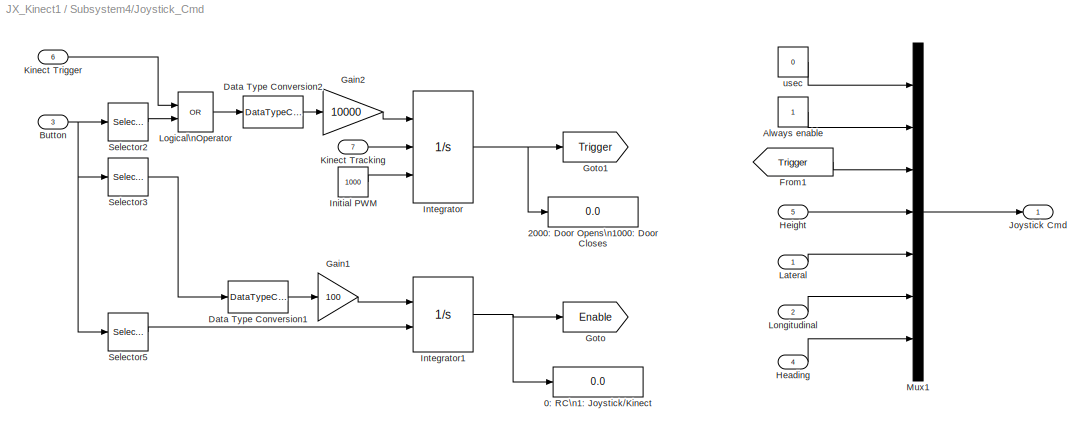
BLOCK [SubSystem] Subsystem4/Joystick_Cmd
  FunctionWithSeparateData = off
  MaskHideContents = off
  MinAlgLoopOccurrences = off
  Opaque = off
  Ports = [7, 1]
  PropExecContextOutsideSubsystem = off
  RTWSystemCode = Auto
  RequestExecContextInheritance = off
  SID = 543
BLOCK [Display] Subsystem4/Joystick_Cmd/0: RC\n1: Joystick//Kinect
  Decimation = 1
  Lockdown = off
  Ports = [1]
  SID = 2098
BLOCK [Display] Subsystem4/Joystick_Cmd/2000: Door Opens\n1000: Door Closes
  Decimation = 1
  Lockdown = off
  Ports = [1]
  SID = 2099
BLOCK [Constant] Subsystem4/Joystick_Cmd/Always enable
  SID = 3181
  SampleTime = sample_time
BLOCK [Inport] Subsystem4/Joystick_Cmd/Button
  IconDisplay = Port number
  Port = 3
  SID = 2097
BLOCK [DataTypeConversion] Subsystem4/Joystick_Cmd/Data Type Conversion1
  OutDataTypeStr = double
  RndMeth = Floor
  SID = 2101
  SaturateOnIntegerOverflow = off
BLOCK [DataTypeConversion] Subsystem4/Joystick_Cmd/Data Type Conversion2
  OutDataTypeStr = double
  RndMeth = Floor
  SID = 2134
  SaturateOnIntegerOverflow = off
BLOCK [From] Subsystem4/Joystick_Cmd/From1
  GotoTag = Trigger
  SID = 2129
BLOCK [Gain] Subsystem4/Joystick_Cmd/Gain1
  Gain = 100
  OutDataTypeStr = Inherit: Inherit via internal rule
  ParamDataTypeStr = Inherit: Inherit via internal rule
  SID = 2103
  SaturateOnIntegerOverflow = off
BLOCK [Gain] Subsystem4/Joystick_Cmd/Gain2
  Gain = 10000
  OutDataTypeStr = Inherit: Inherit via internal rule
  ParamDataTypeStr = Inherit: Inherit via internal rule
  SID = 2135
  SaturateOnIntegerOverflow = off
BLOCK [Goto] Subsystem4/Joystick_Cmd/Goto
  GotoTag = Enable
  SID = 2126
  TagVisibility = local
BLOCK [Goto] Subsystem4/Joystick_Cmd/Goto1
  GotoTag = Trigger
  SID = 3183
  TagVisibility = local
BLOCK [Inport] Subsystem4/Joystick_Cmd/Heading
  IconDisplay = Port number
  Port = 4
  SID = 1651
BLOCK [Inport] Subsystem4/Joystick_Cmd/Height
  IconDisplay = Port number
  Port = 5
  SID = 1652
BLOCK [Constant] Subsystem4/Joystick_Cmd/Initial PWM
  SID = 2106
  Value = 1000
BLOCK [Integrator] Subsystem4/Joystick_Cmd/Integrator
  ExternalReset = falling
  InitialConditionSource = external
  LimitOutput = on
  LowerSaturationLimit = 1000
  Ports = [3, 1]
  SID = 2104
  UpperSaturationLimit = 2000
BLOCK [Integrator] Subsystem4/Joystick_Cmd/Integrator1
  ExternalReset = either
  LimitOutput = on
  LowerSaturationLimit = 0
  Ports = [2, 1]
  SID = 2105
  UpperSaturationLimit = 1
BLOCK [Outport] Subsystem4/Joystick_Cmd/Joystick Cmd
  IconDisplay = Port number
  SID = 545
BLOCK [Inport] Subsystem4/Joystick_Cmd/Kinect Tracking
  IconDisplay = Port number
  Port = 7
  SID = 3192
BLOCK [Inport] Subsystem4/Joystick_Cmd/Kinect Trigger
  IconDisplay = Port number
  Port = 6
  SID = 2112
BLOCK [Inport] Subsystem4/Joystick_Cmd/Lateral
  IconDisplay = Port number
  SID = 544
BLOCK [Logic] Subsystem4/Joystick_Cmd/Logical\nOperator
  AllPortsSameDT = off
  Operator = OR
  OutDataTypeStr = boolean
  Ports = [2, 1]
  SID = 2133
BLOCK [Inport] Subsystem4/Joystick_Cmd/Longitudinal
  IconDisplay = Port number
  Port = 2
  SID = 546
BLOCK [Mux] Subsystem4/Joystick_Cmd/Mux1
  DisplayOption = bar
  Inputs = 7
  Ports = [7, 1]
  SID = 495
BLOCK [Selector] Subsystem4/Joystick_Cmd/Selector2
  IndexOptions = Index vector (dialog)
  Indices = 1
  InputPortWidth = 12
  OutputSizes = 1
  Ports = [1, 1]
  SID = 2107
BLOCK [Selector] Subsystem4/Joystick_Cmd/Selector3
  IndexOptions = Index vector (dialog)
  Indices = 4
  InputPortWidth = 12
  OutputSizes = 1
  Ports = [1, 1]
  SID = 2108
BLOCK [Selector] Subsystem4/Joystick_Cmd/Selector5
  IndexOptions = Index vector (dialog)
  Indices = 3
  InputPortWidth = 12
  OutputSizes = 1
  Ports = [1, 1]
  SID = 2109
BLOCK [Constant] Subsystem4/Joystick_Cmd/usec
  SID = 496
  SampleTime = sample_time
  Value = 0
BLOCK [SubSystem] Subsystem4/Joystick_Left
  FunctionWithSeparateData = off
  MaskHideContents = off
  MinAlgLoopOccurrences = off
  Opaque = off
  Ports = [2, 3]
  PropExecContextOutsideSubsystem = off
  RTWSystemCode = Auto
  RequestExecContextInheritance = off
  SID = 1595
BLOCK [Inport] Subsystem4/Joystick_Left/Button
  IconDisplay = Port number
  Port = 2
  SID = 1780
BLOCK [DeadZone] Subsystem4/Joystick_Left/Dead Zone
  LowerValue = -0.1
  SID = 1571
  UpperValue = 0.1
BLOCK [Inport] Subsystem4/Joystick_Left/Joystick
  IconDisplay = Port number
  SID = 1597
BLOCK [Outport] Subsystem4/Joystick_Left/Lateral
  IconDisplay = Port number
  SID = 1598
BLOCK [Outport] Subsystem4/Joystick_Left/Left Button
  IconDisplay = Port number
  Port = 3
  SID = 1791
BLOCK [Outport] Subsystem4/Joystick_Left/Longitudinal
  IconDisplay = Port number
  Port = 2
  SID = 1646
BLOCK [Constant] Subsystem4/Joystick_Left/Pitch Trim
  SID = 1659
  Value = -0.018
BLOCK [Constant] Subsystem4/Joystick_Left/Roll Trim
  SID = 1658
  Value = -0.017
BLOCK [Selector] Subsystem4/Joystick_Left/Selector1
  IndexOptions = Index vector (dialog)
  Indices = 2
  InputPortWidth = 4
  OutputSizes = 1
  Ports = [1, 1]
  SID = 1681
BLOCK [Selector] Subsystem4/Joystick_Left/Selector4
  IndexOptions = Index vector (dialog)
  Indices = 1
  InputPortWidth = 4
  OutputSizes = 1
  Ports = [1, 1]
  SID = 1680
BLOCK [Sum] Subsystem4/Joystick_Left/Sum
  InputSameDT = off
  OutDataTypeStr = Inherit: Inherit via internal rule
  Ports = [2, 1]
  SID = 1657
  SaturateOnIntegerOverflow = off
BLOCK [Sum] Subsystem4/Joystick_Left/Sum1
  InputSameDT = off
  OutDataTypeStr = Inherit: Inherit via internal rule
  Ports = [2, 1]
  SID = 1660
  SaturateOnIntegerOverflow = off
BLOCK [SubSystem] Subsystem4/Joystick_Right
  FunctionWithSeparateData = off
  MaskHideContents = off
  MinAlgLoopOccurrences = off
  Opaque = off
  Ports = [2, 2]
  PropExecContextOutsideSubsystem = off
  RTWSystemCode = Auto
  RequestExecContextInheritance = off
  SID = 1634
BLOCK [Inport] Subsystem4/Joystick_Right/Button
  IconDisplay = Port number
  Port = 2
  SID = 1744
BLOCK [DeadZone] Subsystem4/Joystick_Right/Dead Zone3
  LowerValue = -0.2
  SID = 1729
  UpperValue = 0.2
BLOCK [Demux] Subsystem4/Joystick_Right/Demux
  DisplayOption = bar
  Outputs = 2
  Ports = [1, 2]
  SID = 1765
BLOCK [Gain] Subsystem4/Joystick_Right/Gain
  Gain = -1
  OutDataTypeStr = Inherit: Inherit via internal rule
  ParamDataTypeStr = Inherit: Inherit via internal rule
  SID = 1626
  SaturateOnIntegerOverflow = off
BLOCK [Gain] Subsystem4/Joystick_Right/Gain2
  Gain = -0.05
  OutDataTypeStr = Inherit: Inherit via internal rule
  ParamDataTypeStr = Inherit: Inherit via internal rule
  SID = 1767
  SaturateOnIntegerOverflow = off
BLOCK [Gain] Subsystem4/Joystick_Right/Gain3
  Gain = 0.05
  OutDataTypeStr = Inherit: Inherit via internal rule
  ParamDataTypeStr = Inherit: Inherit via internal rule
  SID = 1768
  SaturateOnIntegerOverflow = off
BLOCK [Gain] Subsystem4/Joystick_Right/Gain4
  Gain = 0.5
  OutDataTypeStr = Inherit: Inherit via internal rule
  ParamDataTypeStr = Inherit: Inherit via internal rule
  SID = 1777
  SaturateOnIntegerOverflow = off
BLOCK [Outport] Subsystem4/Joystick_Right/Heading
  IconDisplay = Port number
  SID = 1637
BLOCK [Outport] Subsystem4/Joystick_Right/Height
  IconDisplay = Port number
  Port = 2
  SID = 1635
BLOCK [Integrator] Subsystem4/Joystick_Right/Integrator
  Ports = [1, 1]
  SID = 1771
BLOCK [Inport] Subsystem4/Joystick_Right/Joystick
  IconDisplay = Port number
  SID = 1636
BLOCK [Saturate] Subsystem4/Joystick_Right/Saturation
  InputPortMap = u0
  LowerLimit = -0.1
  Ports = [1, 1]
  SID = 1772
  UpperLimit = 0.1
BLOCK [Selector] Subsystem4/Joystick_Right/Selector2
  IndexOptions = Index vector (dialog)
  Indices = [1]
  InputPortWidth = 3
  OutputSizes = 1
  Ports = [1, 1]
  SID = 1632
BLOCK [Selector] Subsystem4/Joystick_Right/Selector4
  IndexOptions = Index vector (dialog)
  Indices = 2
  InputPortWidth = 3
  OutputSizes = 1
  Ports = [1, 1]
  SID = 1640
BLOCK [Selector] Subsystem4/Joystick_Right/Selector5
  IndexOptions = Index vector (dialog)
  Indices = [4 5]
  InputPortWidth = 11
  OutputSizes = 1
  Ports = [1, 1]
  SID = 1756
BLOCK [Sum] Subsystem4/Joystick_Right/Sum1
  IconShape = round
  InputSameDT = off
  Inputs = |++
  OutDataTypeStr = Inherit: Inherit via internal rule
  Ports = [2, 1]
  SID = 1662
  SaturateOnIntegerOverflow = off
BLOCK [Sum] Subsystem4/Joystick_Right/Sum2
  InputSameDT = off
  Inputs = +-
  OutDataTypeStr = Inherit: Inherit via internal rule
  Ports = [2, 1]
  SID = 1737
  SaturateOnIntegerOverflow = off
BLOCK [Sum] Subsystem4/Joystick_Right/Sum3
  InputSameDT = off
  OutDataTypeStr = double
  Ports = [2, 1]
  SID = 1769
  SaturateOnIntegerOverflow = off
BLOCK [Sum] Subsystem4/Joystick_Right/Sum4
  IconShape = round
  InputSameDT = off
  Inputs = |++
  OutDataTypeStr = Inherit: Inherit via internal rule
  Ports = [2, 1]
  SID = 1773
  SaturateOnIntegerOverflow = off
BLOCK [Constant] Subsystem4/Joystick_Right/Thottle Trim
  SID = 1738
BLOCK [Constant] Subsystem4/Joystick_Right/Yaw Trim
  SID = 1661
  Value = -0.005
BLOCK [Inport] Subsystem4/Kinect
  IconDisplay = Port number
  Port = 5
  SID = 2094
BLOCK [SubSystem] Subsystem4/Kinect Roll Pitch Trigger
  FunctionWithSeparateData = off
  MaskHideContents = off
  MinAlgLoopOccurrences = off
  Opaque = off
  Ports = [2, 4]
  PropExecContextOutsideSubsystem = off
  RTWSystemCode = Auto
  RequestExecContextInheritance = off
  SID = 2072
BLOCK [DataTypeConversion] Subsystem4/Kinect Roll Pitch Trigger/Data Type Conversion
  OutDataTypeStr = boolean
  RndMeth = Floor
  SID = 3193
  SaturateOnIntegerOverflow = off
BLOCK [Demux] Subsystem4/Kinect Roll Pitch Trigger/Demux
  DisplayOption = bar
  Outputs = 3
  Ports = [1, 3]
  SID = 2680
BLOCK [Inport] Subsystem4/Kinect Roll Pitch Trigger/Kinect
  IconDisplay = Port number
  SID = 2073
BLOCK [Inport] Subsystem4/Kinect Roll Pitch Trigger/Kinect Tracking
  IconDisplay = Port number
  Port = 2
  SID = 3190
BLOCK [Outport] Subsystem4/Kinect Roll Pitch Trigger/Pitch
  IconDisplay = Port number
  Port = 2
  SID = 2679
BLOCK [Outport] Subsystem4/Kinect Roll Pitch Trigger/Roll
  IconDisplay = Port number
  SID = 2092
BLOCK [Gain] Subsystem4/Kinect Roll Pitch Trigger/Scale sensitivity by one third1
  Gain = 1/180
  OutDataTypeStr = Inherit: Inherit via internal rule
  ParamDataTypeStr = Inherit: Inherit via internal rule
  SID = 2701
  SaturateOnIntegerOverflow = off
BLOCK [Gain] Subsystem4/Kinect Roll Pitch Trigger/Scale sensitivity by one third2
  Gain = 1/180
  OutDataTypeStr = Inherit: Inherit via internal rule
  ParamDataTypeStr = Inherit: Inherit via internal rule
  SID = 2702
  SaturateOnIntegerOverflow = off
BLOCK [Scope] Subsystem4/Kinect Roll Pitch Trigger/Scope1
  DataFormat = StructureWithTime
  Floating = off
  NumInputPorts = 1
  Ports = [1]
  SID = 2711
  SampleTime = 0
  SaveName = ScopeData4
  ZoomMode = xonly
BLOCK [Outport] Subsystem4/Kinect Roll Pitch Trigger/Tracking
  IconDisplay = Port number
  Port = 4
  SID = 3191
BLOCK [Outport] Subsystem4/Kinect Roll Pitch Trigger/Trigger
  IconDisplay = Port number
  Port = 3
  SID = 2700
BLOCK [Inport] Subsystem4/Kinect Tracking
  IconDisplay = Port number
  Port = 6
  SID = 3189
BLOCK [Sum] Subsystem4/Sum
  InputSameDT = off
  OutDataTypeStr = Inherit: Inherit via internal rule
  Ports = [2, 1]
  SID = 2689
  SaturateOnIntegerOverflow = off
BLOCK [Sum] Subsystem4/Sum1
  InputSameDT = off
  OutDataTypeStr = Inherit: Inherit via internal rule
  Ports = [2, 1]
  SID = 2690
  SaturateOnIntegerOverflow = off
BLOCK [Display] Throttle
  Decimation = 1
  Lockdown = off
  Ports = [1]
  SID = 1706
BLOCK [ToWorkspace] To Workspace
  MaxDataPoints = inf
  Ports = [1]
  SID = 1668
  SampleTime = -1
  SaveFormat = Structure With Time
  VariableName = Data_Logging
ANNOTATION Kinect Roll Pitch Trigger: Enable Signal
LINE Demux:1 -> Roll, Pitch Kinect Cmd:1
LINE Demux:2 -> Roll, Pitch Kinect Cmd:2
LINE Kinect Roll Pitch Trigger/Add1:1 -> Kinect Roll Pitch Trigger/Enabled3:1
LINE Kinect Roll Pitch Trigger/Add2:1 -> Kinect Roll Pitch Trigger/Enabled2:1
LINE Kinect Roll Pitch Trigger/Add:1 -> Kinect Roll Pitch Trigger/Enabled1:1
LINE Kinect Roll Pitch Trigger/El-Sh Unit Vec/In1:1 -> Kinect Roll Pitch Trigger/El-Sh Unit Vec/Subtract3:1
LINE Kinect Roll Pitch Trigger/El-Sh Unit Vec/In2:1 -> Kinect Roll Pitch Trigger/El-Sh Unit Vec/Subtract3:2
LINE Kinect Roll Pitch Trigger/El-Sh Unit Vec/Shoudler Elbow:1 -> Kinect Roll Pitch Trigger/El-Sh Unit Vec/Out1:1
LINE Kinect Roll Pitch Trigger/El-Sh Unit Vec/Subtract3:1 -> Kinect Roll Pitch Trigger/El-Sh Unit Vec/Shoudler Elbow:1
NET Kinect Roll Pitch Trigger/El-Sh Unit Vec:1 -> Kinect Roll Pitch Trigger/El-Sh, Ha-El\nProcess2:2, Kinect Roll Pitch Trigger/He-Ne, El-Sh\nProcess1:3
LINE Kinect Roll Pitch Trigger/El-Sh, Ha-El\nProcess2/Enabled\nSubsystem2/In1:1 -> Kinect Roll Pitch Trigger/El-Sh, Ha-El\nProcess2/Enabled\nSubsystem2/Out1:1
LINE Kinect Roll Pitch Trigger/El-Sh, Ha-El\nProcess2/Enabled\nSubsystem2:1 -> Kinect Roll Pitch Trigger/El-Sh, Ha-El\nProcess2/Out1:1
LINE Kinect Roll Pitch Trigger/El-Sh, Ha-El\nProcess2/In1:1 -> Kinect Roll Pitch Trigger/El-Sh, Ha-El\nProcess2/Enabled\nSubsystem2:enable
LINE Kinect Roll Pitch Trigger/El-Sh, Ha-El\nProcess2/In2:1 -> Kinect Roll Pitch Trigger/El-Sh, Ha-El\nProcess2/consine El-Sh, Ha-El:1
LINE Kinect Roll Pitch Trigger/El-Sh, Ha-El\nProcess2/In3:1 -> Kinect Roll Pitch Trigger/El-Sh, Ha-El\nProcess2/consine El-Sh, Ha-El:2
LINE Kinect Roll Pitch Trigger/El-Sh, Ha-El\nProcess2/consine El-Sh, Ha-El:1 -> Kinect Roll Pitch Trigger/El-Sh, Ha-El\nProcess2/Enabled\nSubsystem2:1
NET Kinect Roll Pitch Trigger/El-Sh, Ha-El\nProcess2:1 -> Kinect Roll Pitch Trigger/consine of Process2:1, Kinect Roll Pitch Trigger/processor3\nChecker1:1
LINE Kinect Roll Pitch Trigger/Enabled1/In1:1 -> Kinect Roll Pitch Trigger/Enabled1/Out1:1
LINE Kinect Roll Pitch Trigger/Enabled1:1 -> Kinect Roll Pitch Trigger/He-Ne,El-Sh Process1\nFiltered :1
LINE Kinect Roll Pitch Trigger/Enabled2/In1:1 -> Kinect Roll Pitch Trigger/Enabled2/Out1:1
NET Kinect Roll Pitch Trigger/Enabled2:1 -> Kinect Roll Pitch Trigger/El-Sh, Ha-El Process2\nFiltered(ROLL):1, Kinect Roll Pitch Trigger/Subtract1:1
LINE Kinect Roll Pitch Trigger/Enabled3/In1:1 -> Kinect Roll Pitch Trigger/Enabled3/Out1:1
NET Kinect Roll Pitch Trigger/Enabled3:1 -> Kinect Roll Pitch Trigger/He-Ne, Ha-El Process3\nFiltered (PITCH):1, Kinect Roll Pitch Trigger/Subtract:1
LINE Kinect Roll Pitch Trigger/From1:1 -> Kinect Roll Pitch Trigger/Neck idx:1
LINE Kinect Roll Pitch Trigger/From2:1 -> Kinect Roll Pitch Trigger/R shoulder idx:1
LINE Kinect Roll Pitch Trigger/From3:1 -> Kinect Roll Pitch Trigger/R elbow idx:1
LINE Kinect Roll Pitch Trigger/From4:1 -> Kinect Roll Pitch Trigger/R hand idx:1
LINE Kinect Roll Pitch Trigger/From5:1 -> Kinect Roll Pitch Trigger/L hand idx:1
LINE Kinect Roll Pitch Trigger/From6:1 -> Kinect Roll Pitch Trigger/L elbow idx:1
LINE Kinect Roll Pitch Trigger/From7:1 -> Kinect Roll Pitch Trigger/L shoulder idx:1
LINE Kinect Roll Pitch Trigger/From:1 -> Kinect Roll Pitch Trigger/Head idx:1
LINE Kinect Roll Pitch Trigger/Ha-El Unit Vector/Elbow Hand:1 -> Kinect Roll Pitch Trigger/Ha-El Unit Vector/Out1:1
LINE Kinect Roll Pitch Trigger/Ha-El Unit Vector/In1:1 -> Kinect Roll Pitch Trigger/Ha-El Unit Vector/Subtract2:1
LINE Kinect Roll Pitch Trigger/Ha-El Unit Vector/In2:1 -> Kinect Roll Pitch Trigger/Ha-El Unit Vector/Subtract2:2
LINE Kinect Roll Pitch Trigger/Ha-El Unit Vector/Subtract2:1 -> Kinect Roll Pitch Trigger/Ha-El Unit Vector/Elbow Hand:1
NET Kinect Roll Pitch Trigger/Ha-El Unit Vector:1 -> Kinect Roll Pitch Trigger/El-Sh, Ha-El\nProcess2:3, Kinect Roll Pitch Trigger/He-Ne, Ha-El\nProcess3:3
LINE Kinect Roll Pitch Trigger/Ha-Sh Unit Vec\n(Standby)/In1:1 -> Kinect Roll Pitch Trigger/Ha-Sh Unit Vec\n(Standby)/Subtract1:1
LINE Kinect Roll Pitch Trigger/Ha-Sh Unit Vec\n(Standby)/In2:1 -> Kinect Roll Pitch Trigger/Ha-Sh Unit Vec\n(Standby)/Subtract1:2
LINE Kinect Roll Pitch Trigger/Ha-Sh Unit Vec\n(Standby)/Subtract1:1 -> Kinect Roll Pitch Trigger/Ha-Sh Unit Vec\n(Standby)/Unit Vector1:1
LINE Kinect Roll Pitch Trigger/Ha-Sh Unit Vec\n(Standby)/Unit Vector1:1 -> Kinect Roll Pitch Trigger/Ha-Sh Unit Vec\n(Standby)/Out1:1
LINE Kinect Roll Pitch Trigger/He-Ne Unit Vec/In1:1 -> Kinect Roll Pitch Trigger/He-Ne Unit Vec/Subtract:1
LINE Kinect Roll Pitch Trigger/He-Ne Unit Vec/In2:1 -> Kinect Roll Pitch Trigger/He-Ne Unit Vec/Subtract:2
LINE Kinect Roll Pitch Trigger/He-Ne Unit Vec/Subtract:1 -> Kinect Roll Pitch Trigger/He-Ne Unit Vec/Unit Vector:1
LINE Kinect Roll Pitch Trigger/He-Ne Unit Vec/Unit Vector:1 -> Kinect Roll Pitch Trigger/He-Ne Unit Vec/Out1:1
NET Kinect Roll Pitch Trigger/He-Ne Unit Vec:1 -> Kinect Roll Pitch Trigger/He-Ne, El-Sh\nProcess1:2, Kinect Roll Pitch Trigger/He-Ne, Ha-El\nProcess3:2
LINE Kinect Roll Pitch Trigger/He-Ne, El-Sh\nProcess1/Enabled\nSubsystem1/In1:1 -> Kinect Roll Pitch Trigger/He-Ne, El-Sh\nProcess1/Enabled\nSubsystem1/Out1:1
LINE Kinect Roll Pitch Trigger/He-Ne, El-Sh\nProcess1/Enabled\nSubsystem1:1 -> Kinect Roll Pitch Trigger/He-Ne, El-Sh\nProcess1/Out1:1
LINE Kinect Roll Pitch Trigger/He-Ne, El-Sh\nProcess1/In1:1 -> Kinect Roll Pitch Trigger/He-Ne, El-Sh\nProcess1/Enabled\nSubsystem1:enable
LINE Kinect Roll Pitch Trigger/He-Ne, El-Sh\nProcess1/In2:1 -> Kinect Roll Pitch Trigger/He-Ne, El-Sh\nProcess1/consine He-Ne\nEl-Sh:1
LINE Kinect Roll Pitch Trigger/He-Ne, El-Sh\nProcess1/In3:1 -> Kinect Roll Pitch Trigger/He-Ne, El-Sh\nProcess1/consine He-Ne\nEl-Sh:2
LINE Kinect Roll Pitch Trigger/He-Ne, El-Sh\nProcess1/consine He-Ne\nEl-Sh:1 -> Kinect Roll Pitch Trigger/He-Ne, El-Sh\nProcess1/Enabled\nSubsystem1:1
NET Kinect Roll Pitch Trigger/He-Ne, El-Sh\nProcess1:1 -> Kinect Roll Pitch Trigger/consine of Process1:1, Kinect Roll Pitch Trigger/processor1\nChecker:1
LINE Kinect Roll Pitch Trigger/He-Ne, Ha-El\nProcess3/Enabled\nSubsystem3/In1:1 -> Kinect Roll Pitch Trigger/He-Ne, Ha-El\nProcess3/Enabled\nSubsystem3/Out1:1
LINE Kinect Roll Pitch Trigger/He-Ne, Ha-El\nProcess3/Enabled\nSubsystem3:1 -> Kinect Roll Pitch Trigger/He-Ne, Ha-El\nProcess3/Out1:1
LINE Kinect Roll Pitch Trigger/He-Ne, Ha-El\nProcess3/In1:1 -> Kinect Roll Pitch Trigger/He-Ne, Ha-El\nProcess3/Enabled\nSubsystem3:enable
LINE Kinect Roll Pitch Trigger/He-Ne, Ha-El\nProcess3/In2:1 -> Kinect Roll Pitch Trigger/He-Ne, Ha-El\nProcess3/consine He-Ne, Ha-El:1
LINE Kinect Roll Pitch Trigger/He-Ne, Ha-El\nProcess3/In3:1 -> Kinect Roll Pitch Trigger/He-Ne, Ha-El\nProcess3/consine He-Ne, Ha-El:2
LINE Kinect Roll Pitch Trigger/He-Ne, Ha-El\nProcess3/consine He-Ne, Ha-El:1 -> Kinect Roll Pitch Trigger/He-Ne, Ha-El\nProcess3/Enabled\nSubsystem3:1
NET Kinect Roll Pitch Trigger/He-Ne, Ha-El\nProcess3:1 -> Kinect Roll Pitch Trigger/consine of Process3:1, Kinect Roll Pitch Trigger/processor3\nChecker:1
LINE Kinect Roll Pitch Trigger/Head Vector/ Demux :1 -> Kinect Roll Pitch Trigger/Head Vector/ Terminator :1
LINE Kinect Roll Pitch Trigger/Head Vector/ SFunction :1 -> Kinect Roll Pitch Trigger/Head Vector/ Demux :1
LINE Kinect Roll Pitch Trigger/Head Vector/ SFunction :2 -> Kinect Roll Pitch Trigger/Head Vector/y1:1
LINE Kinect Roll Pitch Trigger/Head Vector/x:1 -> Kinect Roll Pitch Trigger/Head Vector/ SFunction :1
LINE Kinect Roll Pitch Trigger/Head Vector/y:1 -> Kinect Roll Pitch Trigger/Head Vector/ SFunction :2
LINE Kinect Roll Pitch Trigger/Head Vector/z:1 -> Kinect Roll Pitch Trigger/Head Vector/ SFunction :3
LINE Kinect Roll Pitch Trigger/Head Vector:1 -> Kinect Roll Pitch Trigger/He-Ne Unit Vec:1
LINE Kinect Roll Pitch Trigger/Head idx/Kinect SDK:1 -> Kinect Roll Pitch Trigger/Head idx/Switch:1
LINE Kinect Roll Pitch Trigger/Head idx/OpenNI:1 -> Kinect Roll Pitch Trigger/Head idx/Switch:3
LINE Kinect Roll Pitch Trigger/Head idx/SDK:1 -> Kinect Roll Pitch Trigger/Head idx/Switch:2
LINE Kinect Roll Pitch Trigger/Head idx/Switch:1 -> Kinect Roll Pitch Trigger/Head idx/Idx:1
LINE Kinect Roll Pitch Trigger/Head idx:1 -> Kinect Roll Pitch Trigger/Selector:2
LINE Kinect Roll Pitch Trigger/L elbow idx/Kinect SDK:1 -> Kinect Roll Pitch Trigger/L elbow idx/Switch:1
LINE Kinect Roll Pitch Trigger/L elbow idx/OpenNI:1 -> Kinect Roll Pitch Trigger/L elbow idx/Switch:3
LINE Kinect Roll Pitch Trigger/L elbow idx/SDK:1 -> Kinect Roll Pitch Trigger/L elbow idx/Switch:2
LINE Kinect Roll Pitch Trigger/L elbow idx/Switch:1 -> Kinect Roll Pitch Trigger/L elbow idx/Idx:1
LINE Kinect Roll Pitch Trigger/L elbow idx:1 -> Kinect Roll Pitch Trigger/Selector6:2
LINE Kinect Roll Pitch Trigger/L hand idx/Kinect SDK:1 -> Kinect Roll Pitch Trigger/L hand idx/Switch:1
LINE Kinect Roll Pitch Trigger/L hand idx/OpenNI:1 -> Kinect Roll Pitch Trigger/L hand idx/Switch:3
LINE Kinect Roll Pitch Trigger/L hand idx/SDK:1 -> Kinect Roll Pitch Trigger/L hand idx/Switch:2
LINE Kinect Roll Pitch Trigger/L hand idx/Switch:1 -> Kinect Roll Pitch Trigger/L hand idx/Idx:1
LINE Kinect Roll Pitch Trigger/L hand idx:1 -> Kinect Roll Pitch Trigger/Selector5:2
LINE Kinect Roll Pitch Trigger/L shoulder idx/Kinect SDK:1 -> Kinect Roll Pitch Trigger/L shoulder idx/Switch:1
LINE Kinect Roll Pitch Trigger/L shoulder idx/OpenNI:1 -> Kinect Roll Pitch Trigger/L shoulder idx/Switch:3
LINE Kinect Roll Pitch Trigger/L shoulder idx/SDK:1 -> Kinect Roll Pitch Trigger/L shoulder idx/Switch:2
LINE Kinect Roll Pitch Trigger/L shoulder idx/Switch:1 -> Kinect Roll Pitch Trigger/L shoulder idx/Idx:1
LINE Kinect Roll Pitch Trigger/L shoulder idx:1 -> Kinect Roll Pitch Trigger/Selector7:2
LINE Kinect Roll Pitch Trigger/Mux:1 -> Kinect Roll Pitch Trigger/Saturation:1
LINE Kinect Roll Pitch Trigger/NID IMAQ:1 -> Kinect Roll Pitch Trigger/NID Skeleton:1
NET Kinect Roll Pitch Trigger/NID Skeleton:1 -> Kinect Roll Pitch Trigger/El-Sh, Ha-El\nProcess2:1, Kinect Roll Pitch Trigger/Enabled1:enable, Kinect Roll Pitch Trigger/Enabled2:enable, Kinect Roll Pitch Trigger/Enabled3:enable, Kinect Roll Pitch Trigger/He-Ne, El-Sh\nProcess1:1, Kinect Roll Pitch Trigger/He-Ne, Ha-El\nProcess3:1, Kinect Roll Pitch Trigger/Kinect Tracking:1, Kinect Roll Pitch Trigger/Pass if 1 and 2\nenabled:1, Kinect Roll Pitch Trigger/Pass if 1 and 3\nenabled:1, Kinect Roll Pitch Trigger/Tracking Status \n(1: Tracking, 0: Not Tracking):1
NET Kinect Roll Pitch Trigger/NID Skeleton:2 -> Kinect Roll Pitch Trigger/Selector1:1, Kinect Roll Pitch Trigger/Selector2:1, Kinect Roll Pitch Trigger/Selector3:1, Kinect Roll Pitch Trigger/Selector4:1, Kinect Roll Pitch Trigger/Selector5:1, Kinect Roll Pitch Trigger/Selector6:1, Kinect Roll Pitch Trigger/Selector7:1, Kinect Roll Pitch Trigger/Selector:1, Kinect Roll Pitch Trigger/Width:1
LINE Kinect Roll Pitch Trigger/Neck Vector/ Demux :1 -> Kinect Roll Pitch Trigger/Neck Vector/ Terminator :1
LINE Kinect Roll Pitch Trigger/Neck Vector/ SFunction :1 -> Kinect Roll Pitch Trigger/Neck Vector/ Demux :1
LINE Kinect Roll Pitch Trigger/Neck Vector/ SFunction :2 -> Kinect Roll Pitch Trigger/Neck Vector/y1:1
LINE Kinect Roll Pitch Trigger/Neck Vector/x:1 -> Kinect Roll Pitch Trigger/Neck Vector/ SFunction :1
LINE Kinect Roll Pitch Trigger/Neck Vector/y:1 -> Kinect Roll Pitch Trigger/Neck Vector/ SFunction :2
LINE Kinect Roll Pitch Trigger/Neck Vector/z:1 -> Kinect Roll Pitch Trigger/Neck Vector/ SFunction :3
LINE Kinect Roll Pitch Trigger/Neck Vector:1 -> Kinect Roll Pitch Trigger/He-Ne Unit Vec:2
LINE Kinect Roll Pitch Trigger/Neck idx/Kinect SDK:1 -> Kinect Roll Pitch Trigger/Neck idx/Switch:1
LINE Kinect Roll Pitch Trigger/Neck idx/OpenNI:1 -> Kinect Roll Pitch Trigger/Neck idx/Switch:3
LINE Kinect Roll Pitch Trigger/Neck idx/SDK:1 -> Kinect Roll Pitch Trigger/Neck idx/Switch:2
LINE Kinect Roll Pitch Trigger/Neck idx/Switch:1 -> Kinect Roll Pitch Trigger/Neck idx/Idx:1
LINE Kinect Roll Pitch Trigger/Neck idx:1 -> Kinect Roll Pitch Trigger/Selector1:2
LINE Kinect Roll Pitch Trigger/Pass if 1 and 2\nenabled:1 -> Kinect Roll Pitch Trigger/Pitch Enable Indicator\nIf enabled `1`, disabled `0` :1
LINE Kinect Roll Pitch Trigger/Pass if 1 and 3\nenabled:1 -> Kinect Roll Pitch Trigger/Roll Enable Indicator\nIf ebabled `1`, disabled `0`:1
LINE Kinect Roll Pitch Trigger/R Hand Vector/ Demux :1 -> Kinect Roll Pitch Trigger/R Hand Vector/ Terminator :1
LINE Kinect Roll Pitch Trigger/R Hand Vector/ SFunction :1 -> Kinect Roll Pitch Trigger/R Hand Vector/ Demux :1
LINE Kinect Roll Pitch Trigger/R Hand Vector/ SFunction :2 -> Kinect Roll Pitch Trigger/R Hand Vector/y1:1
LINE Kinect Roll Pitch Trigger/R Hand Vector/x:1 -> Kinect Roll Pitch Trigger/R Hand Vector/ SFunction :1
LINE Kinect Roll Pitch Trigger/R Hand Vector/y:1 -> Kinect Roll Pitch Trigger/R Hand Vector/ SFunction :2
LINE Kinect Roll Pitch Trigger/R Hand Vector/z:1 -> Kinect Roll Pitch Trigger/R Hand Vector/ SFunction :3
NET Kinect Roll Pitch Trigger/R Hand Vector:1 -> Kinect Roll Pitch Trigger/Ha-El Unit Vector:1, Kinect Roll Pitch Trigger/Ha-Sh Unit Vec\n(Standby):1
LINE Kinect Roll Pitch Trigger/R elbow idx/Kinect SDK:1 -> Kinect Roll Pitch Trigger/R elbow idx/Switch:1
LINE Kinect Roll Pitch Trigger/R elbow idx/OpenNI:1 -> Kinect Roll Pitch Trigger/R elbow idx/Switch:3
LINE Kinect Roll Pitch Trigger/R elbow idx/SDK:1 -> Kinect Roll Pitch Trigger/R elbow idx/Switch:2
LINE Kinect Roll Pitch Trigger/R elbow idx/Switch:1 -> Kinect Roll Pitch Trigger/R elbow idx/Idx:1
LINE Kinect Roll Pitch Trigger/R elbow idx:1 -> Kinect Roll Pitch Trigger/Selector3:2
LINE Kinect Roll Pitch Trigger/R elbow/ Demux :1 -> Kinect Roll Pitch Trigger/R elbow/ Terminator :1
LINE Kinect Roll Pitch Trigger/R elbow/ SFunction :1 -> Kinect Roll Pitch Trigger/R elbow/ Demux :1
LINE Kinect Roll Pitch Trigger/R elbow/ SFunction :2 -> Kinect Roll Pitch Trigger/R elbow/y1:1
LINE Kinect Roll Pitch Trigger/R elbow/x:1 -> Kinect Roll Pitch Trigger/R elbow/ SFunction :1
LINE Kinect Roll Pitch Trigger/R elbow/y:1 -> Kinect Roll Pitch Trigger/R elbow/ SFunction :2
LINE Kinect Roll Pitch Trigger/R elbow/z:1 -> Kinect Roll Pitch Trigger/R elbow/ SFunction :3
NET Kinect Roll Pitch Trigger/R elbow:1 -> Kinect Roll Pitch Trigger/El-Sh Unit Vec:1, Kinect Roll Pitch Trigger/Ha-El Unit Vector:2
LINE Kinect Roll Pitch Trigger/R hand idx/Kinect SDK:1 -> Kinect Roll Pitch Trigger/R hand idx/Switch:1
LINE Kinect Roll Pitch Trigger/R hand idx/OpenNI:1 -> Kinect Roll Pitch Trigger/R hand idx/Switch:3
LINE Kinect Roll Pitch Trigger/R hand idx/SDK:1 -> Kinect Roll Pitch Trigger/R hand idx/Switch:2
LINE Kinect Roll Pitch Trigger/R hand idx/Switch:1 -> Kinect Roll Pitch Trigger/R hand idx/Idx:1
LINE Kinect Roll Pitch Trigger/R hand idx:1 -> Kinect Roll Pitch Trigger/Selector4:2
LINE Kinect Roll Pitch Trigger/R shoulder idx/Kinect SDK:1 -> Kinect Roll Pitch Trigger/R shoulder idx/Switch:1
LINE Kinect Roll Pitch Trigger/R shoulder idx/OpenNI:1 -> Kinect Roll Pitch Trigger/R shoulder idx/Switch:3
LINE Kinect Roll Pitch Trigger/R shoulder idx/SDK:1 -> Kinect Roll Pitch Trigger/R shoulder idx/Switch:2
LINE Kinect Roll Pitch Trigger/R shoulder idx/Switch:1 -> Kinect Roll Pitch Trigger/R shoulder idx/Idx:1
LINE Kinect Roll Pitch Trigger/R shoulder idx:1 -> Kinect Roll Pitch Trigger/Selector2:2
LINE Kinect Roll Pitch Trigger/R shoulder/ Demux :1 -> Kinect Roll Pitch Trigger/R shoulder/ Terminator :1
LINE Kinect Roll Pitch Trigger/R shoulder/ SFunction :1 -> Kinect Roll Pitch Trigger/R shoulder/ Demux :1
LINE Kinect Roll Pitch Trigger/R shoulder/ SFunction :2 -> Kinect Roll Pitch Trigger/R shoulder/y1:1
LINE Kinect Roll Pitch Trigger/R shoulder/x:1 -> Kinect Roll Pitch Trigger/R shoulder/ SFunction :1
LINE Kinect Roll Pitch Trigger/R shoulder/y:1 -> Kinect Roll Pitch Trigger/R shoulder/ SFunction :2
LINE Kinect Roll Pitch Trigger/R shoulder/z:1 -> Kinect Roll Pitch Trigger/R shoulder/ SFunction :3
NET Kinect Roll Pitch Trigger/R shoulder:1 -> Kinect Roll Pitch Trigger/El-Sh Unit Vec:2, Kinect Roll Pitch Trigger/Ha-Sh Unit Vec\n(Standby):2
LINE Kinect Roll Pitch Trigger/Relational\nOperator:1 -> Kinect Roll Pitch Trigger/Goto:1
LINE Kinect Roll Pitch Trigger/Saturation:1 -> Kinect Roll Pitch Trigger/Roll // Pitch // Trigger:1
LINE Kinect Roll Pitch Trigger/Selector1:1 -> Kinect Roll Pitch Trigger/XYZtoX_Y_Z1:1
LINE Kinect Roll Pitch Trigger/Selector2:1 -> Kinect Roll Pitch Trigger/XYZtoX_Y_Z2:1
LINE Kinect Roll Pitch Trigger/Selector3:1 -> Kinect Roll Pitch Trigger/XYZtoX_Y_Z3:1
LINE Kinect Roll Pitch Trigger/Selector4:1 -> Kinect Roll Pitch Trigger/XYZtoX_Y_Z4:1
LINE Kinect Roll Pitch Trigger/Selector5:1 -> Kinect Roll Pitch Trigger/XYZtoX_Y_Z5:1
LINE Kinect Roll Pitch Trigger/Selector6:1 -> Kinect Roll Pitch Trigger/XYZtoX_Y_Z6:1
LINE Kinect Roll Pitch Trigger/Selector7:1 -> Kinect Roll Pitch Trigger/XYZtoX_Y_Z7:1
LINE Kinect Roll Pitch Trigger/Selector:1 -> Kinect Roll Pitch Trigger/XYZtoX_Y_Z:1
LINE Kinect Roll Pitch Trigger/Subsystem/Front or Center or Back/Gain1:1 -> Kinect Roll Pitch Trigger/Subsystem/Front or Center or Back/Saturation1:1
LINE Kinect Roll Pitch Trigger/Subsystem/Front or Center or Back/Gain2:1 -> Kinect Roll Pitch Trigger/Subsystem/Front or Center or Back/Saturation2:1
LINE Kinect Roll Pitch Trigger/Subsystem/Front or Center or Back/Gain:1 -> Kinect Roll Pitch Trigger/Subsystem/Front or Center or Back/Saturation:1
LINE Kinect Roll Pitch Trigger/Subsystem/Front or Center or Back/If Back/Constant1:1 -> Kinect Roll Pitch Trigger/Subsystem/Front or Center or Back/If Back/00:1
LINE Kinect Roll Pitch Trigger/Subsystem/Front or Center or Back/If Back/Constant:1 -> Kinect Roll Pitch Trigger/Subsystem/Front or Center or Back/If Back/0:1
LINE Kinect Roll Pitch Trigger/Subsystem/Front or Center or Back/If Back/In1:1 -> Kinect Roll Pitch Trigger/Subsystem/Front or Center or Back/If Back/Out1:1
LINE Kinect Roll Pitch Trigger/Subsystem/Front or Center or Back/If Back:1 -> Kinect Roll Pitch Trigger/Subsystem/Front or Center or Back/Merge5:2
LINE Kinect Roll Pitch Trigger/Subsystem/Front or Center or Back/If Back:2 -> Kinect Roll Pitch Trigger/Subsystem/Front or Center or Back/Merge:2
LINE Kinect Roll Pitch Trigger/Subsystem/Front or Center or Back/If Back:3 -> Kinect Roll Pitch Trigger/Subsystem/Front or Center or Back/Merge1:2
LINE Kinect Roll Pitch Trigger/Subsystem/Front or Center or Back/If Center/Constant1:1 -> Kinect Roll Pitch Trigger/Subsystem/Front or Center or Back/If Center/00:1
LINE Kinect Roll Pitch Trigger/Subsystem/Front or Center or Back/If Center/Constant:1 -> Kinect Roll Pitch Trigger/Subsystem/Front or Center or Back/If Center/0:1
LINE Kinect Roll Pitch Trigger/Subsystem/Front or Center or Back/If Center/In1:1 -> Kinect Roll Pitch Trigger/Subsystem/Front or Center or Back/If Center/Out1:1
LINE Kinect Roll Pitch Trigger/Subsystem/Front or Center or Back/If Center:1 -> Kinect Roll Pitch Trigger/Subsystem/Front or Center or Back/Merge4:1
LINE Kinect Roll Pitch Trigger/Subsystem/Front or Center or Back/If Center:2 -> Kinect Roll Pitch Trigger/Subsystem/Front or Center or Back/Merge3:2
LINE Kinect Roll Pitch Trigger/Subsystem/Front or Center or Back/If Center:3 -> Kinect Roll Pitch Trigger/Subsystem/Front or Center or Back/Merge2:1
LINE Kinect Roll Pitch Trigger/Subsystem/Front or Center or Back/If Front or Center or Back:1 -> Kinect Roll Pitch Trigger/Subsystem/Front or Center or Back/If front:ifaction
LINE Kinect Roll Pitch Trigger/Subsystem/Front or Center or Back/If Front or Center or Back:2 -> Kinect Roll Pitch Trigger/Subsystem/Front or Center or Back/If Center:ifaction
LINE Kinect Roll Pitch Trigger/Subsystem/Front or Center or Back/If Front or Center or Back:3 -> Kinect Roll Pitch Trigger/Subsystem/Front or Center or Back/If Back:ifaction
LINE Kinect Roll Pitch Trigger/Subsystem/Front or Center or Back/If front/Constant1:1 -> Kinect Roll Pitch Trigger/Subsystem/Front or Center or Back/If front/00:1
LINE Kinect Roll Pitch Trigger/Subsystem/Front or Center or Back/If front/Constant:1 -> Kinect Roll Pitch Trigger/Subsystem/Front or Center or Back/If front/0:1
LINE Kinect Roll Pitch Trigger/Subsystem/Front or Center or Back/If front/In1:1 -> Kinect Roll Pitch Trigger/Subsystem/Front or Center or Back/If front/Out1:1
LINE Kinect Roll Pitch Trigger/Subsystem/Front or Center or Back/If front:1 -> Kinect Roll Pitch Trigger/Subsystem/Front or Center or Back/Merge3:1
LINE Kinect Roll Pitch Trigger/Subsystem/Front or Center or Back/If front:2 -> Kinect Roll Pitch Trigger/Subsystem/Front or Center or Back/Merge4:2
LINE Kinect Roll Pitch Trigger/Subsystem/Front or Center or Back/If front:3 -> Kinect Roll Pitch Trigger/Subsystem/Front or Center or Back/Merge5:1
LINE Kinect Roll Pitch Trigger/Subsystem/Front or Center or Back/Merge1:1 -> Kinect Roll Pitch Trigger/Subsystem/Front or Center or Back/Gain1:1
LINE Kinect Roll Pitch Trigger/Subsystem/Front or Center or Back/Merge2:1 -> Kinect Roll Pitch Trigger/Subsystem/Front or Center or Back/Gain2:1
LINE Kinect Roll Pitch Trigger/Subsystem/Front or Center or Back/Merge3:1 -> Kinect Roll Pitch Trigger/Subsystem/Front or Center or Back/Merge:1
LINE Kinect Roll Pitch Trigger/Subsystem/Front or Center or Back/Merge4:1 -> Kinect Roll Pitch Trigger/Subsystem/Front or Center or Back/Merge1:1
LINE Kinect Roll Pitch Trigger/Subsystem/Front or Center or Back/Merge5:1 -> Kinect Roll Pitch Trigger/Subsystem/Front or Center or Back/Merge2:2
LINE Kinect Roll Pitch Trigger/Subsystem/Front or Center or Back/Merge:1 -> Kinect Roll Pitch Trigger/Subsystem/Front or Center or Back/Gain:1
LINE Kinect Roll Pitch Trigger/Subsystem/Front or Center or Back/Saturation1:1 -> Kinect Roll Pitch Trigger/Subsystem/Front or Center or Back/Center:1
LINE Kinect Roll Pitch Trigger/Subsystem/Front or Center or Back/Saturation2:1 -> Kinect Roll Pitch Trigger/Subsystem/Front or Center or Back/Down:1
LINE Kinect Roll Pitch Trigger/Subsystem/Front or Center or Back/Saturation:1 -> Kinect Roll Pitch Trigger/Subsystem/Front or Center or Back/Front:1
NET Kinect Roll Pitch Trigger/Subsystem/Front or Center or Back/Subtract:1 -> Kinect Roll Pitch Trigger/Subsystem/Front or Center or Back/If Back:1, Kinect Roll Pitch Trigger/Subsystem/Front or Center or Back/If Center:1, Kinect Roll Pitch Trigger/Subsystem/Front or Center or Back/If Front or Center or Back:1, Kinect Roll Pitch Trigger/Subsystem/Front or Center or Back/If front:1
LINE Kinect Roll Pitch Trigger/Subsystem/Front or Center or Back/Z: LH:1 -> Kinect Roll Pitch Trigger/Subsystem/Front or Center or Back/Subtract:1
LINE Kinect Roll Pitch Trigger/Subsystem/Front or Center or Back/Z: LSh:1 -> Kinect Roll Pitch Trigger/Subsystem/Front or Center or Back/Subtract:2
LINE Kinect Roll Pitch Trigger/Subsystem/Front or Center or Back:1 -> Kinect Roll Pitch Trigger/Subsystem/Mux:6
LINE Kinect Roll Pitch Trigger/Subsystem/Front or Center or Back:2 -> Kinect Roll Pitch Trigger/Subsystem/Sum:3
LINE Kinect Roll Pitch Trigger/Subsystem/Front or Center or Back:3 -> Kinect Roll Pitch Trigger/Subsystem/Mux:7
LINE Kinect Roll Pitch Trigger/Subsystem/In1:1 -> Kinect Roll Pitch Trigger/Subsystem/Left or Center or Right:1
LINE Kinect Roll Pitch Trigger/Subsystem/In2:1 -> Kinect Roll Pitch Trigger/Subsystem/Left or Center or Right:2
LINE Kinect Roll Pitch Trigger/Subsystem/In3:1 -> Kinect Roll Pitch Trigger/Subsystem/Up or Center or Down:1
LINE Kinect Roll Pitch Trigger/Subsystem/In4:1 -> Kinect Roll Pitch Trigger/Subsystem/Up or Center or Down:2
LINE Kinect Roll Pitch Trigger/Subsystem/In5:1 -> Kinect Roll Pitch Trigger/Subsystem/Front or Center or Back:1
LINE Kinect Roll Pitch Trigger/Subsystem/In6:1 -> Kinect Roll Pitch Trigger/Subsystem/Front or Center or Back:2
LINE Kinect Roll Pitch Trigger/Subsystem/Left or Center or Right/Gain1:1 -> Kinect Roll Pitch Trigger/Subsystem/Left or Center or Right/Saturation1:1
LINE Kinect Roll Pitch Trigger/Subsystem/Left or Center or Right/Gain2:1 -> Kinect Roll Pitch Trigger/Subsystem/Left or Center or Right/Saturation2:1
LINE Kinect Roll Pitch Trigger/Subsystem/Left or Center or Right/Gain:1 -> Kinect Roll Pitch Trigger/Subsystem/Left or Center or Right/Saturation:1
LINE Kinect Roll Pitch Trigger/Subsystem/Left or Center or Right/If Action\nSubsystem/Buffer:1 -> Kinect Roll Pitch Trigger/Subsystem/Left or Center or Right/If Action\nSubsystem/Subtract2:2
LINE Kinect Roll Pitch Trigger/Subsystem/Left or Center or Right/If Action\nSubsystem/Constant1:1 -> Kinect Roll Pitch Trigger/Subsystem/Left or Center or Right/If Action\nSubsystem/00:1
LINE Kinect Roll Pitch Trigger/Subsystem/Left or Center or Right/If Action\nSubsystem/Constant:1 -> Kinect Roll Pitch Trigger/Subsystem/Left or Center or Right/If Action\nSubsystem/0:1
LINE Kinect Roll Pitch Trigger/Subsystem/Left or Center or Right/If Action\nSubsystem/Else Center/Abs:1 -> Kinect Roll Pitch Trigger/Subsystem/Left or Center or Right/If Action\nSubsystem/Else Center/Out1:1
LINE Kinect Roll Pitch Trigger/Subsystem/Left or Center or Right/If Action\nSubsystem/Else Center/Constant:1 -> Kinect Roll Pitch Trigger/Subsystem/Left or Center or Right/If Action\nSubsystem/Else Center/0:1
LINE Kinect Roll Pitch Trigger/Subsystem/Left or Center or Right/If Action\nSubsystem/Else Center/In1:1 -> Kinect Roll Pitch Trigger/Subsystem/Left or Center or Right/If Action\nSubsystem/Else Center/Abs:1
LINE Kinect Roll Pitch Trigger/Subsystem/Left or Center or Right/If Action\nSubsystem/Else Center:1 -> Kinect Roll Pitch Trigger/Subsystem/Left or Center or Right/If Action\nSubsystem/Merge1:2
LINE Kinect Roll Pitch Trigger/Subsystem/Left or Center or Right/If Action\nSubsystem/Else Center:2 -> Kinect Roll Pitch Trigger/Subsystem/Left or Center or Right/If Action\nSubsystem/Merge2:2
LINE Kinect Roll Pitch Trigger/Subsystem/Left or Center or Right/If Action\nSubsystem/If Left/Constant:1 -> Kinect Roll Pitch Trigger/Subsystem/Left or Center or Right/If Action\nSubsystem/If Left/0:1
LINE Kinect Roll Pitch Trigger/Subsystem/Left or Center or Right/If Action\nSubsystem/If Left/In1:1 -> Kinect Roll Pitch Trigger/Subsystem/Left or Center or Right/If Action\nSubsystem/If Left/Out1:1
LINE Kinect Roll Pitch Trigger/Subsystem/Left or Center or Right/If Action\nSubsystem/If Left:1 -> Kinect Roll Pitch Trigger/Subsystem/Left or Center or Right/If Action\nSubsystem/Merge2:1
LINE Kinect Roll Pitch Trigger/Subsystem/Left or Center or Right/If Action\nSubsystem/If Left:2 -> Kinect Roll Pitch Trigger/Subsystem/Left or Center or Right/If Action\nSubsystem/Merge1:1
LINE Kinect Roll Pitch Trigger/Subsystem/Left or Center or Right/If Action\nSubsystem/If:1 -> Kinect Roll Pitch Trigger/Subsystem/Left or Center or Right/If Action\nSubsystem/If Left:ifaction
LINE Kinect Roll Pitch Trigger/Subsystem/Left or Center or Right/If Action\nSubsystem/If:2 -> Kinect Roll Pitch Trigger/Subsystem/Left or Center or Right/If Action\nSubsystem/Else Center:ifaction
LINE Kinect Roll Pitch Trigger/Subsystem/Left or Center or Right/If Action\nSubsystem/Merge1:1 -> Kinect Roll Pitch Trigger/Subsystem/Left or Center or Right/If Action\nSubsystem/Center:1
LINE Kinect Roll Pitch Trigger/Subsystem/Left or Center or Right/If Action\nSubsystem/Merge2:1 -> Kinect Roll Pitch Trigger/Subsystem/Left or Center or Right/If Action\nSubsystem/Left:1
LINE Kinect Roll Pitch Trigger/Subsystem/Left or Center or Right/If Action\nSubsystem/Subtract1:1 -> Kinect Roll Pitch Trigger/Subsystem/Left or Center or Right/If Action\nSubsystem/Subtract2:1
NET Kinect Roll Pitch Trigger/Subsystem/Left or Center or Right/If Action\nSubsystem/Subtract2:1 -> Kinect Roll Pitch Trigger/Subsystem/Left or Center or Right/If Action\nSubsystem/Else Center:1, Kinect Roll Pitch Trigger/Subsystem/Left or Center or Right/If Action\nSubsystem/If Left:1, Kinect Roll Pitch Trigger/Subsystem/Left or Center or Right/If Action\nSubsystem/If:1
LINE Kinect Roll Pitch Trigger/Subsystem/Left or Center or Right/If Action\nSubsystem/x:LH:1 -> Kinect Roll Pitch Trigger/Subsystem/Left or Center or Right/If Action\nSubsystem/Subtract1:1
LINE Kinect Roll Pitch Trigger/Subsystem/Left or Center or Right/If Action\nSubsystem/x:LSh:1 -> Kinect Roll Pitch Trigger/Subsystem/Left or Center or Right/If Action\nSubsystem/Subtract1:2
LINE Kinect Roll Pitch Trigger/Subsystem/Left or Center or Right/If Action\nSubsystem1/Buffer:1 -> Kinect Roll Pitch Trigger/Subsystem/Left or Center or Right/If Action\nSubsystem1/Subtract2:2
LINE Kinect Roll Pitch Trigger/Subsystem/Left or Center or Right/If Action\nSubsystem1/Constant1:1 -> Kinect Roll Pitch Trigger/Subsystem/Left or Center or Right/If Action\nSubsystem1/00:1
LINE Kinect Roll Pitch Trigger/Subsystem/Left or Center or Right/If Action\nSubsystem1/Constant:1 -> Kinect Roll Pitch Trigger/Subsystem/Left or Center or Right/If Action\nSubsystem1/0:1
LINE Kinect Roll Pitch Trigger/Subsystem/Left or Center or Right/If Action\nSubsystem1/Else Hover/Abs:1 -> Kinect Roll Pitch Trigger/Subsystem/Left or Center or Right/If Action\nSubsystem1/Else Hover/Out1:1
LINE Kinect Roll Pitch Trigger/Subsystem/Left or Center or Right/If Action\nSubsystem1/Else Hover/Constant:1 -> Kinect Roll Pitch Trigger/Subsystem/Left or Center or Right/If Action\nSubsystem1/Else Hover/0:1
LINE Kinect Roll Pitch Trigger/Subsystem/Left or Center or Right/If Action\nSubsystem1/Else Hover/In1:1 -> Kinect Roll Pitch Trigger/Subsystem/Left or Center or Right/If Action\nSubsystem1/Else Hover/Abs:1
LINE Kinect Roll Pitch Trigger/Subsystem/Left or Center or Right/If Action\nSubsystem1/Else Hover:1 -> Kinect Roll Pitch Trigger/Subsystem/Left or Center or Right/If Action\nSubsystem1/Merge1:1
LINE Kinect Roll Pitch Trigger/Subsystem/Left or Center or Right/If Action\nSubsystem1/Else Hover:2 -> Kinect Roll Pitch Trigger/Subsystem/Left or Center or Right/If Action\nSubsystem1/Merge:2
LINE Kinect Roll Pitch Trigger/Subsystem/Left or Center or Right/If Action\nSubsystem1/If Right/Constant:1 -> Kinect Roll Pitch Trigger/Subsystem/Left or Center or Right/If Action\nSubsystem1/If Right/0:1
LINE Kinect Roll Pitch Trigger/Subsystem/Left or Center or Right/If Action\nSubsystem1/If Right/In1:1 -> Kinect Roll Pitch Trigger/Subsystem/Left or Center or Right/If Action\nSubsystem1/If Right/Out1:1
LINE Kinect Roll Pitch Trigger/Subsystem/Left or Center or Right/If Action\nSubsystem1/If Right:1 -> Kinect Roll Pitch Trigger/Subsystem/Left or Center or Right/If Action\nSubsystem1/Merge:1
LINE Kinect Roll Pitch Trigger/Subsystem/Left or Center or Right/If Action\nSubsystem1/If Right:2 -> Kinect Roll Pitch Trigger/Subsystem/Left or Center or Right/If Action\nSubsystem1/Merge1:2
LINE Kinect Roll Pitch Trigger/Subsystem/Left or Center or Right/If Action\nSubsystem1/If:1 -> Kinect Roll Pitch Trigger/Subsystem/Left or Center or Right/If Action\nSubsystem1/If Right:ifaction
LINE Kinect Roll Pitch Trigger/Subsystem/Left or Center or Right/If Action\nSubsystem1/If:2 -> Kinect Roll Pitch Trigger/Subsystem/Left or Center or Right/If Action\nSubsystem1/Else Hover:ifaction
LINE Kinect Roll Pitch Trigger/Subsystem/Left or Center or Right/If Action\nSubsystem1/Merge1:1 -> Kinect Roll Pitch Trigger/Subsystem/Left or Center or Right/If Action\nSubsystem1/Center:1
LINE Kinect Roll Pitch Trigger/Subsystem/Left or Center or Right/If Action\nSubsystem1/Merge:1 -> Kinect Roll Pitch Trigger/Subsystem/Left or Center or Right/If Action\nSubsystem1/Right:1
LINE Kinect Roll Pitch Trigger/Subsystem/Left or Center or Right/If Action\nSubsystem1/Subtract1:1 -> Kinect Roll Pitch Trigger/Subsystem/Left or Center or Right/If Action\nSubsystem1/Subtract2:1
NET Kinect Roll Pitch Trigger/Subsystem/Left or Center or Right/If Action\nSubsystem1/Subtract2:1 -> Kinect Roll Pitch Trigger/Subsystem/Left or Center or Right/If Action\nSubsystem1/Else Hover:1, Kinect Roll Pitch Trigger/Subsystem/Left or Center or Right/If Action\nSubsystem1/If Right:1, Kinect Roll Pitch Trigger/Subsystem/Left or Center or Right/If Action\nSubsystem1/If:1
LINE Kinect Roll Pitch Trigger/Subsystem/Left or Center or Right/If Action\nSubsystem1/x: LH:1 -> Kinect Roll Pitch Trigger/Subsystem/Left or Center or Right/If Action\nSubsystem1/Subtract1:2
LINE Kinect Roll Pitch Trigger/Subsystem/Left or Center or Right/If Action\nSubsystem1/x: LSh:1 -> Kinect Roll Pitch Trigger/Subsystem/Left or Center or Right/If Action\nSubsystem1/Subtract1:1
LINE Kinect Roll Pitch Trigger/Subsystem/Left or Center or Right/If Action\nSubsystem1:1 -> Kinect Roll Pitch Trigger/Subsystem/Left or Center or Right/Merge2:2
LINE Kinect Roll Pitch Trigger/Subsystem/Left or Center or Right/If Action\nSubsystem1:2 -> Kinect Roll Pitch Trigger/Subsystem/Left or Center or Right/Merge3:2
LINE Kinect Roll Pitch Trigger/Subsystem/Left or Center or Right/If Action\nSubsystem1:3 -> Kinect Roll Pitch Trigger/Subsystem/Left or Center or Right/Merge:2
LINE Kinect Roll Pitch Trigger/Subsystem/Left or Center or Right/If Action\nSubsystem1:4 -> Kinect Roll Pitch Trigger/Subsystem/Left or Center or Right/Merge1:2
LINE Kinect Roll Pitch Trigger/Subsystem/Left or Center or Right/If Action\nSubsystem:1 -> Kinect Roll Pitch Trigger/Subsystem/Left or Center or Right/Merge:1
LINE Kinect Roll Pitch Trigger/Subsystem/Left or Center or Right/If Action\nSubsystem:2 -> Kinect Roll Pitch Trigger/Subsystem/Left or Center or Right/Merge1:1
LINE Kinect Roll Pitch Trigger/Subsystem/Left or Center or Right/If Action\nSubsystem:3 -> Kinect Roll Pitch Trigger/Subsystem/Left or Center or Right/Merge3:1
LINE Kinect Roll Pitch Trigger/Subsystem/Left or Center or Right/If Action\nSubsystem:4 -> Kinect Roll Pitch Trigger/Subsystem/Left or Center or Right/Merge2:1
LINE Kinect Roll Pitch Trigger/Subsystem/Left or Center or Right/If Left or Right:1 -> Kinect Roll Pitch Trigger/Subsystem/Left or Center or Right/If Action\nSubsystem:ifaction
LINE Kinect Roll Pitch Trigger/Subsystem/Left or Center or Right/If Left or Right:2 -> Kinect Roll Pitch Trigger/Subsystem/Left or Center or Right/If Action\nSubsystem1:ifaction
LINE Kinect Roll Pitch Trigger/Subsystem/Left or Center or Right/Merge1:1 -> Kinect Roll Pitch Trigger/Subsystem/Left or Center or Right/Sum of\nElements:1
LINE Kinect Roll Pitch Trigger/Subsystem/Left or Center or Right/Merge2:1 -> Kinect Roll Pitch Trigger/Subsystem/Left or Center or Right/Sum of\nElements:2
LINE Kinect Roll Pitch Trigger/Subsystem/Left or Center or Right/Merge3:1 -> Kinect Roll Pitch Trigger/Subsystem/Left or Center or Right/Gain2:1
LINE Kinect Roll Pitch Trigger/Subsystem/Left or Center or Right/Merge:1 -> Kinect Roll Pitch Trigger/Subsystem/Left or Center or Right/Gain1:1
LINE Kinect Roll Pitch Trigger/Subsystem/Left or Center or Right/Saturation1:1 -> Kinect Roll Pitch Trigger/Subsystem/Left or Center or Right/Left:1
LINE Kinect Roll Pitch Trigger/Subsystem/Left or Center or Right/Saturation2:1 -> Kinect Roll Pitch Trigger/Subsystem/Left or Center or Right/Right:1
LINE Kinect Roll Pitch Trigger/Subsystem/Left or Center or Right/Saturation:1 -> Kinect Roll Pitch Trigger/Subsystem/Left or Center or Right/X Center:1
LINE Kinect Roll Pitch Trigger/Subsystem/Left or Center or Right/Sum of\nElements:1 -> Kinect Roll Pitch Trigger/Subsystem/Left or Center or Right/Gain:1
NET Kinect Roll Pitch Trigger/Subsystem/Left or Center or Right/X: LH:1 -> Kinect Roll Pitch Trigger/Subsystem/Left or Center or Right/If Action\nSubsystem1:1, Kinect Roll Pitch Trigger/Subsystem/Left or Center or Right/If Action\nSubsystem:1, Kinect Roll Pitch Trigger/Subsystem/Left or Center or Right/If Left or Right:1
NET Kinect Roll Pitch Trigger/Subsystem/Left or Center or Right/X: LSh:1 -> Kinect Roll Pitch Trigger/Subsystem/Left or Center or Right/If Action\nSubsystem1:2, Kinect Roll Pitch Trigger/Subsystem/Left or Center or Right/If Action\nSubsystem:2, Kinect Roll Pitch Trigger/Subsystem/Left or Center or Right/If Left or Right:2
LINE Kinect Roll Pitch Trigger/Subsystem/Left or Center or Right:1 -> Kinect Roll Pitch Trigger/Subsystem/Mux:1
LINE Kinect Roll Pitch Trigger/Subsystem/Left or Center or Right:2 -> Kinect Roll Pitch Trigger/Subsystem/Sum:1
LINE Kinect Roll Pitch Trigger/Subsystem/Left or Center or Right:3 -> Kinect Roll Pitch Trigger/Subsystem/Mux:3
LINE Kinect Roll Pitch Trigger/Subsystem/Mux:1 -> Kinect Roll Pitch Trigger/Subsystem/Left Hand:1
LINE Kinect Roll Pitch Trigger/Subsystem/Saturation1:1 -> Kinect Roll Pitch Trigger/Subsystem/Mux:2
LINE Kinect Roll Pitch Trigger/Subsystem/Sum:1 -> Kinect Roll Pitch Trigger/Subsystem/Saturation1:1
LINE Kinect Roll Pitch Trigger/Subsystem/Up or Center or Down/Gain1:1 -> Kinect Roll Pitch Trigger/Subsystem/Up or Center or Down/Saturation1:1
LINE Kinect Roll Pitch Trigger/Subsystem/Up or Center or Down/Gain2:1 -> Kinect Roll Pitch Trigger/Subsystem/Up or Center or Down/Saturation2:1
LINE Kinect Roll Pitch Trigger/Subsystem/Up or Center or Down/Gain:1 -> Kinect Roll Pitch Trigger/Subsystem/Up or Center or Down/Saturation:1
LINE Kinect Roll Pitch Trigger/Subsystem/Up or Center or Down/If Down or Center/Buffer:1 -> Kinect Roll Pitch Trigger/Subsystem/Up or Center or Down/If Down or Center/Subtract2:2
LINE Kinect Roll Pitch Trigger/Subsystem/Up or Center or Down/If Down or Center/Constant1:1 -> Kinect Roll Pitch Trigger/Subsystem/Up or Center or Down/If Down or Center/00:1
LINE Kinect Roll Pitch Trigger/Subsystem/Up or Center or Down/If Down or Center/Constant:1 -> Kinect Roll Pitch Trigger/Subsystem/Up or Center or Down/If Down or Center/0:1
LINE Kinect Roll Pitch Trigger/Subsystem/Up or Center or Down/If Down or Center/Else Center/Abs:1 -> Kinect Roll Pitch Trigger/Subsystem/Up or Center or Down/If Down or Center/Else Center/Out1:1
LINE Kinect Roll Pitch Trigger/Subsystem/Up or Center or Down/If Down or Center/Else Center/Constant:1 -> Kinect Roll Pitch Trigger/Subsystem/Up or Center or Down/If Down or Center/Else Center/0:1
LINE Kinect Roll Pitch Trigger/Subsystem/Up or Center or Down/If Down or Center/Else Center/In1:1 -> Kinect Roll Pitch Trigger/Subsystem/Up or Center or Down/If Down or Center/Else Center/Abs:1
LINE Kinect Roll Pitch Trigger/Subsystem/Up or Center or Down/If Down or Center/Else Center:1 -> Kinect Roll Pitch Trigger/Subsystem/Up or Center or Down/If Down or Center/Merge:2
LINE Kinect Roll Pitch Trigger/Subsystem/Up or Center or Down/If Down or Center/Else Center:2 -> Kinect Roll Pitch Trigger/Subsystem/Up or Center or Down/If Down or Center/Merge1:2
LINE Kinect Roll Pitch Trigger/Subsystem/Up or Center or Down/If Down or Center/If Down/Constant:1 -> Kinect Roll Pitch Trigger/Subsystem/Up or Center or Down/If Down or Center/If Down/0:1
LINE Kinect Roll Pitch Trigger/Subsystem/Up or Center or Down/If Down or Center/If Down/In1:1 -> Kinect Roll Pitch Trigger/Subsystem/Up or Center or Down/If Down or Center/If Down/Out1:1
LINE Kinect Roll Pitch Trigger/Subsystem/Up or Center or Down/If Down or Center/If Down:1 -> Kinect Roll Pitch Trigger/Subsystem/Up or Center or Down/If Down or Center/Merge:1
LINE Kinect Roll Pitch Trigger/Subsystem/Up or Center or Down/If Down or Center/If Down:2 -> Kinect Roll Pitch Trigger/Subsystem/Up or Center or Down/If Down or Center/Merge1:1
LINE Kinect Roll Pitch Trigger/Subsystem/Up or Center or Down/If Down or Center/If:1 -> Kinect Roll Pitch Trigger/Subsystem/Up or Center or Down/If Down or Center/If Down:ifaction
LINE Kinect Roll Pitch Trigger/Subsystem/Up or Center or Down/If Down or Center/If:2 -> Kinect Roll Pitch Trigger/Subsystem/Up or Center or Down/If Down or Center/Else Center:ifaction
LINE Kinect Roll Pitch Trigger/Subsystem/Up or Center or Down/If Down or Center/Merge1:1 -> Kinect Roll Pitch Trigger/Subsystem/Up or Center or Down/If Down or Center/Center:1
LINE Kinect Roll Pitch Trigger/Subsystem/Up or Center or Down/If Down or Center/Merge:1 -> Kinect Roll Pitch Trigger/Subsystem/Up or Center or Down/If Down or Center/Down:1
LINE Kinect Roll Pitch Trigger/Subsystem/Up or Center or Down/If Down or Center/Subtract1:1 -> Kinect Roll Pitch Trigger/Subsystem/Up or Center or Down/If Down or Center/Subtract2:1
NET Kinect Roll Pitch Trigger/Subsystem/Up or Center or Down/If Down or Center/Subtract2:1 -> Kinect Roll Pitch Trigger/Subsystem/Up or Center or Down/If Down or Center/Else Center:1, Kinect Roll Pitch Trigger/Subsystem/Up or Center or Down/If Down or Center/If Down:1, Kinect Roll Pitch Trigger/Subsystem/Up or Center or Down/If Down or Center/If:1
LINE Kinect Roll Pitch Trigger/Subsystem/Up or Center or Down/If Down or Center/Y: LH:1 -> Kinect Roll Pitch Trigger/Subsystem/Up or Center or Down/If Down or Center/Subtract1:2
LINE Kinect Roll Pitch Trigger/Subsystem/Up or Center or Down/If Down or Center/Y: LSh:1 -> Kinect Roll Pitch Trigger/Subsystem/Up or Center or Down/If Down or Center/Subtract1:1
LINE Kinect Roll Pitch Trigger/Subsystem/Up or Center or Down/If Down or Center:1 -> Kinect Roll Pitch Trigger/Subsystem/Up or Center or Down/Merge3:2
LINE Kinect Roll Pitch Trigger/Subsystem/Up or Center or Down/If Down or Center:2 -> Kinect Roll Pitch Trigger/Subsystem/Up or Center or Down/Merge1:1
LINE Kinect Roll Pitch Trigger/Subsystem/Up or Center or Down/If Down or Center:3 -> Kinect Roll Pitch Trigger/Subsystem/Up or Center or Down/Merge:2
LINE Kinect Roll Pitch Trigger/Subsystem/Up or Center or Down/If Down or Center:4 -> Kinect Roll Pitch Trigger/Subsystem/Up or Center or Down/Merge2:2
LINE Kinect Roll Pitch Trigger/Subsystem/Up or Center or Down/If Left or Right:1 -> Kinect Roll Pitch Trigger/Subsystem/Up or Center or Down/If Up or Center:ifaction
LINE Kinect Roll Pitch Trigger/Subsystem/Up or Center or Down/If Left or Right:2 -> Kinect Roll Pitch Trigger/Subsystem/Up or Center or Down/If Down or Center:ifaction
LINE Kinect Roll Pitch Trigger/Subsystem/Up or Center or Down/If Up or Center/Buffer:1 -> Kinect Roll Pitch Trigger/Subsystem/Up or Center or Down/If Up or Center/Subtract2:2
LINE Kinect Roll Pitch Trigger/Subsystem/Up or Center or Down/If Up or Center/Constant1:1 -> Kinect Roll Pitch Trigger/Subsystem/Up or Center or Down/If Up or Center/00:1
LINE Kinect Roll Pitch Trigger/Subsystem/Up or Center or Down/If Up or Center/Constant:1 -> Kinect Roll Pitch Trigger/Subsystem/Up or Center or Down/If Up or Center/0:1
LINE Kinect Roll Pitch Trigger/Subsystem/Up or Center or Down/If Up or Center/Else Center/Abs:1 -> Kinect Roll Pitch Trigger/Subsystem/Up or Center or Down/If Up or Center/Else Center/Out1:1
LINE Kinect Roll Pitch Trigger/Subsystem/Up or Center or Down/If Up or Center/Else Center/Constant:1 -> Kinect Roll Pitch Trigger/Subsystem/Up or Center or Down/If Up or Center/Else Center/0:1
LINE Kinect Roll Pitch Trigger/Subsystem/Up or Center or Down/If Up or Center/Else Center/In1:1 -> Kinect Roll Pitch Trigger/Subsystem/Up or Center or Down/If Up or Center/Else Center/Abs:1
LINE Kinect Roll Pitch Trigger/Subsystem/Up or Center or Down/If Up or Center/Else Center:1 -> Kinect Roll Pitch Trigger/Subsystem/Up or Center or Down/If Up or Center/Merge:2
LINE Kinect Roll Pitch Trigger/Subsystem/Up or Center or Down/If Up or Center/Else Center:2 -> Kinect Roll Pitch Trigger/Subsystem/Up or Center or Down/If Up or Center/Merge1:2
LINE Kinect Roll Pitch Trigger/Subsystem/Up or Center or Down/If Up or Center/If Top/Constant:1 -> Kinect Roll Pitch Trigger/Subsystem/Up or Center or Down/If Up or Center/If Top/0:1
LINE Kinect Roll Pitch Trigger/Subsystem/Up or Center or Down/If Up or Center/If Top/In1:1 -> Kinect Roll Pitch Trigger/Subsystem/Up or Center or Down/If Up or Center/If Top/Out1:1
LINE Kinect Roll Pitch Trigger/Subsystem/Up or Center or Down/If Up or Center/If Top:1 -> Kinect Roll Pitch Trigger/Subsystem/Up or Center or Down/If Up or Center/Merge:1
LINE Kinect Roll Pitch Trigger/Subsystem/Up or Center or Down/If Up or Center/If Top:2 -> Kinect Roll Pitch Trigger/Subsystem/Up or Center or Down/If Up or Center/Merge1:1
LINE Kinect Roll Pitch Trigger/Subsystem/Up or Center or Down/If Up or Center/If:1 -> Kinect Roll Pitch Trigger/Subsystem/Up or Center or Down/If Up or Center/If Top:ifaction
LINE Kinect Roll Pitch Trigger/Subsystem/Up or Center or Down/If Up or Center/If:2 -> Kinect Roll Pitch Trigger/Subsystem/Up or Center or Down/If Up or Center/Else Center:ifaction
LINE Kinect Roll Pitch Trigger/Subsystem/Up or Center or Down/If Up or Center/Merge1:1 -> Kinect Roll Pitch Trigger/Subsystem/Up or Center or Down/If Up or Center/Center:1
LINE Kinect Roll Pitch Trigger/Subsystem/Up or Center or Down/If Up or Center/Merge:1 -> Kinect Roll Pitch Trigger/Subsystem/Up or Center or Down/If Up or Center/Top:1
LINE Kinect Roll Pitch Trigger/Subsystem/Up or Center or Down/If Up or Center/Subtract1:1 -> Kinect Roll Pitch Trigger/Subsystem/Up or Center or Down/If Up or Center/Subtract2:1
NET Kinect Roll Pitch Trigger/Subsystem/Up or Center or Down/If Up or Center/Subtract2:1 -> Kinect Roll Pitch Trigger/Subsystem/Up or Center or Down/If Up or Center/Else Center:1, Kinect Roll Pitch Trigger/Subsystem/Up or Center or Down/If Up or Center/If Top:1, Kinect Roll Pitch Trigger/Subsystem/Up or Center or Down/If Up or Center/If:1
LINE Kinect Roll Pitch Trigger/Subsystem/Up or Center or Down/If Up or Center/Y: LH:1 -> Kinect Roll Pitch Trigger/Subsystem/Up or Center or Down/If Up or Center/Subtract1:1
LINE Kinect Roll Pitch Trigger/Subsystem/Up or Center or Down/If Up or Center/Y: LSh:1 -> Kinect Roll Pitch Trigger/Subsystem/Up or Center or Down/If Up or Center/Subtract1:2
LINE Kinect Roll Pitch Trigger/Subsystem/Up or Center or Down/If Up or Center:1 -> Kinect Roll Pitch Trigger/Subsystem/Up or Center or Down/Merge:1
LINE Kinect Roll Pitch Trigger/Subsystem/Up or Center or Down/If Up or Center:2 -> Kinect Roll Pitch Trigger/Subsystem/Up or Center or Down/Merge2:1
LINE Kinect Roll Pitch Trigger/Subsystem/Up or Center or Down/If Up or Center:3 -> Kinect Roll Pitch Trigger/Subsystem/Up or Center or Down/Merge1:2
LINE Kinect Roll Pitch Trigger/Subsystem/Up or Center or Down/If Up or Center:4 -> Kinect Roll Pitch Trigger/Subsystem/Up or Center or Down/Merge3:1
LINE Kinect Roll Pitch Trigger/Subsystem/Up or Center or Down/Merge1:1 -> Kinect Roll Pitch Trigger/Subsystem/Up or Center or Down/Gain2:1
LINE Kinect Roll Pitch Trigger/Subsystem/Up or Center or Down/Merge2:1 -> Kinect Roll Pitch Trigger/Subsystem/Up or Center or Down/Sum of\nElements:1
LINE Kinect Roll Pitch Trigger/Subsystem/Up or Center or Down/Merge3:1 -> Kinect Roll Pitch Trigger/Subsystem/Up or Center or Down/Sum of\nElements:2
LINE Kinect Roll Pitch Trigger/Subsystem/Up or Center or Down/Merge:1 -> Kinect Roll Pitch Trigger/Subsystem/Up or Center or Down/Gain1:1
LINE Kinect Roll Pitch Trigger/Subsystem/Up or Center or Down/Saturation1:1 -> Kinect Roll Pitch Trigger/Subsystem/Up or Center or Down/Top:1
LINE Kinect Roll Pitch Trigger/Subsystem/Up or Center or Down/Saturation2:1 -> Kinect Roll Pitch Trigger/Subsystem/Up or Center or Down/Down:1
LINE Kinect Roll Pitch Trigger/Subsystem/Up or Center or Down/Saturation:1 -> Kinect Roll Pitch Trigger/Subsystem/Up or Center or Down/Y Center:1
LINE Kinect Roll Pitch Trigger/Subsystem/Up or Center or Down/Sum of\nElements:1 -> Kinect Roll Pitch Trigger/Subsystem/Up or Center or Down/Gain:1
NET Kinect Roll Pitch Trigger/Subsystem/Up or Center or Down/Y: LH:1 -> Kinect Roll Pitch Trigger/Subsystem/Up or Center or Down/If Down or Center:1, Kinect Roll Pitch Trigger/Subsystem/Up or Center or Down/If Left or Right:1, Kinect Roll Pitch Trigger/Subsystem/Up or Center or Down/If Up or Center:1
NET Kinect Roll Pitch Trigger/Subsystem/Up or Center or Down/Y: LSh:1 -> Kinect Roll Pitch Trigger/Subsystem/Up or Center or Down/If Down or Center:2, Kinect Roll Pitch Trigger/Subsystem/Up or Center or Down/If Left or Right:2, Kinect Roll Pitch Trigger/Subsystem/Up or Center or Down/If Up or Center:2
LINE Kinect Roll Pitch Trigger/Subsystem/Up or Center or Down:1 -> Kinect Roll Pitch Trigger/Subsystem/Mux:4
LINE Kinect Roll Pitch Trigger/Subsystem/Up or Center or Down:2 -> Kinect Roll Pitch Trigger/Subsystem/Sum:2
LINE Kinect Roll Pitch Trigger/Subsystem/Up or Center or Down:3 -> Kinect Roll Pitch Trigger/Subsystem/Mux:5
LINE Kinect Roll Pitch Trigger/Subsystem:1 -> Kinect Roll Pitch Trigger/Left Hand:1
NET Kinect Roll Pitch Trigger/Subtract1:1 -> Kinect Roll Pitch Trigger/Mux:1, Kinect Roll Pitch Trigger/Roll Angle1:1, Kinect Roll Pitch Trigger/Roll:1
NET Kinect Roll Pitch Trigger/Subtract:1 -> Kinect Roll Pitch Trigger/Mux:2, Kinect Roll Pitch Trigger/Pitch Angle1:1, Kinect Roll Pitch Trigger/Pitch:1
LINE Kinect Roll Pitch Trigger/Width of Kinect SDK \n(20 joints x 3 coordinates):1 -> Kinect Roll Pitch Trigger/Relational\nOperator:2
LINE Kinect Roll Pitch Trigger/Width:1 -> Kinect Roll Pitch Trigger/Relational\nOperator:1
LINE Kinect Roll Pitch Trigger/XYZtoX_Y_Z/Selector1:1 -> Kinect Roll Pitch Trigger/XYZtoX_Y_Z/Y:1
LINE Kinect Roll Pitch Trigger/XYZtoX_Y_Z/Selector2:1 -> Kinect Roll Pitch Trigger/XYZtoX_Y_Z/Z:1
LINE Kinect Roll Pitch Trigger/XYZtoX_Y_Z/Selector:1 -> Kinect Roll Pitch Trigger/XYZtoX_Y_Z/X:1
NET Kinect Roll Pitch Trigger/XYZtoX_Y_Z/XYZ:1 -> Kinect Roll Pitch Trigger/XYZtoX_Y_Z/Selector1:1, Kinect Roll Pitch Trigger/XYZtoX_Y_Z/Selector2:1, Kinect Roll Pitch Trigger/XYZtoX_Y_Z/Selector:1
LINE Kinect Roll Pitch Trigger/XYZtoX_Y_Z1/Selector1:1 -> Kinect Roll Pitch Trigger/XYZtoX_Y_Z1/Y:1
LINE Kinect Roll Pitch Trigger/XYZtoX_Y_Z1/Selector2:1 -> Kinect Roll Pitch Trigger/XYZtoX_Y_Z1/Z:1
LINE Kinect Roll Pitch Trigger/XYZtoX_Y_Z1/Selector:1 -> Kinect Roll Pitch Trigger/XYZtoX_Y_Z1/X:1
NET Kinect Roll Pitch Trigger/XYZtoX_Y_Z1/XYZ:1 -> Kinect Roll Pitch Trigger/XYZtoX_Y_Z1/Selector1:1, Kinect Roll Pitch Trigger/XYZtoX_Y_Z1/Selector2:1, Kinect Roll Pitch Trigger/XYZtoX_Y_Z1/Selector:1
NET Kinect Roll Pitch Trigger/XYZtoX_Y_Z1:1 -> Kinect Roll Pitch Trigger/Neck Vector:1, Kinect Roll Pitch Trigger/Neck X:1
NET Kinect Roll Pitch Trigger/XYZtoX_Y_Z1:2 -> Kinect Roll Pitch Trigger/Neck Vector:2, Kinect Roll Pitch Trigger/Neck Y:1
NET Kinect Roll Pitch Trigger/XYZtoX_Y_Z1:3 -> Kinect Roll Pitch Trigger/Neck Vector:3, Kinect Roll Pitch Trigger/Neck Z:1
LINE Kinect Roll Pitch Trigger/XYZtoX_Y_Z2/Selector1:1 -> Kinect Roll Pitch Trigger/XYZtoX_Y_Z2/Y:1
LINE Kinect Roll Pitch Trigger/XYZtoX_Y_Z2/Selector2:1 -> Kinect Roll Pitch Trigger/XYZtoX_Y_Z2/Z:1
LINE Kinect Roll Pitch Trigger/XYZtoX_Y_Z2/Selector:1 -> Kinect Roll Pitch Trigger/XYZtoX_Y_Z2/X:1
NET Kinect Roll Pitch Trigger/XYZtoX_Y_Z2/XYZ:1 -> Kinect Roll Pitch Trigger/XYZtoX_Y_Z2/Selector1:1, Kinect Roll Pitch Trigger/XYZtoX_Y_Z2/Selector2:1, Kinect Roll Pitch Trigger/XYZtoX_Y_Z2/Selector:1
NET Kinect Roll Pitch Trigger/XYZtoX_Y_Z2:1 -> Kinect Roll Pitch Trigger/R shoulder X:1, Kinect Roll Pitch Trigger/R shoulder:1
NET Kinect Roll Pitch Trigger/XYZtoX_Y_Z2:2 -> Kinect Roll Pitch Trigger/R shoulder Y:1, Kinect Roll Pitch Trigger/R shoulder:2
NET Kinect Roll Pitch Trigger/XYZtoX_Y_Z2:3 -> Kinect Roll Pitch Trigger/R shoulder Z:1, Kinect Roll Pitch Trigger/R shoulder:3
LINE Kinect Roll Pitch Trigger/XYZtoX_Y_Z3/Selector1:1 -> Kinect Roll Pitch Trigger/XYZtoX_Y_Z3/Y:1
LINE Kinect Roll Pitch Trigger/XYZtoX_Y_Z3/Selector2:1 -> Kinect Roll Pitch Trigger/XYZtoX_Y_Z3/Z:1
LINE Kinect Roll Pitch Trigger/XYZtoX_Y_Z3/Selector:1 -> Kinect Roll Pitch Trigger/XYZtoX_Y_Z3/X:1
NET Kinect Roll Pitch Trigger/XYZtoX_Y_Z3/XYZ:1 -> Kinect Roll Pitch Trigger/XYZtoX_Y_Z3/Selector1:1, Kinect Roll Pitch Trigger/XYZtoX_Y_Z3/Selector2:1, Kinect Roll Pitch Trigger/XYZtoX_Y_Z3/Selector:1
NET Kinect Roll Pitch Trigger/XYZtoX_Y_Z3:1 -> Kinect Roll Pitch Trigger/R elbow X:1, Kinect Roll Pitch Trigger/R elbow:1
NET Kinect Roll Pitch Trigger/XYZtoX_Y_Z3:2 -> Kinect Roll Pitch Trigger/R elbow Y:1, Kinect Roll Pitch Trigger/R elbow:2
NET Kinect Roll Pitch Trigger/XYZtoX_Y_Z3:3 -> Kinect Roll Pitch Trigger/R elbow Z:1, Kinect Roll Pitch Trigger/R elbow:3
LINE Kinect Roll Pitch Trigger/XYZtoX_Y_Z4/Selector1:1 -> Kinect Roll Pitch Trigger/XYZtoX_Y_Z4/Y:1
LINE Kinect Roll Pitch Trigger/XYZtoX_Y_Z4/Selector2:1 -> Kinect Roll Pitch Trigger/XYZtoX_Y_Z4/Z:1
LINE Kinect Roll Pitch Trigger/XYZtoX_Y_Z4/Selector:1 -> Kinect Roll Pitch Trigger/XYZtoX_Y_Z4/X:1
NET Kinect Roll Pitch Trigger/XYZtoX_Y_Z4/XYZ:1 -> Kinect Roll Pitch Trigger/XYZtoX_Y_Z4/Selector1:1, Kinect Roll Pitch Trigger/XYZtoX_Y_Z4/Selector2:1, Kinect Roll Pitch Trigger/XYZtoX_Y_Z4/Selector:1
NET Kinect Roll Pitch Trigger/XYZtoX_Y_Z4:1 -> Kinect Roll Pitch Trigger/R Hand Vector:1, Kinect Roll Pitch Trigger/R hand X:1
NET Kinect Roll Pitch Trigger/XYZtoX_Y_Z4:2 -> Kinect Roll Pitch Trigger/R Hand Vector:2, Kinect Roll Pitch Trigger/R hand Y:1
NET Kinect Roll Pitch Trigger/XYZtoX_Y_Z4:3 -> Kinect Roll Pitch Trigger/R Hand Vector:3, Kinect Roll Pitch Trigger/R hand Z:1
LINE Kinect Roll Pitch Trigger/XYZtoX_Y_Z5/Selector1:1 -> Kinect Roll Pitch Trigger/XYZtoX_Y_Z5/Y:1
LINE Kinect Roll Pitch Trigger/XYZtoX_Y_Z5/Selector2:1 -> Kinect Roll Pitch Trigger/XYZtoX_Y_Z5/Z:1
LINE Kinect Roll Pitch Trigger/XYZtoX_Y_Z5/Selector:1 -> Kinect Roll Pitch Trigger/XYZtoX_Y_Z5/X:1
NET Kinect Roll Pitch Trigger/XYZtoX_Y_Z5/XYZ:1 -> Kinect Roll Pitch Trigger/XYZtoX_Y_Z5/Selector1:1, Kinect Roll Pitch Trigger/XYZtoX_Y_Z5/Selector2:1, Kinect Roll Pitch Trigger/XYZtoX_Y_Z5/Selector:1
NET Kinect Roll Pitch Trigger/XYZtoX_Y_Z5:1 -> Kinect Roll Pitch Trigger/L hand X:1, Kinect Roll Pitch Trigger/Subsystem:1
NET Kinect Roll Pitch Trigger/XYZtoX_Y_Z5:2 -> Kinect Roll Pitch Trigger/L hand Y:1, Kinect Roll Pitch Trigger/Subsystem:3
NET Kinect Roll Pitch Trigger/XYZtoX_Y_Z5:3 -> Kinect Roll Pitch Trigger/L hand Z:1, Kinect Roll Pitch Trigger/Subsystem:5
LINE Kinect Roll Pitch Trigger/XYZtoX_Y_Z6/Selector1:1 -> Kinect Roll Pitch Trigger/XYZtoX_Y_Z6/Y:1
LINE Kinect Roll Pitch Trigger/XYZtoX_Y_Z6/Selector2:1 -> Kinect Roll Pitch Trigger/XYZtoX_Y_Z6/Z:1
LINE Kinect Roll Pitch Trigger/XYZtoX_Y_Z6/Selector:1 -> Kinect Roll Pitch Trigger/XYZtoX_Y_Z6/X:1
NET Kinect Roll Pitch Trigger/XYZtoX_Y_Z6/XYZ:1 -> Kinect Roll Pitch Trigger/XYZtoX_Y_Z6/Selector1:1, Kinect Roll Pitch Trigger/XYZtoX_Y_Z6/Selector2:1, Kinect Roll Pitch Trigger/XYZtoX_Y_Z6/Selector:1
LINE Kinect Roll Pitch Trigger/XYZtoX_Y_Z6:1 -> Kinect Roll Pitch Trigger/L elbow X:1
LINE Kinect Roll Pitch Trigger/XYZtoX_Y_Z6:2 -> Kinect Roll Pitch Trigger/L elbow Y:1
LINE Kinect Roll Pitch Trigger/XYZtoX_Y_Z6:3 -> Kinect Roll Pitch Trigger/L elbow Z:1
LINE Kinect Roll Pitch Trigger/XYZtoX_Y_Z7/Selector1:1 -> Kinect Roll Pitch Trigger/XYZtoX_Y_Z7/Y:1
LINE Kinect Roll Pitch Trigger/XYZtoX_Y_Z7/Selector2:1 -> Kinect Roll Pitch Trigger/XYZtoX_Y_Z7/Z:1
LINE Kinect Roll Pitch Trigger/XYZtoX_Y_Z7/Selector:1 -> Kinect Roll Pitch Trigger/XYZtoX_Y_Z7/X:1
NET Kinect Roll Pitch Trigger/XYZtoX_Y_Z7/XYZ:1 -> Kinect Roll Pitch Trigger/XYZtoX_Y_Z7/Selector1:1, Kinect Roll Pitch Trigger/XYZtoX_Y_Z7/Selector2:1, Kinect Roll Pitch Trigger/XYZtoX_Y_Z7/Selector:1
NET Kinect Roll Pitch Trigger/XYZtoX_Y_Z7:1 -> Kinect Roll Pitch Trigger/L shoulder X:1, Kinect Roll Pitch Trigger/Subsystem:2
NET Kinect Roll Pitch Trigger/XYZtoX_Y_Z7:2 -> Kinect Roll Pitch Trigger/L shoulder Y:1, Kinect Roll Pitch Trigger/Subsystem:4
NET Kinect Roll Pitch Trigger/XYZtoX_Y_Z7:3 -> Kinect Roll Pitch Trigger/L shoulder Z:1, Kinect Roll Pitch Trigger/Subsystem:6
NET Kinect Roll Pitch Trigger/XYZtoX_Y_Z:1 -> Kinect Roll Pitch Trigger/Head Vector:1, Kinect Roll Pitch Trigger/Head X:1
NET Kinect Roll Pitch Trigger/XYZtoX_Y_Z:2 -> Kinect Roll Pitch Trigger/Head Vector:2, Kinect Roll Pitch Trigger/Head Y:1
NET Kinect Roll Pitch Trigger/XYZtoX_Y_Z:3 -> Kinect Roll Pitch Trigger/Head Vector:3, Kinect Roll Pitch Trigger/Head Z:1
NET Kinect Roll Pitch Trigger/offset1:1 -> Kinect Roll Pitch Trigger/processor1\nChecker:2, Kinect Roll Pitch Trigger/processor1\nChecker:3
NET Kinect Roll Pitch Trigger/offset2:1 -> Kinect Roll Pitch Trigger/processor3\nChecker1:2, Kinect Roll Pitch Trigger/processor3\nChecker1:3
NET Kinect Roll Pitch Trigger/offset3:1 -> Kinect Roll Pitch Trigger/processor3\nChecker:2, Kinect Roll Pitch Trigger/processor3\nChecker:3
NET Kinect Roll Pitch Trigger/offset4:1 -> Kinect Roll Pitch Trigger/Subtract1:2, Kinect Roll Pitch Trigger/Subtract:2
NET Kinect Roll Pitch Trigger/processor1\nChecker/Add:1 -> Kinect Roll Pitch Trigger/processor1\nChecker/If Action\nSubsystem1:1, Kinect Roll Pitch Trigger/processor1\nChecker/Subtract:2
LINE Kinect Roll Pitch Trigger/processor1\nChecker/Constant2:1 -> Kinect Roll Pitch Trigger/processor1\nChecker/If Action\nSubsystem2:1
LINE Kinect Roll Pitch Trigger/processor1\nChecker/Constant3:1 -> Kinect Roll Pitch Trigger/processor1\nChecker/If Action\nSubsystem2:2
LINE Kinect Roll Pitch Trigger/processor1\nChecker/Constant:1 -> Kinect Roll Pitch Trigger/processor1\nChecker/Subtract:1
LINE Kinect Roll Pitch Trigger/processor1\nChecker/If Action\nSubsystem1/In1:1 -> Kinect Roll Pitch Trigger/processor1\nChecker/If Action\nSubsystem1/Out1:1
LINE Kinect Roll Pitch Trigger/processor1\nChecker/If Action\nSubsystem1:1 -> Kinect Roll Pitch Trigger/processor1\nChecker/Out1:1
LINE Kinect Roll Pitch Trigger/processor1\nChecker/If Action\nSubsystem2/In1:1 -> Kinect Roll Pitch Trigger/processor1\nChecker/If Action\nSubsystem2/Out1:1
LINE Kinect Roll Pitch Trigger/processor1\nChecker/If Action\nSubsystem2/In2:1 -> Kinect Roll Pitch Trigger/processor1\nChecker/If Action\nSubsystem2/Out2:1
LINE Kinect Roll Pitch Trigger/processor1\nChecker/If Action\nSubsystem2:1 -> Kinect Roll Pitch Trigger/processor1\nChecker/Out2:1
LINE Kinect Roll Pitch Trigger/processor1\nChecker/If Action\nSubsystem2:2 -> Kinect Roll Pitch Trigger/processor1\nChecker/Out3:1
LINE Kinect Roll Pitch Trigger/processor1\nChecker/In1:1 -> Kinect Roll Pitch Trigger/processor1\nChecker/Trigonometric\nFunction:1
LINE Kinect Roll Pitch Trigger/processor1\nChecker/In2:1 -> Kinect Roll Pitch Trigger/processor1\nChecker/Neck Head , Shoulder elbow2:2
LINE Kinect Roll Pitch Trigger/processor1\nChecker/In3:1 -> Kinect Roll Pitch Trigger/processor1\nChecker/Add:2
LINE Kinect Roll Pitch Trigger/processor1\nChecker/Neck Head , Shoulder elbow2:1 -> Kinect Roll Pitch Trigger/processor1\nChecker/If Action\nSubsystem2:ifaction
LINE Kinect Roll Pitch Trigger/processor1\nChecker/Neck Head , Shoulder elbow2:2 -> Kinect Roll Pitch Trigger/processor1\nChecker/If Action\nSubsystem1:ifaction
LINE Kinect Roll Pitch Trigger/processor1\nChecker/Radians\nto Degrees:1 -> Kinect Roll Pitch Trigger/processor1\nChecker/Add:1
LINE Kinect Roll Pitch Trigger/processor1\nChecker/Subtract:1 -> Kinect Roll Pitch Trigger/processor1\nChecker/Neck Head , Shoulder elbow2:1
LINE Kinect Roll Pitch Trigger/processor1\nChecker/Trigonometric\nFunction:1 -> Kinect Roll Pitch Trigger/processor1\nChecker/Radians\nto Degrees:1
LINE Kinect Roll Pitch Trigger/processor1\nChecker:1 -> Kinect Roll Pitch Trigger/Add:1
NET Kinect Roll Pitch Trigger/processor1\nChecker:2 -> Kinect Roll Pitch Trigger/Pass if 1 and 2\nenabled:2, Kinect Roll Pitch Trigger/Pass if 1 and 3\nenabled:2
LINE Kinect Roll Pitch Trigger/processor1\nChecker:3 -> Kinect Roll Pitch Trigger/Add:2
NET Kinect Roll Pitch Trigger/processor3\nChecker/Add:1 -> Kinect Roll Pitch Trigger/processor3\nChecker/If Action\nSubsystem1:1, Kinect Roll Pitch Trigger/processor3\nChecker/Subtract:2
LINE Kinect Roll Pitch Trigger/processor3\nChecker/Constant2:1 -> Kinect Roll Pitch Trigger/processor3\nChecker/If Action\nSubsystem2:1
LINE Kinect Roll Pitch Trigger/processor3\nChecker/Constant3:1 -> Kinect Roll Pitch Trigger/processor3\nChecker/If Action\nSubsystem2:2
LINE Kinect Roll Pitch Trigger/processor3\nChecker/Constant:1 -> Kinect Roll Pitch Trigger/processor3\nChecker/Subtract:1
LINE Kinect Roll Pitch Trigger/processor3\nChecker/If Action\nSubsystem1/In1:1 -> Kinect Roll Pitch Trigger/processor3\nChecker/If Action\nSubsystem1/Out1:1
LINE Kinect Roll Pitch Trigger/processor3\nChecker/If Action\nSubsystem1:1 -> Kinect Roll Pitch Trigger/processor3\nChecker/Out1:1
LINE Kinect Roll Pitch Trigger/processor3\nChecker/If Action\nSubsystem2/In1:1 -> Kinect Roll Pitch Trigger/processor3\nChecker/If Action\nSubsystem2/Out1:1
LINE Kinect Roll Pitch Trigger/processor3\nChecker/If Action\nSubsystem2/In2:1 -> Kinect Roll Pitch Trigger/processor3\nChecker/If Action\nSubsystem2/Out2:1
LINE Kinect Roll Pitch Trigger/processor3\nChecker/If Action\nSubsystem2:1 -> Kinect Roll Pitch Trigger/processor3\nChecker/Out2:1
LINE Kinect Roll Pitch Trigger/processor3\nChecker/If Action\nSubsystem2:2 -> Kinect Roll Pitch Trigger/processor3\nChecker/Out3:1
LINE Kinect Roll Pitch Trigger/processor3\nChecker/In1:1 -> Kinect Roll Pitch Trigger/processor3\nChecker/Trigonometric\nFunction:1
LINE Kinect Roll Pitch Trigger/processor3\nChecker/In2:1 -> Kinect Roll Pitch Trigger/processor3\nChecker/Neck Head , Shoulder elbow2:2
LINE Kinect Roll Pitch Trigger/processor3\nChecker/In3:1 -> Kinect Roll Pitch Trigger/processor3\nChecker/Add:2
LINE Kinect Roll Pitch Trigger/processor3\nChecker/Neck Head , Shoulder elbow2:1 -> Kinect Roll Pitch Trigger/processor3\nChecker/If Action\nSubsystem2:ifaction
LINE Kinect Roll Pitch Trigger/processor3\nChecker/Neck Head , Shoulder elbow2:2 -> Kinect Roll Pitch Trigger/processor3\nChecker/If Action\nSubsystem1:ifaction
LINE Kinect Roll Pitch Trigger/processor3\nChecker/Radians\nto Degrees:1 -> Kinect Roll Pitch Trigger/processor3\nChecker/Add:1
LINE Kinect Roll Pitch Trigger/processor3\nChecker/Subtract:1 -> Kinect Roll Pitch Trigger/processor3\nChecker/Neck Head , Shoulder elbow2:1
LINE Kinect Roll Pitch Trigger/processor3\nChecker/Trigonometric\nFunction:1 -> Kinect Roll Pitch Trigger/processor3\nChecker/Radians\nto Degrees:1
NET Kinect Roll Pitch Trigger/processor3\nChecker1/Add:1 -> Kinect Roll Pitch Trigger/processor3\nChecker1/If Action\nSubsystem1:1, Kinect Roll Pitch Trigger/processor3\nChecker1/Subtract:2
LINE Kinect Roll Pitch Trigger/processor3\nChecker1/Constant2:1 -> Kinect Roll Pitch Trigger/processor3\nChecker1/If Action\nSubsystem2:1
LINE Kinect Roll Pitch Trigger/processor3\nChecker1/Constant3:1 -> Kinect Roll Pitch Trigger/processor3\nChecker1/If Action\nSubsystem2:2
LINE Kinect Roll Pitch Trigger/processor3\nChecker1/Constant:1 -> Kinect Roll Pitch Trigger/processor3\nChecker1/Subtract:1
LINE Kinect Roll Pitch Trigger/processor3\nChecker1/If Action\nSubsystem1/In1:1 -> Kinect Roll Pitch Trigger/processor3\nChecker1/If Action\nSubsystem1/Out1:1
LINE Kinect Roll Pitch Trigger/processor3\nChecker1/If Action\nSubsystem1:1 -> Kinect Roll Pitch Trigger/processor3\nChecker1/Out1:1
LINE Kinect Roll Pitch Trigger/processor3\nChecker1/If Action\nSubsystem2/In1:1 -> Kinect Roll Pitch Trigger/processor3\nChecker1/If Action\nSubsystem2/Out1:1
LINE Kinect Roll Pitch Trigger/processor3\nChecker1/If Action\nSubsystem2/In2:1 -> Kinect Roll Pitch Trigger/processor3\nChecker1/If Action\nSubsystem2/Out2:1
LINE Kinect Roll Pitch Trigger/processor3\nChecker1/If Action\nSubsystem2:1 -> Kinect Roll Pitch Trigger/processor3\nChecker1/Out2:1
LINE Kinect Roll Pitch Trigger/processor3\nChecker1/If Action\nSubsystem2:2 -> Kinect Roll Pitch Trigger/processor3\nChecker1/Out3:1
LINE Kinect Roll Pitch Trigger/processor3\nChecker1/In1:1 -> Kinect Roll Pitch Trigger/processor3\nChecker1/Trigonometric\nFunction:1
LINE Kinect Roll Pitch Trigger/processor3\nChecker1/In2:1 -> Kinect Roll Pitch Trigger/processor3\nChecker1/Neck Head , Shoulder elbow2:2
LINE Kinect Roll Pitch Trigger/processor3\nChecker1/In3:1 -> Kinect Roll Pitch Trigger/processor3\nChecker1/Add:2
LINE Kinect Roll Pitch Trigger/processor3\nChecker1/Neck Head , Shoulder elbow2:1 -> Kinect Roll Pitch Trigger/processor3\nChecker1/If Action\nSubsystem2:ifaction
LINE Kinect Roll Pitch Trigger/processor3\nChecker1/Neck Head , Shoulder elbow2:2 -> Kinect Roll Pitch Trigger/processor3\nChecker1/If Action\nSubsystem1:ifaction
LINE Kinect Roll Pitch Trigger/processor3\nChecker1/Radians\nto Degrees:1 -> Kinect Roll Pitch Trigger/processor3\nChecker1/Add:1
LINE Kinect Roll Pitch Trigger/processor3\nChecker1/Subtract:1 -> Kinect Roll Pitch Trigger/processor3\nChecker1/Neck Head , Shoulder elbow2:1
LINE Kinect Roll Pitch Trigger/processor3\nChecker1/Trigonometric\nFunction:1 -> Kinect Roll Pitch Trigger/processor3\nChecker1/Radians\nto Degrees:1
LINE Kinect Roll Pitch Trigger/processor3\nChecker1:1 -> Kinect Roll Pitch Trigger/Add2:1
LINE Kinect Roll Pitch Trigger/processor3\nChecker1:2 -> Kinect Roll Pitch Trigger/Pass if 1 and 2\nenabled:3
LINE Kinect Roll Pitch Trigger/processor3\nChecker1:3 -> Kinect Roll Pitch Trigger/Add2:2
LINE Kinect Roll Pitch Trigger/processor3\nChecker:1 -> Kinect Roll Pitch Trigger/Add1:1
LINE Kinect Roll Pitch Trigger/processor3\nChecker:2 -> Kinect Roll Pitch Trigger/Pass if 1 and 3\nenabled:3
LINE Kinect Roll Pitch Trigger/processor3\nChecker:3 -> Kinect Roll Pitch Trigger/Add1:2
NET Kinect Roll Pitch Trigger:1 -> Demux:1, Subsystem4:5
NET Kinect Roll Pitch Trigger:2 -> Kinect Tracking:1, Subsystem4:6
LINE Selector4:1 -> 2000: Door Opens\n1000: Door Closes:1
NET Subsystem3/Debug Ch.:1 -> Subsystem3/Selector1:1, Subsystem3/Selector2:1, Subsystem3/Selector3:1, Subsystem3/Selector4:1
LINE Subsystem3/Demux:1 -> Subsystem3/Roll (º):1
LINE Subsystem3/Demux:2 -> Subsystem3/Pitch (º):1
LINE Subsystem3/Demux:3 -> Subsystem3/Yaw (º):1
LINE Subsystem3/Gain2:1 -> Subsystem3/Demux:1
LINE Subsystem3/Process Flight Mode/ Demux :1 -> Subsystem3/Process Flight Mode/ Terminator :1
LINE Subsystem3/Process Flight Mode/ SFunction :1 -> Subsystem3/Process Flight Mode/ Demux :1
LINE Subsystem3/Process Flight Mode/ SFunction :2 -> Subsystem3/Process Flight Mode/y:1
LINE Subsystem3/Process Flight Mode/u:1 -> Subsystem3/Process Flight Mode/ SFunction :1
LINE Subsystem3/Process Flight Mode:1 -> Subsystem3/Flight Mode:1
LINE Subsystem3/Selector1:1 -> Subsystem3/Throttle:1
LINE Subsystem3/Selector2:1 -> Subsystem3/CPU Load (%):1
LINE Subsystem3/Selector3:1 -> Subsystem3/Process Flight Mode:1
LINE Subsystem3/Selector4:1 -> Subsystem3/Gain2:1
LINE Subsystem3:1 -> Roll, Pitch, Yaw:1
LINE Subsystem3:2 -> Roll, Pitch, Yaw:2
LINE Subsystem3:3 -> Roll, Pitch, Yaw:3
LINE Subsystem3:4 -> Throttle:1
LINE Subsystem3:5 -> CPU Load (%):1
LINE Subsystem3:6 -> 0: Manual\n1: Stabilized\n2: Semi-autonomous:1
LINE Subsystem4/Button Left:1 -> Subsystem4/Joystick_Left:2
LINE Subsystem4/Button Right:1 -> Subsystem4/Joystick_Right:2
LINE Subsystem4/Joystick Left:1 -> Subsystem4/Joystick_Left:1
LINE Subsystem4/Joystick Right:1 -> Subsystem4/Joystick_Right:1
LINE Subsystem4/Joystick_Cmd/Always enable:1 -> Subsystem4/Joystick_Cmd/Mux1:2
NET Subsystem4/Joystick_Cmd/Button:1 -> Subsystem4/Joystick_Cmd/Selector2:1, Subsystem4/Joystick_Cmd/Selector3:1, Subsystem4/Joystick_Cmd/Selector5:1
LINE Subsystem4/Joystick_Cmd/Data Type Conversion1:1 -> Subsystem4/Joystick_Cmd/Gain1:1
LINE Subsystem4/Joystick_Cmd/Data Type Conversion2:1 -> Subsystem4/Joystick_Cmd/Gain2:1
LINE Subsystem4/Joystick_Cmd/From1:1 -> Subsystem4/Joystick_Cmd/Mux1:3
LINE Subsystem4/Joystick_Cmd/Gain1:1 -> Subsystem4/Joystick_Cmd/Integrator1:1
LINE Subsystem4/Joystick_Cmd/Gain2:1 -> Subsystem4/Joystick_Cmd/Integrator:1
LINE Subsystem4/Joystick_Cmd/Heading:1 -> Subsystem4/Joystick_Cmd/Mux1:7
LINE Subsystem4/Joystick_Cmd/Height:1 -> Subsystem4/Joystick_Cmd/Mux1:4
LINE Subsystem4/Joystick_Cmd/Initial PWM:1 -> Subsystem4/Joystick_Cmd/Integrator:3
NET Subsystem4/Joystick_Cmd/Integrator1:1 -> Subsystem4/Joystick_Cmd/0: RC\n1: Joystick//Kinect:1, Subsystem4/Joystick_Cmd/Goto:1
NET Subsystem4/Joystick_Cmd/Integrator:1 -> Subsystem4/Joystick_Cmd/2000: Door Opens\n1000: Door Closes:1, Subsystem4/Joystick_Cmd/Goto1:1
LINE Subsystem4/Joystick_Cmd/Kinect Tracking:1 -> Subsystem4/Joystick_Cmd/Integrator:2
LINE Subsystem4/Joystick_Cmd/Kinect Trigger:1 -> Subsystem4/Joystick_Cmd/Logical\nOperator:1
LINE Subsystem4/Joystick_Cmd/Lateral:1 -> Subsystem4/Joystick_Cmd/Mux1:5
LINE Subsystem4/Joystick_Cmd/Logical\nOperator:1 -> Subsystem4/Joystick_Cmd/Data Type Conversion2:1
LINE Subsystem4/Joystick_Cmd/Longitudinal:1 -> Subsystem4/Joystick_Cmd/Mux1:6
LINE Subsystem4/Joystick_Cmd/Mux1:1 -> Subsystem4/Joystick_Cmd/Joystick Cmd:1
LINE Subsystem4/Joystick_Cmd/Selector2:1 -> Subsystem4/Joystick_Cmd/Logical\nOperator:2
LINE Subsystem4/Joystick_Cmd/Selector3:1 -> Subsystem4/Joystick_Cmd/Data Type Conversion1:1
LINE Subsystem4/Joystick_Cmd/Selector5:1 -> Subsystem4/Joystick_Cmd/Integrator1:2
LINE Subsystem4/Joystick_Cmd/usec:1 -> Subsystem4/Joystick_Cmd/Mux1:1
LINE Subsystem4/Joystick_Cmd:1 -> Subsystem4/Joystick Cmd:1
LINE Subsystem4/Joystick_Left/Button:1 -> Subsystem4/Joystick_Left/Left Button:1
NET Subsystem4/Joystick_Left/Dead Zone:1 -> Subsystem4/Joystick_Left/Selector1:1, Subsystem4/Joystick_Left/Selector4:1
LINE Subsystem4/Joystick_Left/Joystick:1 -> Subsystem4/Joystick_Left/Dead Zone:1
LINE Subsystem4/Joystick_Left/Pitch Trim:1 -> Subsystem4/Joystick_Left/Sum1:2
LINE Subsystem4/Joystick_Left/Roll Trim:1 -> Subsystem4/Joystick_Left/Sum:2
LINE Subsystem4/Joystick_Left/Selector1:1 -> Subsystem4/Joystick_Left/Sum1:1
LINE Subsystem4/Joystick_Left/Selector4:1 -> Subsystem4/Joystick_Left/Sum:1
LINE Subsystem4/Joystick_Left/Sum1:1 -> Subsystem4/Joystick_Left/Longitudinal:1
LINE Subsystem4/Joystick_Left/Sum:1 -> Subsystem4/Joystick_Left/Lateral:1
LINE Subsystem4/Joystick_Left:1 -> Subsystem4/Sum:1
LINE Subsystem4/Joystick_Left:2 -> Subsystem4/Sum1:1
LINE Subsystem4/Joystick_Left:3 -> Subsystem4/Joystick_Cmd:3
LINE Subsystem4/Joystick_Right/Button:1 -> Subsystem4/Joystick_Right/Selector5:1
LINE Subsystem4/Joystick_Right/Dead Zone3:1 -> Subsystem4/Joystick_Right/Sum1:1
LINE Subsystem4/Joystick_Right/Demux:1 -> Subsystem4/Joystick_Right/Gain2:1
LINE Subsystem4/Joystick_Right/Demux:2 -> Subsystem4/Joystick_Right/Gain3:1
LINE Subsystem4/Joystick_Right/Gain2:1 -> Subsystem4/Joystick_Right/Sum3:1
LINE Subsystem4/Joystick_Right/Gain3:1 -> Subsystem4/Joystick_Right/Sum3:2
LINE Subsystem4/Joystick_Right/Gain4:1 -> Subsystem4/Joystick_Right/Sum4:1
LINE Subsystem4/Joystick_Right/Gain:1 -> Subsystem4/Joystick_Right/Sum2:1
LINE Subsystem4/Joystick_Right/Integrator:1 -> Subsystem4/Joystick_Right/Saturation:1
NET Subsystem4/Joystick_Right/Joystick:1 -> Subsystem4/Joystick_Right/Selector2:1, Subsystem4/Joystick_Right/Selector4:1
LINE Subsystem4/Joystick_Right/Saturation:1 -> Subsystem4/Joystick_Right/Sum1:2
LINE Subsystem4/Joystick_Right/Selector2:1 -> Subsystem4/Joystick_Right/Dead Zone3:1
LINE Subsystem4/Joystick_Right/Selector4:1 -> Subsystem4/Joystick_Right/Gain:1
LINE Subsystem4/Joystick_Right/Selector5:1 -> Subsystem4/Joystick_Right/Demux:1
LINE Subsystem4/Joystick_Right/Sum1:1 -> Subsystem4/Joystick_Right/Gain4:1
LINE Subsystem4/Joystick_Right/Sum2:1 -> Subsystem4/Joystick_Right/Height:1
LINE Subsystem4/Joystick_Right/Sum3:1 -> Subsystem4/Joystick_Right/Integrator:1
LINE Subsystem4/Joystick_Right/Sum4:1 -> Subsystem4/Joystick_Right/Heading:1
LINE Subsystem4/Joystick_Right/Thottle Trim:1 -> Subsystem4/Joystick_Right/Sum2:2
LINE Subsystem4/Joystick_Right/Yaw Trim:1 -> Subsystem4/Joystick_Right/Sum4:2
LINE Subsystem4/Joystick_Right:1 -> Subsystem4/Joystick_Cmd:4
LINE Subsystem4/Joystick_Right:2 -> Subsystem4/Joystick_Cmd:5
LINE Subsystem4/Kinect Roll Pitch Trigger/Data Type Conversion:1 -> Subsystem4/Kinect Roll Pitch Trigger/Tracking:1
LINE Subsystem4/Kinect Roll Pitch Trigger/Demux:1 -> Subsystem4/Kinect Roll Pitch Trigger/Scale sensitivity by one third1:1
LINE Subsystem4/Kinect Roll Pitch Trigger/Demux:2 -> Subsystem4/Kinect Roll Pitch Trigger/Scale sensitivity by one third2:1
LINE Subsystem4/Kinect Roll Pitch Trigger/Demux:3 -> Subsystem4/Kinect Roll Pitch Trigger/Trigger:1
LINE Subsystem4/Kinect Roll Pitch Trigger/Kinect Tracking:1 -> Subsystem4/Kinect Roll Pitch Trigger/Data Type Conversion:1
LINE Subsystem4/Kinect Roll Pitch Trigger/Kinect:1 -> Subsystem4/Kinect Roll Pitch Trigger/Demux:1
NET Subsystem4/Kinect Roll Pitch Trigger/Scale sensitivity by one third1:1 -> Subsystem4/Kinect Roll Pitch Trigger/Roll:1, Subsystem4/Kinect Roll Pitch Trigger/Scope1:1
LINE Subsystem4/Kinect Roll Pitch Trigger/Scale sensitivity by one third2:1 -> Subsystem4/Kinect Roll Pitch Trigger/Pitch:1
LINE Subsystem4/Kinect Roll Pitch Trigger:1 -> Subsystem4/Sum:2
LINE Subsystem4/Kinect Roll Pitch Trigger:2 -> Subsystem4/Sum1:2
LINE Subsystem4/Kinect Roll Pitch Trigger:3 -> Subsystem4/Joystick_Cmd:6
LINE Subsystem4/Kinect Roll Pitch Trigger:4 -> Subsystem4/Joystick_Cmd:7
LINE Subsystem4/Kinect Tracking:1 -> Subsystem4/Kinect Roll Pitch Trigger:2
LINE Subsystem4/Kinect:1 -> Subsystem4/Kinect Roll Pitch Trigger:1
LINE Subsystem4/Sum1:1 -> Subsystem4/Joystick_Cmd:2
LINE Subsystem4/Sum:1 -> Subsystem4/Joystick_Cmd:1
LINE Subsystem4:1 -> Selector4:1
note: NET lines group one-source signal fan-out (src -> all destinations, sorted); 1:1 wires keep LINE
CHART Kinect Roll Pitch Trigger/Head Vector states=1 transitions=1
  STATE_LABEL 'eML_blk_kernel()'
CHART Subsystem3/Process Flight Mode states=1 transitions=1
  STATE_LABEL 'eML_blk_kernel()'
CHART Kinect Roll Pitch Trigger/Neck Vector states=1 transitions=1
  STATE_LABEL 'eML_blk_kernel()'
CHART Kinect Roll Pitch Trigger/R Hand Vector states=1 transitions=1
  STATE_LABEL 'eML_blk_kernel()'
CHART Kinect Roll Pitch Trigger/R elbow states=1 transitions=1
  STATE_LABEL 'eML_blk_kernel()'
CHART Kinect Roll Pitch Trigger/R shoulder states=1 transitions=1
  STATE_LABEL 'eML_blk_kernel()'
